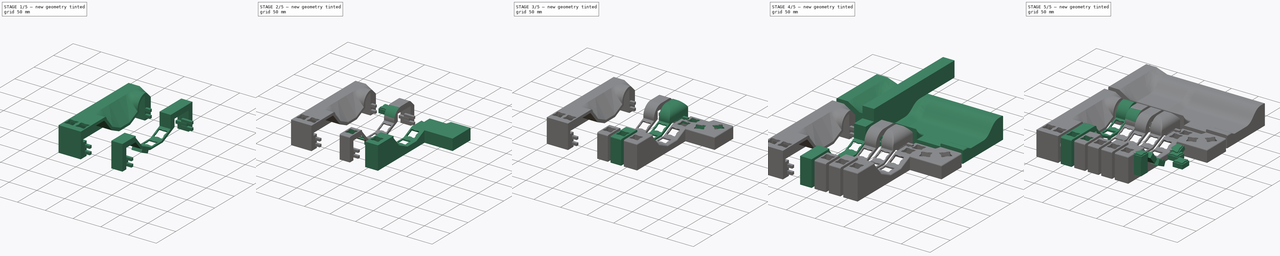
[diagram: build sequence overview — one tinted view per stage of 5, left to right]
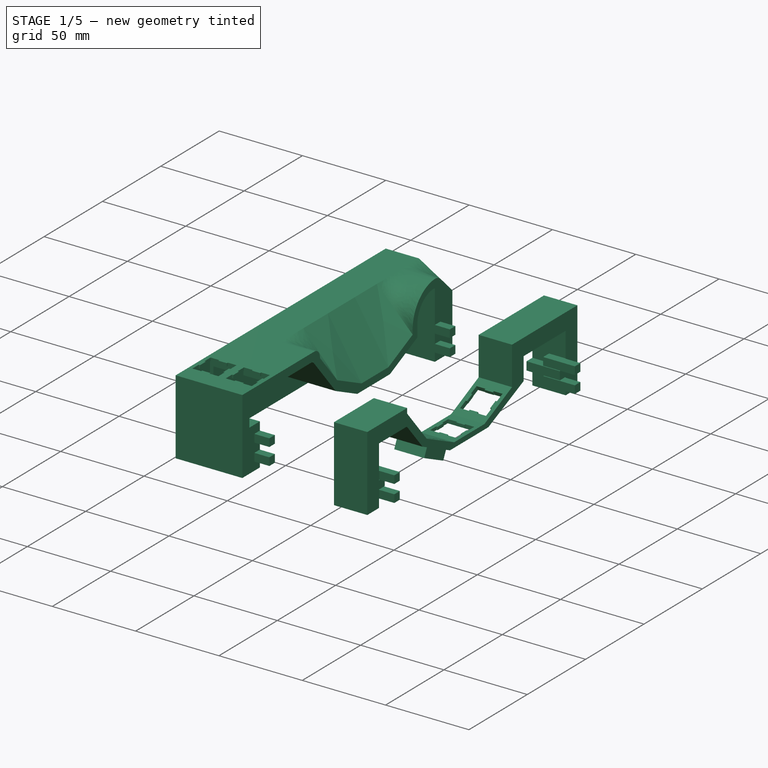
[diagram: stage 1 of 5 — iso view after this stage's code; geometry added in this stage tinted green]
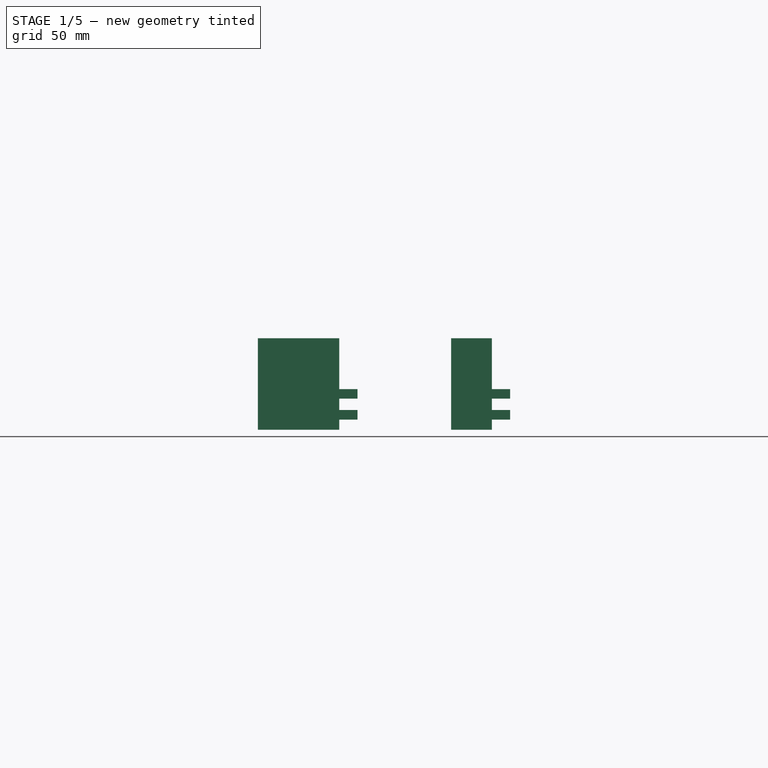
[diagram: stage 1 of 5 — front view after this stage's code; geometry added in this stage tinted green]
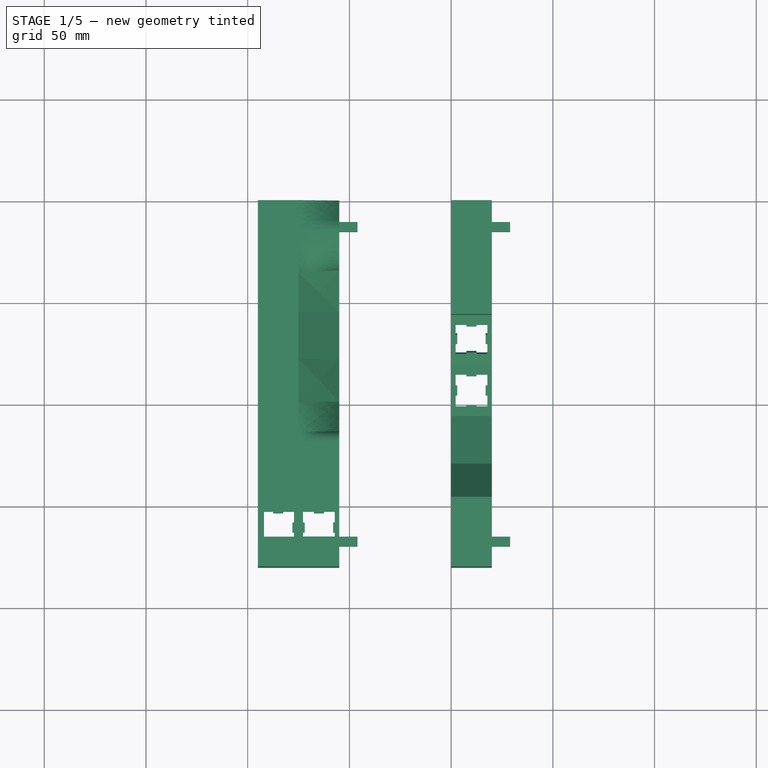
[diagram: stage 1 of 5 — top view after this stage's code; geometry added in this stage tinted green]
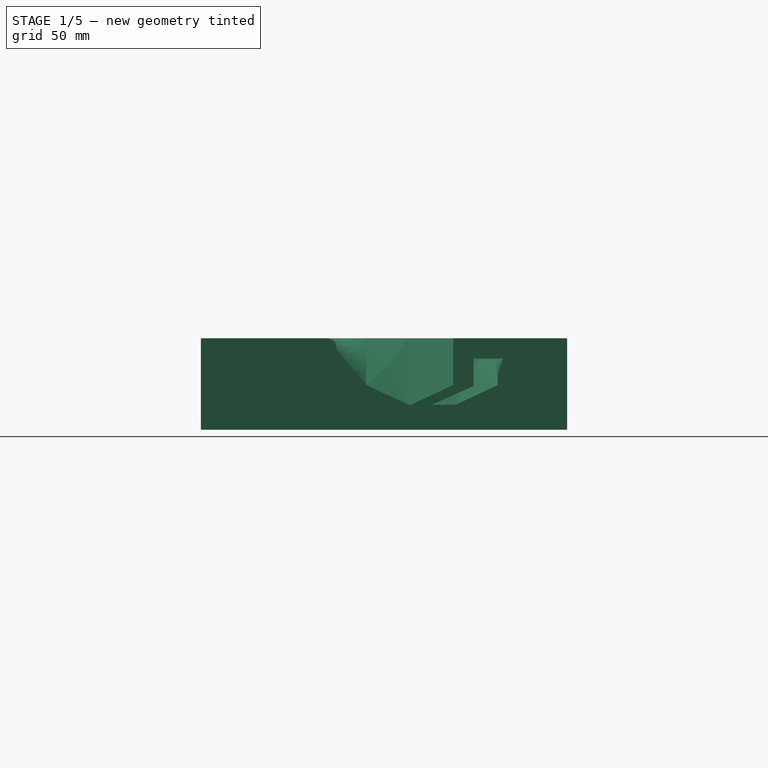
[diagram: stage 1 of 5 — right view after this stage's code; geometry added in this stage tinted green]
FCSTD DOCUMENT  (FreeCAD 0.17R13541 (Git))
Label: Keyboard
License: All rights reserved
LicenseURL: http://en.wikipedia.org/wiki/All_rights_reserved
objects: Part::Box×154, Part::Cut×114, Part::MultiFuse×106, Sketcher::SketchObject×23, Part::Fillet×22, Part::Extrusion×17, App::DocumentObjectGroup×9, Part::Loft×3, Part::Cylinder×2
note: 441 computed .brp shape members not serialized (recipe doc carries the construction recipe); baked Part::Feature solids carry a one-line shape summary decoded from their .brp

FEATURE [Part::Extrusion] Extrude003
  Base = -> Sketch009
  Dir = (1,0,0)
  DirMode = 2
  FaceMakerClass = Part::FaceMakerBullseye
  LengthFwd = 20
  LengthRev = 0
  Placement = pos=(50,0,0) rot=(0,0,1;0rad)
  Solid = true
  Symmetric = false
FEATURE [Part::Box] Box018  label="Cube002"
  AttacherType = Attacher::AttachEngine3D
  Height = 20
  Length = 22
  Placement = pos=(49,-81,-16) rot=(1,0,0;0.418879rad)
  Width = 50
FEATURE [Part::Box] Box022  label="Cube006"
  AttacherType = Attacher::AttachEngine3D
  Height = 20
  Length = 22
  Placement = pos=(49,-161.3,22) rot=(-1,0,0;0.872665rad)
  Width = 40
FEATURE [Part::Extrusion] Extrude
  Base = -> Sketch
  Dir = (0,0,1)
  DirMode = 2
  FaceMakerClass = Part::FaceMakerBullseye
  LengthFwd = 10
  LengthRev = 0
  Placement = pos=(1.21,1.21,0) rot=(0,0,1;0rad)
  Solid = true
  Symmetric = false
FEATURE [Part::Box] Box024  label="Cube008"
  AttacherType = Attacher::AttachEngine3D
  Height = 8
  Length = 18
  Width = 18
FEATURE [Part::MultiFuse] Fusion010
  Placement = pos=(51,-72,3.6) rot=(1,0,0;0.436332rad)
  Shapes = -> [Extrude,Box024]
FEATURE [Part::MultiFuse] Fusion014
  Placement = pos=(51,-102,1.2) rot=(1,0,0;0rad)
  Shapes = -> [Extrude,Box024]
FEATURE [Part::MultiFuse] Fusion018
  Placement = pos=(51,-129.8,11.4) rot=(-1,0,0;0.436332rad)
  Shapes = -> [Extrude,Box024]
FEATURE [Part::Box] Box040  label="Cube024"
  AttacherType = Attacher::AttachEngine3D
  Height = 5
  Length = 20
  Placement = pos=(50,-171,10) rot=(0,0,1;0rad)
  Width = 6
FEATURE [Part::Box] Box044  label="Cube028"
  AttacherType = Attacher::AttachEngine3D
  Height = 5
  Length = 20
  Placement = pos=(50,-15,10) rot=(0,0,1;0rad)
  Width = 6
FEATURE [Part::Box] Box054  label="Cube038"
  AttacherType = Attacher::AttachEngine3D
  Height = 4.7
  Length = 19
  Placement = pos=(10,-15,5) rot=(0,0,1;0rad)
  Width = 10
FEATURE [Part::Box] Box055  label="Cube039"
  AttacherType = Attacher::AttachEngine3D
  Height = 7
  Length = 10
  Placement = pos=(20,-10.3,4) rot=(0,0,1;0rad)
  Width = 6
FEATURE [Part::Cut] Cut104
  Base = -> Box054
  Placement = pos=(50,0,0) rot=(0,0,1;0rad)
  Tool = -> Box055
FEATURE [Part::Box] Box056  label="Cube040"
  AttacherType = Attacher::AttachEngine3D
  Height = 4.7
  Length = 19
  Placement = pos=(10,-15,5) rot=(0,0,1;0rad)
  Width = 10
FEATURE [Part::Box] Box057  label="Cube041"
  AttacherType = Attacher::AttachEngine3D
  Height = 7
  Length = 10
  Placement = pos=(20,-10.3,4) rot=(0,0,1;0rad)
  Width = 6
FEATURE [Part::Cut] Cut105
  Base = -> Box056
  Placement = pos=(50,0,10.3) rot=(0,0,1;0rad)
  Tool = -> Box057
FEATURE [Part::Box] Box070  label="Cube054"
  AttacherType = Attacher::AttachEngine3D
  Height = 4.7
  Length = 19
  Placement = pos=(10,-15,5) rot=(0,0,1;0rad)
  Width = 10
FEATURE [Part::Box] Box071  label="Cube055"
  AttacherType = Attacher::AttachEngine3D
  Height = 7
  Length = 10
  Placement = pos=(20,-15.7,4) rot=(0,0,1;0rad)
  Width = 6
FEATURE [Part::Cut] Cut144
  Base = -> Box070
  Placement = pos=(50,-160,0) rot=(0,0,1;0rad)
  Tool = -> Box071
FEATURE [Part::Box] Box072  label="Cube056"
  AttacherType = Attacher::AttachEngine3D
  Height = 4.7
  Length = 19
  Placement = pos=(10,-15,5) rot=(0,0,1;0rad)
  Width = 10
FEATURE [Part::Box] Box073  label="Cube057"
  AttacherType = Attacher::AttachEngine3D
  Height = 7
  Length = 10
  Placement = pos=(20,-15.7,4) rot=(0,0,1;0rad)
  Width = 6
FEATURE [Part::Cut] Cut145
  Base = -> Box072
  Placement = pos=(50,-160,10.3) rot=(0,0,1;0rad)
  Tool = -> Box073
FEATURE [Part::Box] Box078  label="Cube062"
  AttacherType = Attacher::AttachEngine3D
  Height = 4.7
  Length = 19
  Placement = pos=(10,-15,5) rot=(0,0,1;0rad)
  Width = 10
FEATURE [Part::Box] Box079  label="Cube063"
  AttacherType = Attacher::AttachEngine3D
  Height = 7
  Length = 10
  Placement = pos=(20,-15.7,4) rot=(0,0,1;0rad)
  Width = 6
FEATURE [Part::Cut] Cut148
  Base = -> Box078
  Placement = pos=(-25,-160,10.3) rot=(0,0,1;0rad)
  Tool = -> Box079
FEATURE [Part::Box] Box080  label="Cube064"
  AttacherType = Attacher::AttachEngine3D
  Height = 4.7
  Length = 19
  Placement = pos=(10,-15,5) rot=(0,0,1;0rad)
  Width = 10
FEATURE [Part::Box] Box081  label="Cube065"
  AttacherType = Attacher::AttachEngine3D
  Height = 7
  Length = 10
  Placement = pos=(20,-10.3,4) rot=(0,0,1;0rad)
  Width = 6
FEATURE [Part::Cut] Cut149
  Base = -> Box080
  Placement = pos=(-25,0,10.3) rot=(0,0,1;0rad)
  Tool = -> Box081
FEATURE [Part::Box] Box082  label="Cube066"
  AttacherType = Attacher::AttachEngine3D
  Height = 7
  Length = 10
  Placement = pos=(20,-15.7,4) rot=(0,0,1;0rad)
  Width = 6
FEATURE [Part::Box] Box083  label="Cube067"
  AttacherType = Attacher::AttachEngine3D
  Height = 4.7
  Length = 19
  Placement = pos=(10,-15,5) rot=(0,0,1;0rad)
  Width = 10
FEATURE [Part::Cut] Cut150
  Base = -> Box083
  Placement = pos=(-25,-160,0) rot=(0,0,1;0rad)
  Tool = -> Box082
FEATURE [Part::Box] Box084  label="Cube068"
  AttacherType = Attacher::AttachEngine3D
  Height = 4.7
  Length = 19
  Placement = pos=(10,-15,5) rot=(0,0,1;0rad)
  Width = 10
FEATURE [Part::Box] Box085  label="Cube069"
  AttacherType = Attacher::AttachEngine3D
  Height = 7
  Length = 10
  Placement = pos=(20,-10.3,4) rot=(0,0,1;0rad)
  Width = 6
FEATURE [Part::Cut] Cut151
  Base = -> Box084
  Placement = pos=(-25,0,0) rot=(0,0,1;0rad)
  Tool = -> Box085
FEATURE [Part::Box] Box112  label="Cube097"
  AttacherType = Attacher::AttachEngine3D
  Height = 20
  Length = 22
  Placement = pos=(49,-150,5) rot=(-1,0,0;0.436332rad)
  Width = 40
FEATURE [Part::Box] Box118  label="Cube103"
  AttacherType = Attacher::AttachEngine3D
  Height = 11
  Length = 4.6
  Placement = pos=(-17.3,-7.6,0) rot=(0,0,1;0rad)
  Width = 4.6
FEATURE [Part::Box] Box119  label="Cube104"
  AttacherType = Attacher::AttachEngine3D
  Height = 4
  Length = 4.6
  Placement = pos=(-17.3,-7.6,0) rot=(0,0,1;0rad)
  Width = 10
FEATURE [Part::MultiFuse] Fusion197
  Shapes = -> [Box118,Box119]
FEATURE [Part::Box] Box174  label="Cube159"
  AttacherType = Attacher::AttachEngine3D
  Height = 11
  Length = 4.6
  Placement = pos=(-17.3,-7.6,0) rot=(0,0,1;0rad)
  Width = 4.6
FEATURE [Part::Box] Box175  label="Cube160"
  AttacherType = Attacher::AttachEngine3D
  Height = 4
  Length = 4.6
  Placement = pos=(-17.3,-7.6,0) rot=(0,0,1;0rad)
  Width = 10
FEATURE [Part::MultiFuse] Fusion263
  Placement = pos=(-20,0,0) rot=(0,0,1;0rad)
  Shapes = -> [Box174,Box175]
FEATURE [Part::MultiFuse] Fusion264
  Placement = pos=(-44,-170,35.2) rot=(-1,0,0;0rad)
  Shapes = -> [Extrude,Box024]
FEATURE [Part::Box] Box176  label="Cube161"
  AttacherType = Attacher::AttachEngine3D
  Height = 20
  Length = 18
  Placement = pos=(-44,-170,20) rot=(0,0,1;0rad)
  Width = 18
FEATURE [Part::Box] Box177  label="Cube162"
  AttacherType = Attacher::AttachEngine3D
  Height = 40
  Length = 37
  Placement = pos=(-42,-165,0) rot=(0,0,1;0rad)
  Width = 46
FEATURE [Part::Box] Box178  label="Cube163"
  AttacherType = Attacher::AttachEngine3D
  Height = 15
  Length = 37
  Placement = pos=(-42,-174,25) rot=(0,0,1;0rad)
  Width = 10
FEATURE [Sketcher::SketchObject] Sketch030  label="Cutout Diamond"
  Placement = pos=(0,0,0) rot=(1,0,0;3.14159rad)
  sketch-geometry (4):
    g0: LineSegment StartX=0 StartY=40 StartZ=0 EndX=-20 EndY=0 EndZ=0
    g1: LineSegment StartX=-20 StartY=0 StartZ=0 EndX=0 EndY=-40 EndZ=0
    g2: LineSegment StartX=0 StartY=-40 StartZ=0 EndX=20 EndY=0 EndZ=0
    g3: LineSegment StartX=20 StartY=0 StartZ=0 EndX=0 EndY=40 EndZ=0
  constraints (12):
    c: Coincident(g0,g1)
    c: Coincident(g1,g2)
    c: Coincident(g2,g3)
    c: Coincident(g3,g0)
    c: DistanceX(g0,g2) = 40
    c: DistanceY(g1,g0) = 80
    c: PointOnObject(g0,g-2)
    c: PointOnObject(g0,g-1)
    c: PointOnObject(g2,g-1)
    c: PointOnObject(g1,g-2)
    c: Equal(g0,g2)
    c: Equal(g3,g1)
FEATURE [Part::Box] Box181  label="Cube166"
  AttacherType = Attacher::AttachEngine3D
  Height = 35
  Length = 37
  Placement = pos=(-42,-146,17) rot=(-1,0,0;0.872665rad)
  Width = 60
FEATURE [Part::Box] Box182  label="Cube167"
  AttacherType = Attacher::AttachEngine3D
  Height = 35
  Length = 37
  Placement = pos=(-42,-130,-8) rot=(-1,0,0;0.436332rad)
  Width = 60
FEATURE [Part::Box] Box183  label="Cube168"
  AttacherType = Attacher::AttachEngine3D
  Height = 35
  Length = 37
  Placement = pos=(-42,-102,-27) rot=(-1,0,0;0rad)
  Width = 60
FEATURE [Part::Box] Box184  label="Cube169"
  AttacherType = Attacher::AttachEngine3D
  Height = 35
  Length = 37
  Placement = pos=(-42,-65,-36) rot=(1,0,0;0.436332rad)
  Width = 60
FEATURE [Part::Box] Box185  label="Cube170"
  AttacherType = Attacher::AttachEngine3D
  Height = 40
  Length = 37
  Placement = pos=(-42,-30,0) rot=(-1,0,0;0rad)
  Width = 15
FEATURE [Part::MultiFuse] Fusion322
  Shapes = -> [Extrude003,Box044]
FEATURE [Part::MultiFuse] Fusion323
  Shapes = -> [Fusion322,Cut104]
FEATURE [Part::MultiFuse] Fusion324
  Shapes = -> [Fusion323,Cut105]
FEATURE [Part::MultiFuse] Fusion325
  Shapes = -> [Fusion324,Box040]
FEATURE [Part::MultiFuse] Fusion326
  Shapes = -> [Fusion325,Cut144]
FEATURE [Part::Loft] Loft
  Closed = false
  MaxDegree = 5
  Ruled = true
  Sections = -> [Sketch025,Sketch026,Sketch027]
  Solid = true
FEATURE [Part::MultiFuse] Fusion345
  Shapes = -> [Loft,Cut151]
FEATURE [Part::MultiFuse] Fusion346
  Shapes = -> [Fusion345,Cut150]
FEATURE [Part::MultiFuse] Fusion347
  Shapes = -> [Fusion346,Cut149]
FEATURE [Part::MultiFuse] Fusion348
  Shapes = -> [Fusion347,Cut148]
FEATURE [Part::Cut] Cut414
  Base = -> Fusion348
  Tool = -> Fusion263
FEATURE [Part::Cut] Cut415
  Base = -> Cut414
  Tool = -> Fusion197
FEATURE [Part::Fillet] Fillet077
  Base = -> Box185
  Edges = 1 edges r=14: [Edge10]
FEATURE [Part::Loft] Loft002
  Closed = false
  MaxDegree = 5
  Ruled = true
  Sections = -> [Sketch031,Sketch032,Sketch033]
  Solid = true
FEATURE [App::DocumentObjectGroup] Group006  label="05 Thumb Cluster"
  Group = -> [Fillet092]
FEATURE [Part::MultiFuse] Fusion327
  Shapes = -> [Fusion326,Cut145]
FEATURE [Part::Cut] Cut450
  Base = -> Fusion327
  Tool = -> Box018
FEATURE [Part::Cut] Cut451
  Base = -> Cut450
  Tool = -> Box112
FEATURE [Part::Cut] Cut452
  Base = -> Cut451
  Tool = -> Box022
FEATURE [Part::Cut] Cut453
  Base = -> Cut452
  Tool = -> Fusion010
FEATURE [Part::Cut] Cut454
  Base = -> Cut453
  Tool = -> Fusion014
FEATURE [App::DocumentObjectGroup] Group004  label="03 Middle Finger"
  Group = -> [Cut460]
FEATURE [Part::Cut] Cut461
  Base = -> Cut415
  Tool = -> Box178
FEATURE [Part::Cut] Cut462
  Base = -> Cut461
  Tool = -> Box177
FEATURE [Part::Cut] Cut463
  Base = -> Cut462
  Tool = -> Box181
FEATURE [Part::Cut] Cut464
  Base = -> Cut463
  Tool = -> Box182
FEATURE [Part::Cut] Cut465
  Base = -> Cut464
  Tool = -> Box183
FEATURE [Part::Cut] Cut466
  Base = -> Cut465
  Tool = -> Box184
FEATURE [Part::Cut] Cut467
  Base = -> Cut466
  Tool = -> Fillet077
FEATURE [Sketcher::SketchObject] Sketch036  label="Switch Cut Out007"
  sketch-geometry (20):
    g0: LineSegment StartX=-0.000129595 StartY=15.5792 StartZ=0 EndX=5.28987 EndY=15.5792 EndZ=0
    g1: LineSegment StartX=5.28987 StartY=15.5792 StartZ=0 EndX=5.28987 EndY=14.7692 EndZ=0
    g2: LineSegment StartX=5.28987 StartY=14.7692 StartZ=0 EndX=10.2899 EndY=14.7692 EndZ=0
    g3: LineSegment StartX=10.2899 StartY=14.7692 StartZ=0 EndX=10.2899 EndY=15.5792 EndZ=0
    g4: LineSegment StartX=10.2899 StartY=15.5792 StartZ=0 EndX=15.5799 EndY=15.5792 EndZ=0
    g5: LineSegment StartX=15.5799 StartY=15.5792 StartZ=0 EndX=15.5799 EndY=10.2892 EndZ=0
    g6: LineSegment StartX=15.5799 StartY=10.2892 StartZ=0 EndX=14.7699 EndY=10.2892 EndZ=0
    g7: LineSegment StartX=14.7699 StartY=10.2892 StartZ=0 EndX=14.7699 EndY=5.28921 EndZ=0
    g8: LineSegment StartX=14.7699 StartY=5.28921 StartZ=0 EndX=15.5799 EndY=5.28921 EndZ=0
    g9: LineSegment StartX=15.5799 StartY=5.28921 StartZ=0 EndX=15.5799 EndY=-0.000794506 EndZ=0
    g10: LineSegment StartX=15.5799 StartY=-0.000794506 StartZ=0 EndX=10.2899 EndY=-0.000794506 EndZ=0
    g11: LineSegment StartX=10.2899 StartY=-0.000794506 StartZ=0 EndX=10.2899 EndY=0.809205 EndZ=0
    g12: LineSegment StartX=10.2899 StartY=0.809205 StartZ=0 EndX=5.28987 EndY=0.809205 EndZ=0
    g13: LineSegment StartX=5.28987 StartY=0.809205 StartZ=0 EndX=5.28987 EndY=-0.000794506 EndZ=0
    g14: LineSegment StartX=5.28987 StartY=-0.000794506 StartZ=0 EndX=-0.000129595 EndY=-0.000794506 EndZ=0
    g15: LineSegment StartX=-0.000129595 StartY=-0.000794506 StartZ=0 EndX=-0.000129595 EndY=5.28921 EndZ=0
    g16: LineSegment StartX=-0.000129595 StartY=5.28921 StartZ=0 EndX=0.80987 EndY=5.28921 EndZ=0
    g17: LineSegment StartX=0.80987 StartY=5.28921 StartZ=0 EndX=0.80987 EndY=10.2892 EndZ=0
    g18: LineSegment StartX=0.80987 StartY=10.2892 StartZ=0 EndX=-0.000129595 EndY=10.2892 EndZ=0
    g19: LineSegment StartX=-0.000129595 StartY=10.2892 StartZ=0 EndX=-0.000129595 EndY=15.5792 EndZ=0
  constraints (58):
    c: Coincident(g0,g1)
    c: Coincident(g1,g2)
    c: Coincident(g2,g3)
    c: Coincident(g3,g4)
    c: Coincident(g4,g5)
    c: Coincident(g5,g6)
    c: Coincident(g6,g7)
    c: Coincident(g7,g8)
    c: Coincident(g8,g9)
    c: Coincident(g9,g10)
    c: Coincident(g10,g11)
    c: Coincident(g11,g12)
    c: Coincident(g12,g13)
    c: Coincident(g13,g14)
    c: Coincident(g14,g15)
    c: Coincident(g15,g16)
    c: Coincident(g16,g17)
    c: Coincident(g17,g18)
    c: Coincident(g18,g19)
    c: Coincident(g19,g0)
    c: Horizontal(g0)
    c: DistanceX(g0,g0) = 5.29
    c: Vertical(g1)
    c: DistanceY(g1,g1) = 0.81
    c: Horizontal(g2)
    c: DistanceX(g2,g2) = 5
    c: Vertical(g3)
    c: DistanceY(g3,g3) = 0.81
    c: Horizontal(g4)
    c: DistanceX(g4,g4) = 5.29
    c: Vertical(g5)
    c: DistanceY(g5,g5) = 5.29
    c: Horizontal(g6)
    c: DistanceX(g6,g6) = -0.81
    c: Vertical(g7)
    c: DistanceY(g7,g7) = 5
    c: Horizontal(g8)
    c: DistanceX(g8,g8) = 0.81
    c: Vertical(g9)
    c: DistanceY(g9,g9) = 5.29
    c: Horizontal(g10)
    c: DistanceX(g10,g10) = -5.29
    c: Vertical(g11)
    c: DistanceY(g11,g11) = -0.81
    c: Horizontal(g12)
    c: DistanceX(g12,g12) = 5
    c: Vertical(g13)
    c: DistanceY(g13,g13) = 0.81
    c: Horizontal(g14)
    c: DistanceX(g14,g14) = 5.29
    c: Vertical(g15)
    c: DistanceY(g15,g15) = 5.29
    c: Horizontal(g16)
    c: DistanceX(g16,g16) = -0.81
    c: Vertical(g17)
    c: DistanceY(g17,g17) = 5
    c: Horizontal(g18)
    c: DistanceX(g18,g18) = 0.81
FEATURE [Part::Extrusion] Extrude016
  Base = -> Sketch036
  Dir = (0,0,1)
  DirMode = 2
  FaceMakerClass = Part::FaceMakerBullseye
  LengthFwd = 10
  LengthRev = 0
  Placement = pos=(1.21,1.21,0) rot=(0,0,1;0rad)
  Solid = true
  Symmetric = false
FEATURE [Part::Box] Box192  label="Cube177"
  AttacherType = Attacher::AttachEngine3D
  Height = 8
  Length = 18
  Width = 18
FEATURE [Part::MultiFuse] Fusion355
  Placement = pos=(-24,-170,35.2) rot=(-1,0,0;0rad)
  Shapes = -> [Extrude016,Box192]
FEATURE [Part::Cut] Cut468
  Base = -> Cut467
  Tool = -> Fusion264
FEATURE [Part::Cut] Cut469
  Base = -> Cut468
  Tool = -> Box176
FEATURE [Part::Cut] Cut470
  Base = -> Cut469
  Tool = -> Fusion355
FEATURE [Part::Cut] Cut471
  Base = -> Cut470
  Tool = -> Loft002
FEATURE [App::DocumentObjectGroup] Group001  label="00 Side"
  Group = -> [Cut471]
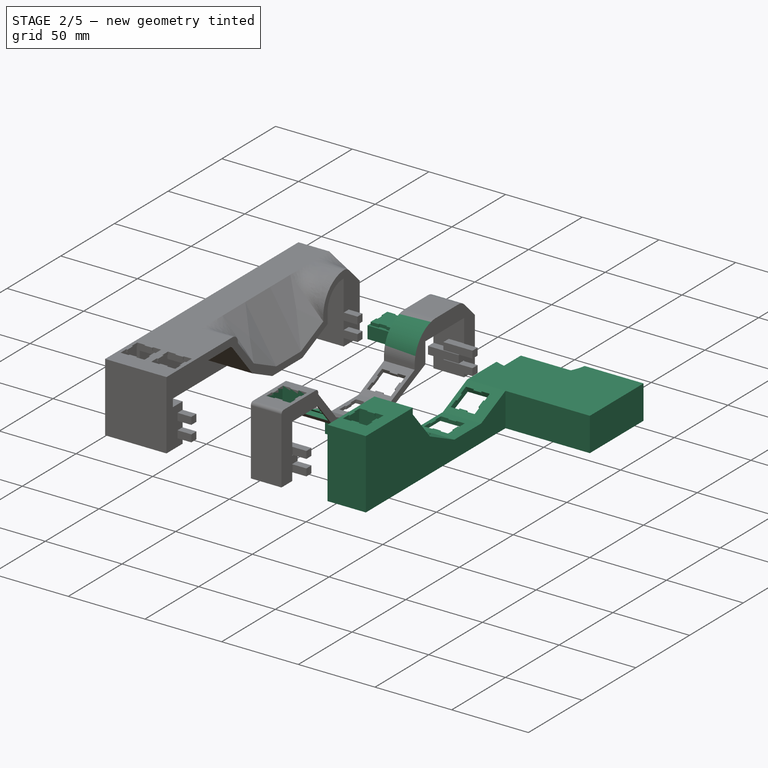
[diagram: stage 2 of 5 — iso view after this stage's code; geometry added in this stage tinted green]
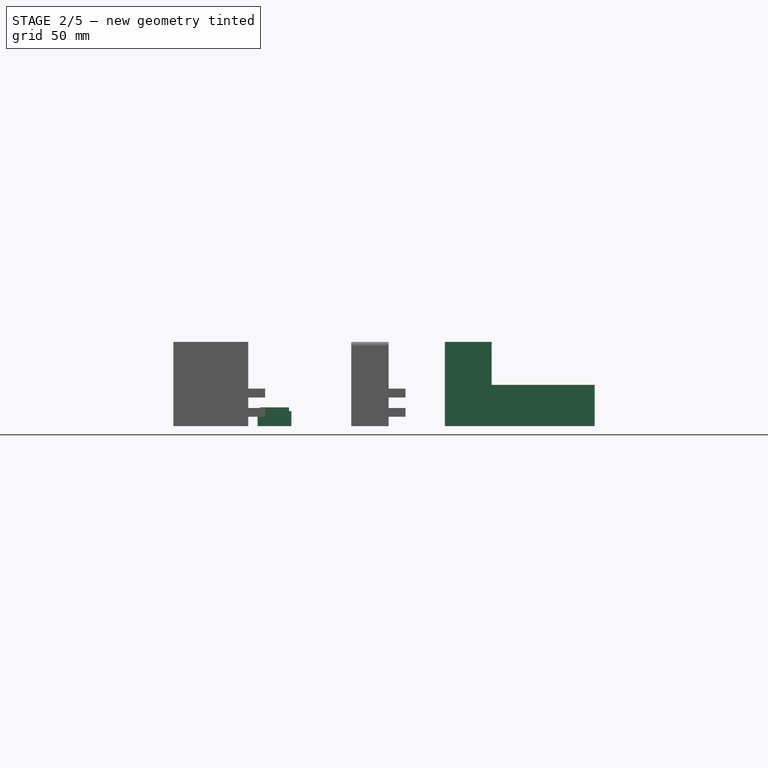
[diagram: stage 2 of 5 — front view after this stage's code; geometry added in this stage tinted green]
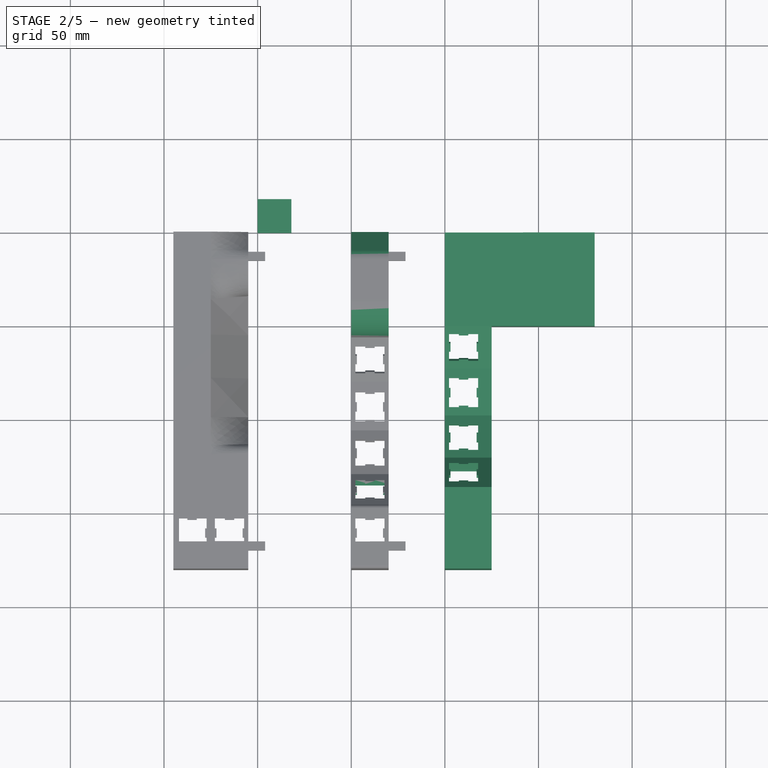
[diagram: stage 2 of 5 — top view after this stage's code; geometry added in this stage tinted green]
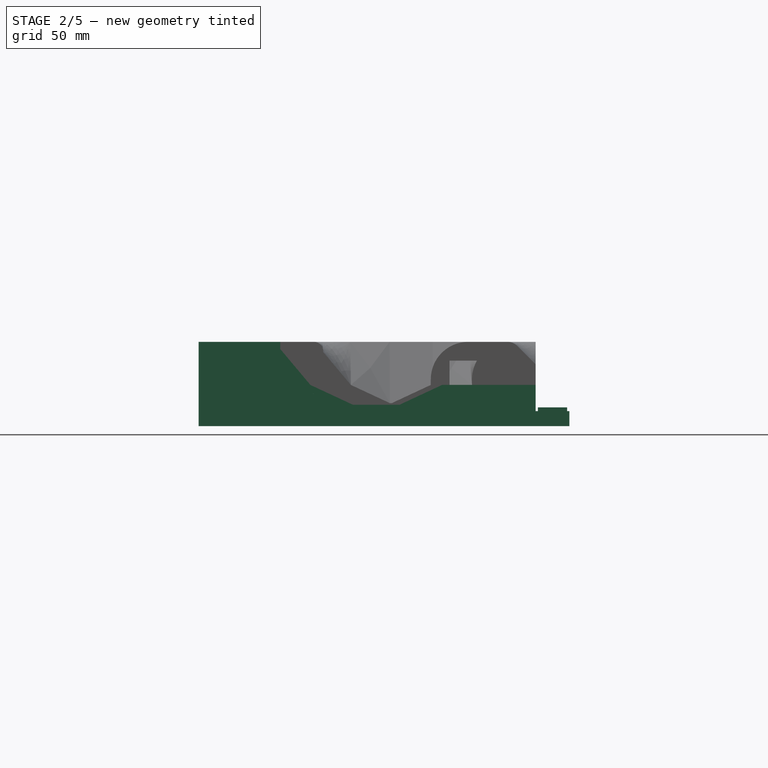
[diagram: stage 2 of 5 — right view after this stage's code; geometry added in this stage tinted green]
FEATURE [Part::MultiFuse] Fusion022
  Placement = pos=(51,-150.8,32.4) rot=(-1,0,0;0.872665rad)
  Shapes = -> [Extrude,Box024]
FEATURE [Part::Box] Box027  label="Cube011"
  AttacherType = Attacher::AttachEngine3D
  Height = 20
  Length = 18
  Placement = pos=(51,-170,20) rot=(0,0,1;0rad)
  Width = 18
FEATURE [Part::Box] Box036  label="Cube020"
  AttacherType = Attacher::AttachEngine3D
  Height = 10
  Length = 2
  Placement = pos=(50,-111,0) rot=(0,0,1;0rad)
  Width = 8
FEATURE [Sketcher::SketchObject] Sketch016  label="Finger Frame Thumb"
  Placement = pos=(0,0,0) rot=(0.57735,0.57735,0.57735;2.0944rad)
  sketch-geometry (18):
    g0: LineSegment StartX=-180 StartY=45 StartZ=0 EndX=-136.385 EndY=45 EndZ=0
    g1: LineSegment StartX=-136.385 StartY=41.1511 StartZ=0 EndX=-120.315 EndY=22 EndZ=0
    g2: LineSegment StartX=-120.315 StartY=22 StartZ=0 EndX=-97.6577 EndY=11.4345 EndZ=0
    g3: LineSegment StartX=-97.6577 StartY=11.4345 StartZ=0 EndX=-72.6577 EndY=11.4345 EndZ=0
    g4: LineSegment StartX=-72.6577 StartY=11.4345 StartZ=0 EndX=-50 EndY=22 EndZ=0
    g5: LineSegment StartX=-50 StartY=22 StartZ=0 EndX=0 EndY=22 EndZ=0
    g6: LineSegment StartX=0 StartY=22 StartZ=0 EndX=0 EndY=0 EndZ=0
    g7: LineSegment StartX=-180 StartY=45 StartZ=0 EndX=-180 EndY=0 EndZ=0
    g8: LineSegment StartX=-180 StartY=0 StartZ=0 EndX=-170 EndY=0 EndZ=0
    g9: LineSegment StartX=-170 StartY=0 StartZ=0 EndX=-170 EndY=35 EndZ=0
    g10: LineSegment StartX=-170 StartY=35 StartZ=0 EndX=-140 EndY=35 EndZ=0
    g11: LineSegment StartX=-140 StartY=35 StartZ=0 EndX=-140 EndY=8 EndZ=0
    g12: LineSegment StartX=-140 StartY=8 StartZ=0 EndX=-50 EndY=8 EndZ=0
    g13: LineSegment StartX=-10 StartY=16 StartZ=0 EndX=-10 EndY=0 EndZ=0
    g14: LineSegment StartX=-10 StartY=0 StartZ=0 EndX=0 EndY=0 EndZ=0
    g15: LineSegment StartX=-10 StartY=16 StartZ=0 EndX=-50 EndY=16 EndZ=0
    g16: LineSegment StartX=-50 StartY=16 StartZ=0 EndX=-50 EndY=8 EndZ=0
    g17: LineSegment StartX=-136.385 StartY=45 StartZ=0 EndX=-136.385 EndY=41.1511 EndZ=0
  constraints (53):
    c: Coincident(g1,g2)
    c: Coincident(g2,g3)
    c: Coincident(g3,g4)
    c: Horizontal(g0)
    c: Horizontal(g5)
    c: Distance(g2) = 25
    c: Distance(g3) = 25
    c: Distance(g4) = 25
    c: Coincident(g5,g6)
    c: Vertical(g6)
    c: Coincident(g7,g0)
    c: Vertical(g7)
    c: Distance(g5) = 50
    c: Distance(g7) = 45
    c: Angle(g4,g3) = 2.70526
    c: Angle(g3,g2) = 2.70526
    c: Angle(g2,g1) = 2.70526
    c: Coincident(g8,g7)
    c: Coincident(g8,g9)
    c: Coincident(g9,g10)
    c: Coincident(g10,g11)
    c: Coincident(g11,g12)
    c: Coincident(g13,g14)
    c: Coincident(g-1,g14)
    c: Horizontal(g8)
    c: Distance(g8) = 10
    c: Vertical(g9)
    c: Distance(g9) = 35
    c: Horizontal(g10)
    c: Distance(g10) = 30
    c: Vertical(g11)
    c: Distance(g11) = 27
    c: Horizontal(g12)
    c: Horizontal(g14)
    c: Distance(g14) = 10
    c: Vertical(g13)
    c: Distance(g13) = 16
    c: Coincident(g6,g-1)
    c: Distance(g12) = 90
    c: Coincident(g5,g4)
    c: Distance(g6) = 22
    c: Coincident(g16,g12)
    c: Coincident(g16,g15)
    c: Coincident(g15,g13)
    c: Horizontal(g15)
    c: Distance(g15) = 40
    c: Vertical(g16)
    c: Distance(g16) = 8
    c: Angle(g4,g5) = 2.70526
    c: Coincident(g17,g1)
    c: Coincident(g0,g17)
    c: Distance(g1) = 25
    c: Vertical(g17)
FEATURE [Part::Extrusion] Extrude005
  Base = -> Sketch016
  Dir = (1,0,0)
  DirMode = 2
  FaceMakerClass = Part::FaceMakerBullseye
  LengthFwd = 80
  LengthRev = 0
  Placement = pos=(100,0,0) rot=(0,0,1;0rad)
  Solid = true
  Symmetric = false
FEATURE [Part::Box] Box  label="Cube070"
  AttacherType = Attacher::AttachEngine3D
  Height = 46
  Length = 56
  Placement = pos=(125,-180,0) rot=(0,0,1;0rad)
  Width = 130
FEATURE [Part::Box] Box086  label="Cube071"
  AttacherType = Attacher::AttachEngine3D
  Height = 36
  Length = 5
  Placement = pos=(120,-171,0) rot=(0,0,1;0rad)
  Width = 32
FEATURE [Part::Box] Box088  label="Cube073"
  AttacherType = Attacher::AttachEngine3D
  Height = 17
  Length = 60
  Placement = pos=(120,-50,0) rot=(0,0,1;0rad)
  Width = 10
FEATURE [Part::Box] Box089  label="Cube074"
  AttacherType = Attacher::AttachEngine3D
  Height = 17
  Length = 10
  Placement = pos=(170,-41,0) rot=(0,0,1;0rad)
  Width = 32
FEATURE [Part::Box] Box091  label="Cube076"
  AttacherType = Attacher::AttachEngine3D
  Height = 8
  Length = 18
  Width = 18
FEATURE [Part::Box] Box092  label="Cube077"
  AttacherType = Attacher::AttachEngine3D
  Height = 20
  Length = 40
  Placement = pos=(80,-87.5,-22.8) rot=(1,0,0;0.418879rad)
  Width = 50
FEATURE [Part::Box] Box093  label="Cube078"
  AttacherType = Attacher::AttachEngine3D
  Height = 20
  Length = 40
  Placement = pos=(80,-155.3,22.1) rot=(-1,0,0;0.872665rad)
  Width = 40
FEATURE [Sketcher::SketchObject] Sketch017  label="Switch Cut Out001"
  sketch-geometry (20):
    g0: LineSegment StartX=-0.000129595 StartY=15.5792 StartZ=0 EndX=5.28987 EndY=15.5792 EndZ=0
    g1: LineSegment StartX=5.28987 StartY=15.5792 StartZ=0 EndX=5.28987 EndY=14.7692 EndZ=0
    g2: LineSegment StartX=5.28987 StartY=14.7692 StartZ=0 EndX=10.2899 EndY=14.7692 EndZ=0
    g3: LineSegment StartX=10.2899 StartY=14.7692 StartZ=0 EndX=10.2899 EndY=15.5792 EndZ=0
    g4: LineSegment StartX=10.2899 StartY=15.5792 StartZ=0 EndX=15.5799 EndY=15.5792 EndZ=0
    g5: LineSegment StartX=15.5799 StartY=15.5792 StartZ=0 EndX=15.5799 EndY=10.2892 EndZ=0
    g6: LineSegment StartX=15.5799 StartY=10.2892 StartZ=0 EndX=14.7699 EndY=10.2892 EndZ=0
    g7: LineSegment StartX=14.7699 StartY=10.2892 StartZ=0 EndX=14.7699 EndY=5.28921 EndZ=0
    g8: LineSegment StartX=14.7699 StartY=5.28921 StartZ=0 EndX=15.5799 EndY=5.28921 EndZ=0
    g9: LineSegment StartX=15.5799 StartY=5.28921 StartZ=0 EndX=15.5799 EndY=-0.000794506 EndZ=0
    g10: LineSegment StartX=15.5799 StartY=-0.000794506 StartZ=0 EndX=10.2899 EndY=-0.000794506 EndZ=0
    g11: LineSegment StartX=10.2899 StartY=-0.000794506 StartZ=0 EndX=10.2899 EndY=0.809205 EndZ=0
    g12: LineSegment StartX=10.2899 StartY=0.809205 StartZ=0 EndX=5.28987 EndY=0.809205 EndZ=0
    g13: LineSegment StartX=5.28987 StartY=0.809205 StartZ=0 EndX=5.28987 EndY=-0.000794506 EndZ=0
    g14: LineSegment StartX=5.28987 StartY=-0.000794506 StartZ=0 EndX=-0.000129595 EndY=-0.000794506 EndZ=0
    g15: LineSegment StartX=-0.000129595 StartY=-0.000794506 StartZ=0 EndX=-0.000129595 EndY=5.28921 EndZ=0
    g16: LineSegment StartX=-0.000129595 StartY=5.28921 StartZ=0 EndX=0.80987 EndY=5.28921 EndZ=0
    g17: LineSegment StartX=0.80987 StartY=5.28921 StartZ=0 EndX=0.80987 EndY=10.2892 EndZ=0
    g18: LineSegment StartX=0.80987 StartY=10.2892 StartZ=0 EndX=-0.000129595 EndY=10.2892 EndZ=0
    g19: LineSegment StartX=-0.000129595 StartY=10.2892 StartZ=0 EndX=-0.000129595 EndY=15.5792 EndZ=0
  constraints (58):
    c: Coincident(g0,g1)
    c: Coincident(g1,g2)
    c: Coincident(g2,g3)
    c: Coincident(g3,g4)
    c: Coincident(g4,g5)
    c: Coincident(g5,g6)
    c: Coincident(g6,g7)
    c: Coincident(g7,g8)
    c: Coincident(g8,g9)
    c: Coincident(g9,g10)
    c: Coincident(g10,g11)
    c: Coincident(g11,g12)
    c: Coincident(g12,g13)
    c: Coincident(g13,g14)
    c: Coincident(g14,g15)
    c: Coincident(g15,g16)
    c: Coincident(g16,g17)
    c: Coincident(g17,g18)
    c: Coincident(g18,g19)
    c: Coincident(g19,g0)
    c: Horizontal(g0)
    c: DistanceX(g0,g0) = 5.29
    c: Vertical(g1)
    c: DistanceY(g1,g1) = 0.81
    c: Horizontal(g2)
    c: DistanceX(g2,g2) = 5
    c: Vertical(g3)
    c: DistanceY(g3,g3) = 0.81
    c: Horizontal(g4)
    c: DistanceX(g4,g4) = 5.29
    c: Vertical(g5)
    c: DistanceY(g5,g5) = 5.29
    c: Horizontal(g6)
    c: DistanceX(g6,g6) = -0.81
    c: Vertical(g7)
    c: DistanceY(g7,g7) = 5
    c: Horizontal(g8)
    c: DistanceX(g8,g8) = 0.81
    c: Vertical(g9)
    c: DistanceY(g9,g9) = 5.29
    c: Horizontal(g10)
    c: DistanceX(g10,g10) = -5.29
    c: Vertical(g11)
    c: DistanceY(g11,g11) = -0.81
    c: Horizontal(g12)
    c: DistanceX(g12,g12) = 5
    c: Vertical(g13)
    c: DistanceY(g13,g13) = 0.81
    c: Horizontal(g14)
    c: DistanceX(g14,g14) = 5.29
    c: Vertical(g15)
    c: DistanceY(g15,g15) = 5.29
    c: Horizontal(g16)
    c: DistanceX(g16,g16) = -0.81
    c: Vertical(g17)
    c: DistanceY(g17,g17) = 5
    c: Horizontal(g18)
    c: DistanceX(g18,g18) = 0.81
FEATURE [Part::Extrusion] Extrude006
  Base = -> Sketch017
  Dir = (0,0,1)
  DirMode = 2
  FaceMakerClass = Part::FaceMakerBullseye
  LengthFwd = 10
  LengthRev = 0
  Placement = pos=(1.21,1.21,0) rot=(0,0,1;0rad)
  Solid = true
  Symmetric = false
FEATURE [Part::MultiFuse] Fusion101
  Placement = pos=(101,-65.4,4) rot=(1,0,0;0.436332rad)
  Shapes = -> [Extrude006,Box091]
FEATURE [Part::MultiFuse] Fusion102
  Placement = pos=(101,-94.4,1.6) rot=(1,0,0;0rad)
  Shapes = -> [Extrude006,Box091]
FEATURE [Part::MultiFuse] Fusion103
  Placement = pos=(101,-121.4,11.6) rot=(-1,0,0;0.436332rad)
  Shapes = -> [Extrude006,Box091]
FEATURE [Part::MultiFuse] Fusion104
  Placement = pos=(101,-170,35.2) rot=(-1,0,0;0rad)
  Shapes = -> [Extrude006,Box091]
FEATURE [Part::MultiFuse] Fusion105
  Placement = pos=(101,-141.6,32) rot=(-1,0,0;0.872665rad)
  Shapes = -> [Extrude006,Box091]
FEATURE [Part::Box] Box094  label="Cube079"
  AttacherType = Attacher::AttachEngine3D
  Height = 30
  Length = 17
  Placement = pos=(101,-170,10) rot=(0,0,1;0rad)
  Width = 18
FEATURE [Part::Box] Box099  label="Cube084"
  AttacherType = Attacher::AttachEngine3D
  Height = 5
  Length = 20
  Placement = pos=(100,-15,10) rot=(0,0,1;0rad)
  Width = 10
FEATURE [Part::Box] Box100  label="Cube085"
  AttacherType = Attacher::AttachEngine3D
  Height = 5
  Length = 20
  Placement = pos=(100,-175,10) rot=(0,0,1;0rad)
  Width = 10
FEATURE [Part::Box] Box101  label="Cube086"
  AttacherType = Attacher::AttachEngine3D
  Height = 5.6
  Length = 10
  Placement = pos=(100,-15.3,15) rot=(0,0,1;0rad)
  Width = 5.3
FEATURE [Part::Box] Box105  label="Cube090"
  AttacherType = Attacher::AttachEngine3D
  Height = 8
  Length = 18
  Width = 18
FEATURE [Sketcher::SketchObject] Sketch020  label="Switch Cut Out004"
  sketch-geometry (20):
    g0: LineSegment StartX=-0.000129595 StartY=15.5792 StartZ=0 EndX=5.28987 EndY=15.5792 EndZ=0
    g1: LineSegment StartX=5.28987 StartY=15.5792 StartZ=0 EndX=5.28987 EndY=14.7692 EndZ=0
    g2: LineSegment StartX=5.28987 StartY=14.7692 StartZ=0 EndX=10.2899 EndY=14.7692 EndZ=0
    g3: LineSegment StartX=10.2899 StartY=14.7692 StartZ=0 EndX=10.2899 EndY=15.5792 EndZ=0
    g4: LineSegment StartX=10.2899 StartY=15.5792 StartZ=0 EndX=15.5799 EndY=15.5792 EndZ=0
    g5: LineSegment StartX=15.5799 StartY=15.5792 StartZ=0 EndX=15.5799 EndY=10.2892 EndZ=0
    g6: LineSegment StartX=15.5799 StartY=10.2892 StartZ=0 EndX=14.7699 EndY=10.2892 EndZ=0
    g7: LineSegment StartX=14.7699 StartY=10.2892 StartZ=0 EndX=14.7699 EndY=5.28921 EndZ=0
    g8: LineSegment StartX=14.7699 StartY=5.28921 StartZ=0 EndX=15.5799 EndY=5.28921 EndZ=0
    g9: LineSegment StartX=15.5799 StartY=5.28921 StartZ=0 EndX=15.5799 EndY=-0.000794506 EndZ=0
    g10: LineSegment StartX=15.5799 StartY=-0.000794506 StartZ=0 EndX=10.2899 EndY=-0.000794506 EndZ=0
    g11: LineSegment StartX=10.2899 StartY=-0.000794506 StartZ=0 EndX=10.2899 EndY=0.809205 EndZ=0
    g12: LineSegment StartX=10.2899 StartY=0.809205 StartZ=0 EndX=5.28987 EndY=0.809205 EndZ=0
    g13: LineSegment StartX=5.28987 StartY=0.809205 StartZ=0 EndX=5.28987 EndY=-0.000794506 EndZ=0
    g14: LineSegment StartX=5.28987 StartY=-0.000794506 StartZ=0 EndX=-0.000129595 EndY=-0.000794506 EndZ=0
    g15: LineSegment StartX=-0.000129595 StartY=-0.000794506 StartZ=0 EndX=-0.000129595 EndY=5.28921 EndZ=0
    g16: LineSegment StartX=-0.000129595 StartY=5.28921 StartZ=0 EndX=0.80987 EndY=5.28921 EndZ=0
    g17: LineSegment StartX=0.80987 StartY=5.28921 StartZ=0 EndX=0.80987 EndY=10.2892 EndZ=0
    g18: LineSegment StartX=0.80987 StartY=10.2892 StartZ=0 EndX=-0.000129595 EndY=10.2892 EndZ=0
    g19: LineSegment StartX=-0.000129595 StartY=10.2892 StartZ=0 EndX=-0.000129595 EndY=15.5792 EndZ=0
  constraints (58):
    c: Coincident(g0,g1)
    c: Coincident(g1,g2)
    c: Coincident(g2,g3)
    c: Coincident(g3,g4)
    c: Coincident(g4,g5)
    c: Coincident(g5,g6)
    c: Coincident(g6,g7)
    c: Coincident(g7,g8)
    c: Coincident(g8,g9)
    c: Coincident(g9,g10)
    c: Coincident(g10,g11)
    c: Coincident(g11,g12)
    c: Coincident(g12,g13)
    c: Coincident(g13,g14)
    c: Coincident(g14,g15)
    c: Coincident(g15,g16)
    c: Coincident(g16,g17)
    c: Coincident(g17,g18)
    c: Coincident(g18,g19)
    c: Coincident(g19,g0)
    c: Horizontal(g0)
    c: DistanceX(g0,g0) = 5.29
    c: Vertical(g1)
    c: DistanceY(g1,g1) = 0.81
    c: Horizontal(g2)
    c: DistanceX(g2,g2) = 5
    c: Vertical(g3)
    c: DistanceY(g3,g3) = 0.81
    c: Horizontal(g4)
    c: DistanceX(g4,g4) = 5.29
    c: Vertical(g5)
    c: DistanceY(g5,g5) = 5.29
    c: Horizontal(g6)
    c: DistanceX(g6,g6) = -0.81
    c: Vertical(g7)
    c: DistanceY(g7,g7) = 5
    c: Horizontal(g8)
    c: DistanceX(g8,g8) = 0.81
    c: Vertical(g9)
    c: DistanceY(g9,g9) = 5.29
    c: Horizontal(g10)
    c: DistanceX(g10,g10) = -5.29
    c: Vertical(g11)
    c: DistanceY(g11,g11) = -0.81
    c: Horizontal(g12)
    c: DistanceX(g12,g12) = 5
    c: Vertical(g13)
    c: DistanceY(g13,g13) = 0.81
    c: Horizontal(g14)
    c: DistanceX(g14,g14) = 5.29
    c: Vertical(g15)
    c: DistanceY(g15,g15) = 5.29
    c: Horizontal(g16)
    c: DistanceX(g16,g16) = -0.81
    c: Vertical(g17)
    c: DistanceY(g17,g17) = 5
    c: Horizontal(g18)
    c: DistanceX(g18,g18) = 0.81
FEATURE [Part::Extrusion] Extrude009
  Base = -> Sketch020
  Dir = (0,0,1)
  DirMode = 2
  FaceMakerClass = Part::FaceMakerBullseye
  LengthFwd = 10
  LengthRev = 0
  Placement = pos=(1.21,1.21,0) rot=(0,0,1;0rad)
  Solid = true
  Symmetric = false
FEATURE [Sketcher::SketchObject] Sketch024  label="Joiner"
  Placement = pos=(0,0,0) rot=(1,0,0;1.5708rad)
  sketch-geometry (32):
    g0: LineSegment StartX=-144 StartY=8 StartZ=0 EndX=-144 EndY=0 EndZ=0
    g1: LineSegment StartX=-4 StartY=8 StartZ=0 EndX=-4 EndY=4 EndZ=0
    g2: LineSegment StartX=-4 StartY=4 StartZ=0 EndX=-20 EndY=4 EndZ=0
    g3: LineSegment StartX=-20 StartY=4 StartZ=0 EndX=-20 EndY=8 EndZ=0
    g4: LineSegment StartX=-20 StartY=8 StartZ=0 EndX=-24 EndY=8 EndZ=0
    g5: LineSegment StartX=-24 StartY=8 StartZ=0 EndX=-24 EndY=4 EndZ=0
    g6: LineSegment StartX=-24 StartY=4 StartZ=0 EndX=-40 EndY=4 EndZ=0
    g7: LineSegment StartX=-40 StartY=4 StartZ=0 EndX=-40 EndY=8 EndZ=0
    g8: LineSegment StartX=-40 StartY=8 StartZ=0 EndX=-44 EndY=8 EndZ=0
    g9: LineSegment StartX=-44 StartY=8 StartZ=0 EndX=-44 EndY=4 EndZ=0
    g10: LineSegment StartX=-44 StartY=4 StartZ=0 EndX=-60 EndY=4 EndZ=0
    g11: LineSegment StartX=-60 StartY=4 StartZ=0 EndX=-60 EndY=8 EndZ=0
    g12: LineSegment StartX=-60 StartY=8 StartZ=0 EndX=-64 EndY=8 EndZ=0
    g13: LineSegment StartX=-64 StartY=8 StartZ=0 EndX=-64 EndY=4 EndZ=0
    g14: LineSegment StartX=-64 StartY=4 StartZ=0 EndX=-80 EndY=4 EndZ=0
    g15: LineSegment StartX=-80 StartY=4 StartZ=0 EndX=-80 EndY=8 EndZ=0
    g16: LineSegment StartX=-80 StartY=8 StartZ=0 EndX=-84 EndY=8 EndZ=0
    g17: LineSegment StartX=-84 StartY=8 StartZ=0 EndX=-84 EndY=4 EndZ=0
    g18: LineSegment StartX=-84 StartY=4 StartZ=0 EndX=-100 EndY=4 EndZ=0
    g19: LineSegment StartX=-100 StartY=4 StartZ=0 EndX=-100 EndY=8 EndZ=0
    g20: LineSegment StartX=-100 StartY=8 StartZ=0 EndX=-104 EndY=8 EndZ=0
    g21: LineSegment StartX=-104 StartY=8 StartZ=0 EndX=-104 EndY=4 EndZ=0
    g22: LineSegment StartX=-104 StartY=4 StartZ=0 EndX=-120 EndY=4 EndZ=0
    g23: LineSegment StartX=-120 StartY=4 StartZ=0 EndX=-120 EndY=8 EndZ=0
    g24: LineSegment StartX=-120 StartY=8 StartZ=0 EndX=-124 EndY=8 EndZ=0
    g25: LineSegment StartX=-124 StartY=8 StartZ=0 EndX=-124 EndY=4 EndZ=0
    g26: LineSegment StartX=-124 StartY=4 StartZ=0 EndX=-140 EndY=4 EndZ=0
    g27: LineSegment StartX=-140 StartY=4 StartZ=0 EndX=-140 EndY=8 EndZ=0
    g28: LineSegment StartX=-140 StartY=8 StartZ=0 EndX=-144 EndY=8 EndZ=0
    g29: LineSegment StartX=-4 StartY=8 StartZ=0 EndX=0 EndY=8 EndZ=0
    g30: LineSegment StartX=0 StartY=8 StartZ=0 EndX=0 EndY=0 EndZ=0
    g31: LineSegment StartX=0 StartY=0 StartZ=0 EndX=-144 EndY=0 EndZ=0
  constraints (95):
    c: Coincident(g1,g2)
    c: Coincident(g2,g3)
    c: Coincident(g3,g4)
    c: Coincident(g4,g5)
    c: Coincident(g5,g6)
    c: Coincident(g6,g7)
    c: Coincident(g7,g8)
    c: Coincident(g8,g9)
    c: Coincident(g9,g10)
    c: Coincident(g10,g11)
    c: Coincident(g11,g12)
    c: Coincident(g12,g13)
    c: Coincident(g13,g14)
    c: Coincident(g14,g15)
    c: Coincident(g15,g16)
    c: Coincident(g16,g17)
    c: Coincident(g17,g18)
    c: Coincident(g18,g19)
    c: Coincident(g19,g20)
    c: Coincident(g20,g21)
    c: Coincident(g21,g22)
    c: Coincident(g22,g23)
    c: Coincident(g23,g24)
    c: Coincident(g24,g25)
    c: Coincident(g25,g26)
    c: Coincident(g26,g27)
    c: Coincident(g27,g28)
    c: Coincident(g28,g0)
    c: Vertical(g0)
    c: Distance(g0) = 8
    c: Horizontal(g28)
    c: Distance(g28) = 4
    c: Vertical(g27)
    c: Distance(g27) = 4
    c: Horizontal(g26)
    c: Distance(g26) = 16
    c: Vertical(g25)
    c: Distance(g25) = 4
    c: Horizontal(g24)
    c: Distance(g24) = 4
    c: Vertical(g23)
    c: Distance(g23) = 4
    c: Horizontal(g22)
    c: Distance(g22) = 16
    c: Vertical(g21)
    c: Distance(g21) = 4
    c: Horizontal(g20)
    c: Distance(g20) = 4
    c: Vertical(g19)
    c: Distance(g19) = 4
    c: Horizontal(g18)
    c: Distance(g18) = 16
    c: Distance(g17) = 4
    c: Vertical(g17)
    c: Horizontal(g16)
    c: Distance(g16) = 4
    c: Vertical(g15)
    c: Distance(g15) = 4
    c: Horizontal(g14)
    c: Distance(g14) = 16
    c: Vertical(g13)
    c: Distance(g13) = 4
    c: Horizontal(g12)
    c: Distance(g12) = 4
    c: Vertical(g11)
    c: Distance(g11) = 4
    c: Horizontal(g10)
    c: Distance(g10) = 16
    c: Vertical(g9)
    c: Distance(g9) = 4
    c: Horizontal(g8)
    c: Distance(g8) = 4
    c: Vertical(g7)
    c: Distance(g7) = 4
    c: Horizontal(g6)
    c: Distance(g6) = 16
    c: Vertical(g5)
    c: Distance(g5) = 4
    c: Horizontal(g4)
    c: Distance(g4) = 4
    c: Vertical(g3)
    c: Distance(g3) = 4
    c: Horizontal(g2)
    c: Distance(g2) = 16
    c: Vertical(g1)
    c: Distance(g1) = 4
    c: Coincident(g29,g1)
    c: Coincident(g29,g30)
    c: Coincident(g30,g31)
    c: Coincident(g31,g0)
    c: Horizontal(g29)
    c: Distance(g29) = 4
    c: Vertical(g30)
    c: Distance(g30) = 8
    c: Coincident(g-1,g30)
FEATURE [Part::Box] Box107  label="Cube092"
  AttacherType = Attacher::AttachEngine3D
  Height = 10
  Length = 2
  Placement = pos=(100,-101.4,0) rot=(0,0,1;0rad)
  Width = 7
FEATURE [Part::Box] Box113  label="Cube098"
  AttacherType = Attacher::AttachEngine3D
  Height = 10
  Length = 2
  Placement = pos=(68,-111,0) rot=(0,0,1;0rad)
  Width = 8
FEATURE [Part::Box] Box117  label="Cube102"
  AttacherType = Attacher::AttachEngine3D
  Height = 20
  Length = 40
  Placement = pos=(80,-138,3) rot=(-1,0,0;0.436332rad)
  Width = 40
FEATURE [Part::Box] Box124  label="Cube109"
  AttacherType = Attacher::AttachEngine3D
  Height = 4
  Length = 4.6
  Placement = pos=(-17.3,-7.6,0) rot=(0,0,1;0rad)
  Width = 10
FEATURE [Part::Box] Box125  label="Cube110"
  AttacherType = Attacher::AttachEngine3D
  Height = 11
  Length = 4.6
  Placement = pos=(-17.3,-7.6,0) rot=(0,0,1;0rad)
  Width = 4.6
FEATURE [Part::MultiFuse] Fusion200
  Placement = pos=(75,0,0) rot=(0,0,1;0rad)
  Shapes = -> [Box125,Box124]
FEATURE [Part::Box] Box128  label="Cube113"
  AttacherType = Attacher::AttachEngine3D
  Height = 4
  Length = 4.6
  Placement = pos=(-17.3,-7.6,0) rot=(0,0,1;0rad)
  Width = 10
FEATURE [Part::Box] Box129  label="Cube114"
  AttacherType = Attacher::AttachEngine3D
  Height = 11
  Length = 4.6
  Placement = pos=(-17.3,-7.6,0) rot=(0,0,1;0rad)
  Width = 4.6
FEATURE [Part::MultiFuse] Fusion202
  Placement = pos=(125,0,0) rot=(0,0,1;0rad)
  Shapes = -> [Box129,Box128]
FEATURE [Part::Box] Box130  label="Cube115"
  AttacherType = Attacher::AttachEngine3D
  Height = 4
  Length = 4.6
  Placement = pos=(-17.3,-7.6,0) rot=(0,0,1;0rad)
  Width = 10
FEATURE [Part::Box] Box131  label="Cube116"
  AttacherType = Attacher::AttachEngine3D
  Height = 11
  Length = 4.6
  Placement = pos=(-17.3,-7.6,0) rot=(0,0,1;0rad)
  Width = 4.6
FEATURE [Part::MultiFuse] Fusion203
  Placement = pos=(145,0,0) rot=(0,0,1;0rad)
  Shapes = -> [Box131,Box130]
FEATURE [Part::Box] Box132  label="Cube117"
  AttacherType = Attacher::AttachEngine3D
  Height = 4
  Length = 4.6
  Placement = pos=(-17.3,-7.6,0) rot=(0,0,1;0rad)
  Width = 10
FEATURE [Part::Box] Box133  label="Cube118"
  AttacherType = Attacher::AttachEngine3D
  Height = 11
  Length = 4.6
  Placement = pos=(-17.3,-7.6,0) rot=(0,0,1;0rad)
  Width = 4.6
FEATURE [Part::MultiFuse] Fusion204
  Placement = pos=(165,0,0) rot=(0,0,1;0rad)
  Shapes = -> [Box133,Box132]
FEATURE [Part::Box] Box154  label="Cube139"
  AttacherType = Attacher::AttachEngine3D
  Height = 11
  Length = 4.6
  Placement = pos=(-17.3,-7.6,0) rot=(0,0,1;0rad)
  Width = 4.6
FEATURE [Part::Box] Box155  label="Cube140"
  AttacherType = Attacher::AttachEngine3D
  Height = 4
  Length = 4.6
  Placement = pos=(-17.3,-7.6,0) rot=(0,0,1;0rad)
  Width = 10
FEATURE [Part::MultiFuse] Fusion215
  Placement = pos=(185,0,0) rot=(0,0,1;0rad)
  Shapes = -> [Box154,Box155]
FEATURE [Part::Box] Box162  label="Cube147"
  AttacherType = Attacher::AttachEngine3D
  Height = 9
  Length = 5
  Placement = pos=(120,-140,0) rot=(0,0,1;0rad)
  Width = 100
FEATURE [Part::Box] Box164  label="Cube149"
  AttacherType = Attacher::AttachEngine3D
  Height = 4
  Length = 21
  Placement = pos=(100,-171,0) rot=(0,0,1;0rad)
  Width = 26
FEATURE [App::DocumentObjectGroup] Group008  label="Dustbin"
  Group = -> [Box170,Fusion242,Fusion243,Fusion239,Fusion241,Fusion234,Fusion230]
FEATURE [Part::Cut] Cut306
  Base = -> Extrude005
  Tool = -> Box
FEATURE [Part::MultiFuse] Fusion285
  Shapes = -> [Cut306,Box086]
FEATURE [Part::MultiFuse] Fusion286
  Shapes = -> [Fusion285,Box088]
FEATURE [Part::MultiFuse] Fusion287
  Shapes = -> [Fusion286,Box089]
FEATURE [Part::Cut] Cut307
  Base = -> Fusion287
  Tool = -> Fusion215
FEATURE [Part::Cut] Cut308
  Base = -> Cut307
  Tool = -> Fusion204
FEATURE [Part::Cut] Cut309
  Base = -> Cut308
  Tool = -> Fusion203
FEATURE [Part::Cut] Cut310
  Base = -> Cut309
  Tool = -> Fusion202
FEATURE [Part::Cut] Cut311
  Base = -> Cut310
  Tool = -> Box092
FEATURE [Part::Cut] Cut312
  Base = -> Cut311
  Tool = -> Box117
FEATURE [Part::Cut] Cut313
  Base = -> Cut312
  Tool = -> Box093
FEATURE [Part::MultiFuse] Fusion288
  Shapes = -> [Cut313,Box164]
FEATURE [Part::MultiFuse] Fusion289
  Shapes = -> [Fusion288,Box162]
FEATURE [Part::MultiFuse] Fusion290
  Shapes = -> [Fusion289,Box100]
FEATURE [Part::MultiFuse] Fusion291
  Shapes = -> [Fusion290,Box099]
FEATURE [Part::Cut] Cut314
  Base = -> Fusion291
  Tool = -> Box101
FEATURE [Part::MultiFuse] Fusion292
  Shapes = -> [Cut314,Box107]
FEATURE [Part::Cut] Cut315
  Base = -> Fusion292
  Tool = -> Fusion101
FEATURE [Part::Cut] Cut316
  Base = -> Cut315
  Tool = -> Fusion102
FEATURE [Part::Cut] Cut317
  Base = -> Cut316
  Tool = -> Fusion103
FEATURE [Part::Cut] Cut318
  Base = -> Cut317
  Tool = -> Fusion105
FEATURE [Part::Cylinder] Cylinder002
  Angle = 360
  AttacherType = Attacher::AttachEngine3D
  Height = 10
  Placement = pos=(112,5,17) rot=(0,0,1;0rad)
  Radius = 30
FEATURE [Sketcher::SketchObject] Sketch031  label="PalmShape - Start"
  Placement = pos=(-25,0,0) rot=(0.57735,0.57735,0.57735;2.0944rad)
  sketch-geometry (10):
    g0: LineSegment StartX=-25 StartY=45 StartZ=0 EndX=-25 EndY=65 EndZ=0
    g1: LineSegment StartX=-25 StartY=65 StartZ=0 EndX=175 EndY=65 EndZ=0
    g2: LineSegment StartX=175 StartY=65 StartZ=0 EndX=175 EndY=45 EndZ=0
    g3: LineSegment StartX=-25 StartY=45 StartZ=0 EndX=-15 EndY=45 EndZ=0
    g4: LineSegment StartX=110 StartY=45 StartZ=0 EndX=175 EndY=45 EndZ=0
    g5: LineSegment StartX=-15 StartY=45 StartZ=0 EndX=-10 EndY=45 EndZ=0
    g6: LineSegment StartX=-10 StartY=45 StartZ=0 EndX=0 EndY=45 EndZ=0
    g7: LineSegment StartX=0 StartY=45 StartZ=0 EndX=20 EndY=45 EndZ=0
    g8: LineSegment StartX=20 StartY=45 StartZ=0 EndX=50 EndY=45 EndZ=0
    g9: LineSegment StartX=50 StartY=45 StartZ=0 EndX=110 EndY=45 EndZ=0
  constraints (30):
    c: Coincident(g0,g1)
    c: Coincident(g1,g2)
    c: Horizontal(g1)
    c: Vertical(g2)
    c: Coincident(g3,g0)
    c: Horizontal(g3)
    c: Vertical(g0)
    c: Distance(g0) = 20
    c: Distance(g1) = 200
    c: DistanceY(g-1,g3) = 45
    c: Coincident(g4,g2)
    c: Horizontal(g4)
    c: Distance(g2) = 20
    c: Coincident(g9,g4)
    c: Coincident(g9,g8)
    c: Coincident(g8,g7)
    c: Coincident(g7,g6)
    c: Coincident(g6,g5)
    c: Coincident(g5,g3)
    c: Horizontal(g9)
    c: Horizontal(g8)
    c: Horizontal(g7)
    c: Horizontal(g6)
    c: Distance(g9) = 60
    c: Distance(g8) = 30
    c: Distance(g6) = 10
    c: Distance(g3) = 10
    c: Distance(g7) = 20
    c: Distance(g4) = 65
    c: DistanceX(g0,g-1) = 25
FEATURE [Sketcher::SketchObject] Sketch032  label="PalmShape - Middle Start"
  Placement = pos=(-5,0,0) rot=(0.57735,0.57735,0.57735;2.0944rad)
  sketch-geometry (16):
    g0: LineSegment StartX=0 StartY=33.0188 StartZ=0 EndX=-10 EndY=43.0188 EndZ=0
    g1: LineSegment StartX=-25 StartY=45 StartZ=0 EndX=-25 EndY=65 EndZ=0
    g2: LineSegment StartX=-25 StartY=65 StartZ=0 EndX=175 EndY=65 EndZ=0
    g3: LineSegment StartX=175 StartY=65 StartZ=0 EndX=175 EndY=38.0188 EndZ=0
    g4: LineSegment StartX=50 StartY=23.0188 StartZ=0 EndX=20 EndY=23.0188 EndZ=0
    g5: LineSegment StartX=-25 StartY=45 StartZ=0 EndX=-15 EndY=45 EndZ=0
    g6: ArcOfCircle CenterX=-15 CenterY=37.7 CenterZ=0 NormalX=0 NormalY=0 NormalZ=1 AngleXU=0 Radius=7.3 StartAngle=0.816287 EndAngle=1.5708
    g7: ArcOfCircle CenterX=25 CenterY=58.0188 CenterZ=0 NormalX=0 NormalY=0 NormalZ=1 AngleXU=0 Radius=35.3553 StartAngle=3.92699 EndAngle=4.57049
    g8-g11: Circle [constr] x4 (B-spline internal-alignment scaffolding for g12; pole/knot coordinates omitted)
    g12: BSplineCurve PolesCount=4 KnotsCount=2 Degree=3 IsPeriodic=0
    g13: GeomPoint [constr] X=50 Y=23.0188 Z=0
    g14: GeomPoint [constr] X=90 Y=38.0188 Z=0
    g15: LineSegment StartX=90 StartY=38.0188 StartZ=0 EndX=175 EndY=38.0188 EndZ=0
  constraints (43):
    c: Coincident(g1,g2)
    c: Coincident(g2,g3)
    c: PointOnObject(g0,g-2)
    c: Horizontal(g4)
    c: Horizontal(g2)
    c: Vertical(g3)
    c: Angle(g0,g-2) = 2.35619
    c: Coincident(g5,g1)
    c: Horizontal(g5)
    c: Distance(g5) = 10
    c: Vertical(g1)
    c: Distance(g1) = 20
    c: DistanceX(g0,g0) = 10
    c: Coincident(g4,g7)
    c: Coincident(g7,g0)
    c: Coincident(g0,g6)
    c: Coincident(g6,g5)
    c: DistanceY(g4,g0) = 10
    c: DistanceX(g0,g4) = 20
    c: Distance(g4) = 30
    c: Distance(g2) = 200
    c: DistanceY(g-1,g5) = 45
    c: DistanceX(g5,g0) = 5
    c: DistanceY(g6,g5) = 7.3
    c: DistanceX(g6,g0) = 5
    c: DistanceY(g4,g7) = 35
    c: Radius(g8) = 2
    c: Equal(g8,g9)
    c: Equal(g8,g10)
    c: Equal(g8,g11)
    c: InternalAlignment(g8-g11 -> g12) x4
    c: InternalAlignment(g13,g12)
    c: InternalAlignment(g14,g12)
    c: Coincident(g4,g8)
    c: DistanceX(g4,g9) = 20
    c: DistanceX(g10,g11) = 20
    c: DistanceY(g4,g11) = 15
    c: DistanceY(g4,g10) = 15
    c: DistanceY(g9,g11) = 15
    c: DistanceX(g4,g10) = 20
    c: Coincident(g11,g15)
    c: Coincident(g15,g3)
    c: Horizontal(g15)
FEATURE [Sketcher::SketchObject] Sketch033  label="PalmShape - Middle Middle"
  Placement = pos=(50,0,0) rot=(0.57735,0.57735,0.57735;2.0944rad)
  sketch-geometry (16):
    g0: LineSegment StartX=0 StartY=33.0188 StartZ=0 EndX=-10 EndY=43.0188 EndZ=0
    g1: LineSegment StartX=-25 StartY=45 StartZ=0 EndX=-25 EndY=65 EndZ=0
    g2: LineSegment StartX=-25 StartY=65 StartZ=0 EndX=175 EndY=65 EndZ=0
    g3: LineSegment StartX=175 StartY=65 StartZ=0 EndX=175 EndY=38.0188 EndZ=0
    g4: LineSegment StartX=50 StartY=23.0188 StartZ=0 EndX=20 EndY=23.0188 EndZ=0
    g5: LineSegment StartX=-25 StartY=45 StartZ=0 EndX=-15 EndY=45 EndZ=0
    g6: ArcOfCircle CenterX=-15 CenterY=37.7 CenterZ=0 NormalX=0 NormalY=0 NormalZ=1 AngleXU=0 Radius=7.3 StartAngle=0.816287 EndAngle=1.5708
    g7: ArcOfCircle CenterX=25 CenterY=58.0188 CenterZ=0 NormalX=0 NormalY=0 NormalZ=1 AngleXU=0 Radius=35.3553 StartAngle=3.92699 EndAngle=4.57049
    g8-g11: Circle [constr] x4 (B-spline internal-alignment scaffolding for g12; pole/knot coordinates omitted)
    g12: BSplineCurve PolesCount=4 KnotsCount=2 Degree=3 IsPeriodic=0
    g13: GeomPoint [constr] X=50 Y=23.0188 Z=0
    g14: GeomPoint [constr] X=90 Y=38.0188 Z=0
    g15: LineSegment StartX=90 StartY=38.0188 StartZ=0 EndX=175 EndY=38.0188 EndZ=0
  constraints (43):
    c: Coincident(g1,g2)
    c: Coincident(g2,g3)
    c: PointOnObject(g0,g-2)
    c: Horizontal(g4)
    c: Horizontal(g2)
    c: Vertical(g3)
    c: Angle(g0,g-2) = 2.35619
    c: Coincident(g5,g1)
    c: Horizontal(g5)
    c: Distance(g5) = 10
    c: Vertical(g1)
    c: Distance(g1) = 20
    c: DistanceX(g0,g0) = 10
    c: Coincident(g4,g7)
    c: Coincident(g7,g0)
    c: Coincident(g0,g6)
    c: Coincident(g6,g5)
    c: DistanceY(g4,g0) = 10
    c: DistanceX(g0,g4) = 20
    c: Distance(g4) = 30
    c: Distance(g2) = 200
    c: DistanceY(g-1,g5) = 45
    c: DistanceX(g5,g0) = 5
    c: DistanceY(g6,g5) = 7.3
    c: DistanceX(g6,g0) = 5
    c: DistanceY(g4,g7) = 35
    c: Radius(g8) = 2
    c: Equal(g8,g9)
    c: Equal(g8,g10)
    c: Equal(g8,g11)
    c: InternalAlignment(g8-g11 -> g12) x4
    c: InternalAlignment(g13,g12)
    c: InternalAlignment(g14,g12)
    c: Coincident(g4,g8)
    c: DistanceX(g4,g9) = 20
    c: DistanceX(g10,g11) = 20
    c: DistanceY(g4,g11) = 15
    c: DistanceY(g4,g10) = 15
    c: DistanceY(g9,g11) = 15
    c: DistanceX(g4,g10) = 20
    c: Coincident(g11,g15)
    c: Coincident(g15,g3)
    c: Horizontal(g15)
FEATURE [Part::MultiFuse] Fusion026
  Placement = pos=(51,-170,35.2) rot=(-1,0,0;0rad)
  Shapes = -> [Extrude,Box024]
FEATURE [Part::Extrusion] Extrude014
  Base = -> Sketch032
  Dir = (1,0,0)
  DirMode = 2
  FaceMakerClass = Part::FaceMakerBullseye
  LengthFwd = 20
  LengthRev = 0
  Placement = pos=(55,0,0) rot=(0,0,1;0rad)
  Solid = true
  Symmetric = false
FEATURE [App::DocumentObjectGroup] Group005  label="04 Index Finger"
  Group = -> [Fillet089]
FEATURE [Part::Box] Box187  label="Cube172"
  AttacherType = Attacher::AttachEngine3D
  Height = 6
  Length = 43
  Placement = pos=(100,-27,11) rot=(0,0,1;0rad)
  Width = 27
FEATURE [Part::Cut] Cut442
  Base = -> Cut318
  Tool = -> Fusion104
FEATURE [Part::Cut] Cut443
  Base = -> Cut442
  Tool = -> Box094
FEATURE [Part::MultiFuse] Fusion352
  Shapes = -> [Cut443,Box187]
FEATURE [Part::Cut] Cut444
  Base = -> Fusion352
  Tool = -> Cylinder002
FEATURE [Part::Cut] Cut455
  Base = -> Cut454
  Tool = -> Fusion018
FEATURE [Part::Cut] Cut456
  Base = -> Cut455
  Tool = -> Fusion022
FEATURE [Part::Cut] Cut457
  Base = -> Cut456
  Tool = -> Fusion026
FEATURE [Part::Cut] Cut458
  Base = -> Cut457
  Tool = -> Box027
FEATURE [Part::MultiFuse] Fusion353
  Shapes = -> [Cut458,Box036]
FEATURE [Part::MultiFuse] Fusion354
  Shapes = -> [Fusion353,Box113]
FEATURE [Part::Cut] Cut459
  Base = -> Fusion354
  Tool = -> Fusion200
FEATURE [Part::Fillet] Fillet
  Base = -> Cut459
  Edges = 1 edges r=2: [Edge159]
FEATURE [Part::Fillet] Fillet093
  Base = -> Fillet
  Edges = 1 edges r=20: [Edge177]
FEATURE [Part::Fillet] Fillet094
  Base = -> Fillet093
  Edges = 1 edges r=2: [Edge166]
FEATURE [Part::Cut] Cut460
  Base = -> Fillet094
  Tool = -> Extrude014
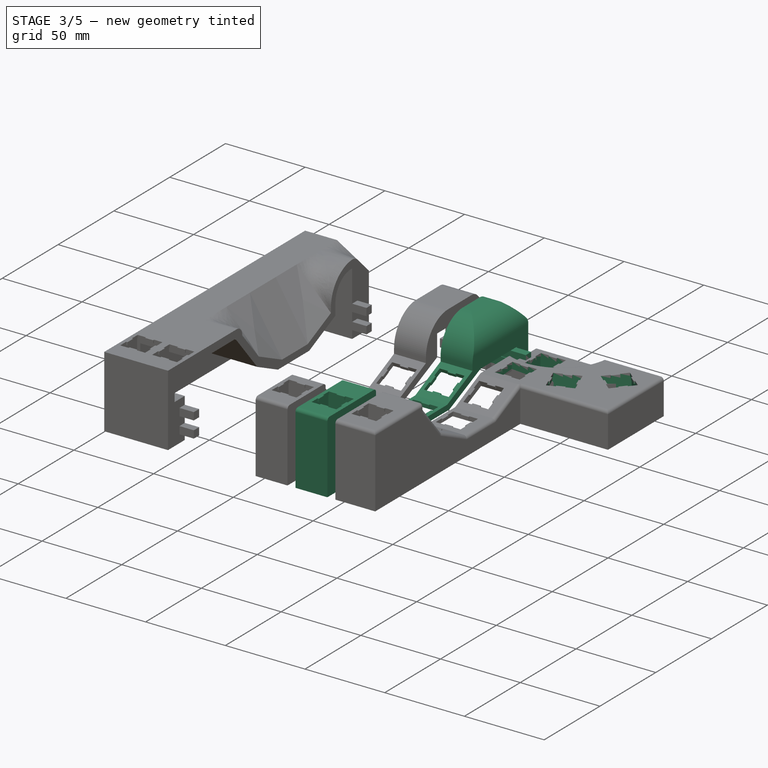
[diagram: stage 3 of 5 — iso view after this stage's code; geometry added in this stage tinted green]
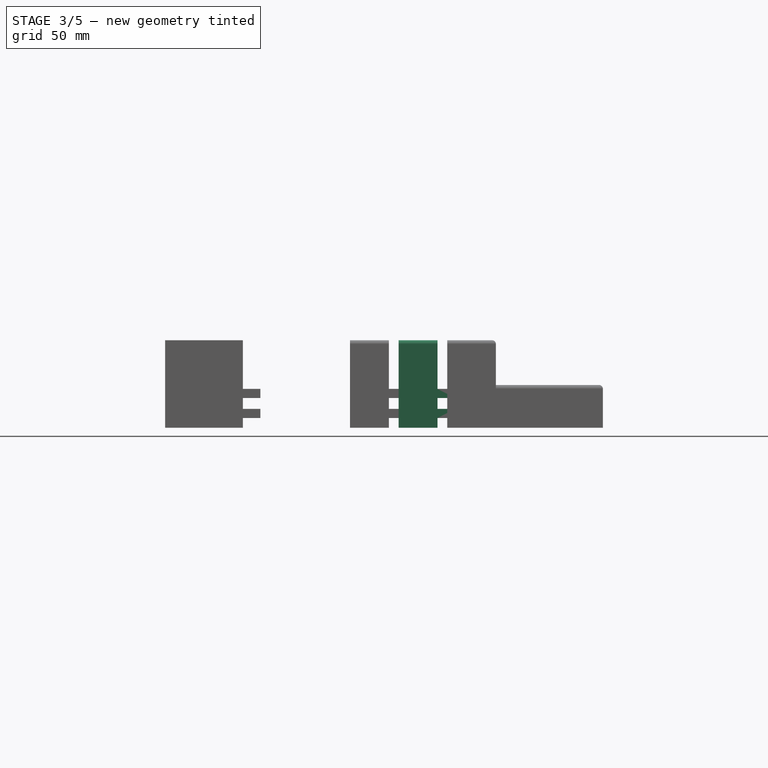
[diagram: stage 3 of 5 — front view after this stage's code; geometry added in this stage tinted green]
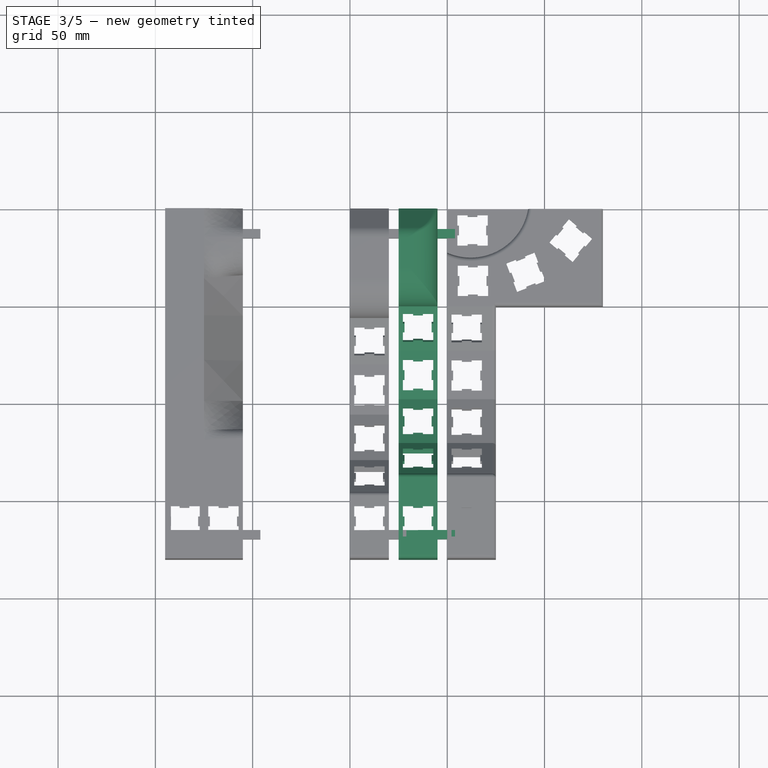
[diagram: stage 3 of 5 — top view after this stage's code; geometry added in this stage tinted green]
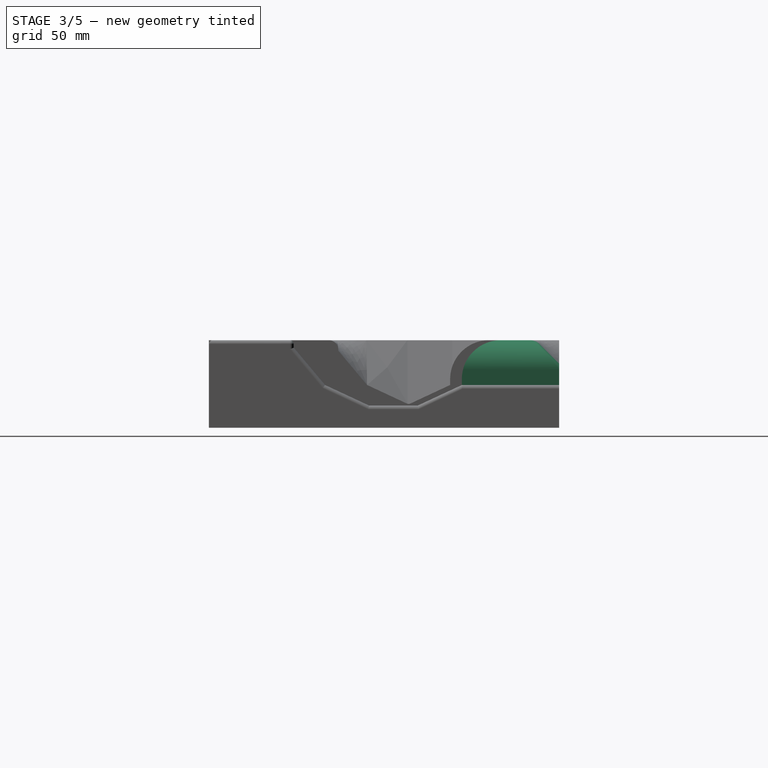
[diagram: stage 3 of 5 — right view after this stage's code; geometry added in this stage tinted green]
FEATURE [Part::Extrusion] Extrude004
  Base = -> Sketch010
  Dir = (1,0,0)
  DirMode = 2
  FaceMakerClass = Part::FaceMakerBullseye
  LengthFwd = 20
  LengthRev = 0
  Placement = pos=(75,0,0) rot=(0,0,1;0rad)
  Solid = true
  Symmetric = false
FEATURE [Part::Box] Box019  label="Cube003"
  AttacherType = Attacher::AttachEngine3D
  Height = 20
  Length = 22
  Placement = pos=(74,-75.5,-16) rot=(1,0,0;0.418879rad)
  Width = 50
FEATURE [Part::Box] Box023  label="Cube007"
  AttacherType = Attacher::AttachEngine3D
  Height = 20
  Length = 22
  Placement = pos=(74,-138,4) rot=(-1,0,0;0.436332rad)
  Width = 40
FEATURE [Part::MultiFuse] Fusion011
  Placement = pos=(76,-65,4) rot=(1,0,0;0.436332rad)
  Shapes = -> [Extrude,Box024]
FEATURE [Part::MultiFuse] Fusion015
  Placement = pos=(76,-94.2,1.5) rot=(1,0,0;0rad)
  Shapes = -> [Extrude,Box024]
FEATURE [Part::MultiFuse] Fusion019
  Placement = pos=(76,-121,11.4) rot=(-1,0,0;0.436332rad)
  Shapes = -> [Extrude,Box024]
FEATURE [Part::MultiFuse] Fusion023
  Placement = pos=(76,-141.6,32) rot=(-1,0,0;0.872665rad)
  Shapes = -> [Extrude,Box024]
FEATURE [Part::MultiFuse] Fusion027
  Placement = pos=(76,-170,35.2) rot=(-1,0,0;0rad)
  Shapes = -> [Extrude,Box024]
FEATURE [Part::Box] Box029  label="Cube013"
  AttacherType = Attacher::AttachEngine3D
  Height = 20
  Length = 18
  Placement = pos=(76,-170,20) rot=(0,0,1;0rad)
  Width = 18
FEATURE [Part::Box] Box037  label="Cube021"
  AttacherType = Attacher::AttachEngine3D
  Height = 11
  Length = 2
  Placement = pos=(75,-102.1,0) rot=(0,0,1;0rad)
  Width = 8
FEATURE [Part::Box] Box041  label="Cube025"
  AttacherType = Attacher::AttachEngine3D
  Height = 5
  Length = 20
  Placement = pos=(75,-171,10) rot=(0,0,1;0rad)
  Width = 6
FEATURE [Part::Box] Box045  label="Cube029"
  AttacherType = Attacher::AttachEngine3D
  Height = 5
  Length = 20
  Placement = pos=(75,-15,10) rot=(0,0,1;0rad)
  Width = 6
FEATURE [Part::Box] Box058  label="Cube042"
  AttacherType = Attacher::AttachEngine3D
  Height = 4.7
  Length = 19
  Placement = pos=(10,-15,5) rot=(0,0,1;0rad)
  Width = 10
FEATURE [Part::Box] Box059  label="Cube043"
  AttacherType = Attacher::AttachEngine3D
  Height = 7
  Length = 10
  Placement = pos=(20,-10.3,4) rot=(0,0,1;0rad)
  Width = 6
FEATURE [Part::Cut] Cut106
  Base = -> Box058
  Placement = pos=(75,0,0) rot=(0,0,1;0rad)
  Tool = -> Box059
FEATURE [Part::Box] Box060  label="Cube044"
  AttacherType = Attacher::AttachEngine3D
  Height = 4.7
  Length = 19
  Placement = pos=(10,-15,5) rot=(0,0,1;0rad)
  Width = 10
FEATURE [Part::Box] Box061  label="Cube045"
  AttacherType = Attacher::AttachEngine3D
  Height = 7
  Length = 10
  Placement = pos=(20,-10.3,4) rot=(0,0,1;0rad)
  Width = 6
FEATURE [Part::Cut] Cut107
  Base = -> Box060
  Placement = pos=(75,0,10.3) rot=(0,0,1;0rad)
  Tool = -> Box061
FEATURE [Part::Box] Box074  label="Cube058"
  AttacherType = Attacher::AttachEngine3D
  Height = 4.7
  Length = 19
  Placement = pos=(10,-15,5) rot=(0,0,1;0rad)
  Width = 10
FEATURE [Part::Box] Box075  label="Cube059"
  AttacherType = Attacher::AttachEngine3D
  Height = 7
  Length = 10
  Placement = pos=(20,-15.7,4) rot=(0,0,1;0rad)
  Width = 6
FEATURE [Part::Cut] Cut146
  Base = -> Box074
  Placement = pos=(75,-160,0) rot=(0,0,1;0rad)
  Tool = -> Box075
FEATURE [Part::Box] Box076  label="Cube060"
  AttacherType = Attacher::AttachEngine3D
  Height = 4.7
  Length = 19
  Placement = pos=(10,-15,5) rot=(0,0,1;0rad)
  Width = 10
FEATURE [Part::Box] Box077  label="Cube061"
  AttacherType = Attacher::AttachEngine3D
  Height = 7
  Length = 10
  Placement = pos=(20,-15.7,4) rot=(0,0,1;0rad)
  Width = 6
FEATURE [Part::Cut] Cut147
  Base = -> Box076
  Placement = pos=(75,-160,10.3) rot=(0,0,1;0rad)
  Tool = -> Box077
FEATURE [Part::Box] Box090  label="Cube075"
  AttacherType = Attacher::AttachEngine3D
  Height = 15.5
  Length = 20
  Placement = pos=(75,-44,20.5) rot=(0,0,1;0rad)
  Width = 35
FEATURE [Part::Box] Box095  label="Cube080"
  AttacherType = Attacher::AttachEngine3D
  Height = 8
  Length = 18
  Width = 18
FEATURE [Sketcher::SketchObject] Sketch018  label="Switch Cut Out002"
  sketch-geometry (20):
    g0: LineSegment StartX=-0.000129595 StartY=15.5792 StartZ=0 EndX=5.28987 EndY=15.5792 EndZ=0
    g1: LineSegment StartX=5.28987 StartY=15.5792 StartZ=0 EndX=5.28987 EndY=14.7692 EndZ=0
    g2: LineSegment StartX=5.28987 StartY=14.7692 StartZ=0 EndX=10.2899 EndY=14.7692 EndZ=0
    g3: LineSegment StartX=10.2899 StartY=14.7692 StartZ=0 EndX=10.2899 EndY=15.5792 EndZ=0
    g4: LineSegment StartX=10.2899 StartY=15.5792 StartZ=0 EndX=15.5799 EndY=15.5792 EndZ=0
    g5: LineSegment StartX=15.5799 StartY=15.5792 StartZ=0 EndX=15.5799 EndY=10.2892 EndZ=0
    g6: LineSegment StartX=15.5799 StartY=10.2892 StartZ=0 EndX=14.7699 EndY=10.2892 EndZ=0
    g7: LineSegment StartX=14.7699 StartY=10.2892 StartZ=0 EndX=14.7699 EndY=5.28921 EndZ=0
    g8: LineSegment StartX=14.7699 StartY=5.28921 StartZ=0 EndX=15.5799 EndY=5.28921 EndZ=0
    g9: LineSegment StartX=15.5799 StartY=5.28921 StartZ=0 EndX=15.5799 EndY=-0.000794506 EndZ=0
    g10: LineSegment StartX=15.5799 StartY=-0.000794506 StartZ=0 EndX=10.2899 EndY=-0.000794506 EndZ=0
    g11: LineSegment StartX=10.2899 StartY=-0.000794506 StartZ=0 EndX=10.2899 EndY=0.809205 EndZ=0
    g12: LineSegment StartX=10.2899 StartY=0.809205 StartZ=0 EndX=5.28987 EndY=0.809205 EndZ=0
    g13: LineSegment StartX=5.28987 StartY=0.809205 StartZ=0 EndX=5.28987 EndY=-0.000794506 EndZ=0
    g14: LineSegment StartX=5.28987 StartY=-0.000794506 StartZ=0 EndX=-0.000129595 EndY=-0.000794506 EndZ=0
    g15: LineSegment StartX=-0.000129595 StartY=-0.000794506 StartZ=0 EndX=-0.000129595 EndY=5.28921 EndZ=0
    g16: LineSegment StartX=-0.000129595 StartY=5.28921 StartZ=0 EndX=0.80987 EndY=5.28921 EndZ=0
    g17: LineSegment StartX=0.80987 StartY=5.28921 StartZ=0 EndX=0.80987 EndY=10.2892 EndZ=0
    g18: LineSegment StartX=0.80987 StartY=10.2892 StartZ=0 EndX=-0.000129595 EndY=10.2892 EndZ=0
    g19: LineSegment StartX=-0.000129595 StartY=10.2892 StartZ=0 EndX=-0.000129595 EndY=15.5792 EndZ=0
  constraints (58):
    c: Coincident(g0,g1)
    c: Coincident(g1,g2)
    c: Coincident(g2,g3)
    c: Coincident(g3,g4)
    c: Coincident(g4,g5)
    c: Coincident(g5,g6)
    c: Coincident(g6,g7)
    c: Coincident(g7,g8)
    c: Coincident(g8,g9)
    c: Coincident(g9,g10)
    c: Coincident(g10,g11)
    c: Coincident(g11,g12)
    c: Coincident(g12,g13)
    c: Coincident(g13,g14)
    c: Coincident(g14,g15)
    c: Coincident(g15,g16)
    c: Coincident(g16,g17)
    c: Coincident(g17,g18)
    c: Coincident(g18,g19)
    c: Coincident(g19,g0)
    c: Horizontal(g0)
    c: DistanceX(g0,g0) = 5.29
    c: Vertical(g1)
    c: DistanceY(g1,g1) = 0.81
    c: Horizontal(g2)
    c: DistanceX(g2,g2) = 5
    c: Vertical(g3)
    c: DistanceY(g3,g3) = 0.81
    c: Horizontal(g4)
    c: DistanceX(g4,g4) = 5.29
    c: Vertical(g5)
    c: DistanceY(g5,g5) = 5.29
    c: Horizontal(g6)
    c: DistanceX(g6,g6) = -0.81
    c: Vertical(g7)
    c: DistanceY(g7,g7) = 5
    c: Horizontal(g8)
    c: DistanceX(g8,g8) = 0.81
    c: Vertical(g9)
    c: DistanceY(g9,g9) = 5.29
    c: Horizontal(g10)
    c: DistanceX(g10,g10) = -5.29
    c: Vertical(g11)
    c: DistanceY(g11,g11) = -0.81
    c: Horizontal(g12)
    c: DistanceX(g12,g12) = 5
    c: Vertical(g13)
    c: DistanceY(g13,g13) = 0.81
    c: Horizontal(g14)
    c: DistanceX(g14,g14) = 5.29
    c: Vertical(g15)
    c: DistanceY(g15,g15) = 5.29
    c: Horizontal(g16)
    c: DistanceX(g16,g16) = -0.81
    c: Vertical(g17)
    c: DistanceY(g17,g17) = 5
    c: Horizontal(g18)
    c: DistanceX(g18,g18) = 0.81
FEATURE [Part::Extrusion] Extrude007
  Base = -> Sketch018
  Dir = (0,0,1)
  DirMode = 2
  FaceMakerClass = Part::FaceMakerBullseye
  LengthFwd = 10
  LengthRev = 0
  Placement = pos=(1.21,1.21,0) rot=(0,0,1;0rad)
  Solid = true
  Symmetric = false
FEATURE [Part::MultiFuse] Fusion115
  Placement = pos=(0,0,35) rot=(0,0,1;0rad)
  Shapes = -> [Extrude007,Box095]
FEATURE [Part::Box] Box098  label="Cube083"
  AttacherType = Attacher::AttachEngine3D
  Height = 100
  Length = 30
  Width = 30
FEATURE [Part::Cylinder] Cylinder
  Angle = 360
  AttacherType = Attacher::AttachEngine3D
  Height = 100
  Radius = 15
FEATURE [Part::Cut] Cut172
  Base = -> Box098
  Placement = pos=(80,45,30) rot=(1,0,0;1.5708rad)
  Tool = -> Cylinder
FEATURE [Part::Box] Box102  label="Cube087"
  AttacherType = Attacher::AttachEngine3D
  Height = 40
  Length = 18
  Width = 18
FEATURE [Part::MultiFuse] Fusion120
  Placement = pos=(104.2,-46,-22.8) rot=(0,0,1;0rad)
  Shapes = -> [Fusion115,Box102]
FEATURE [Part::Box] Box103  label="Cube088"
  AttacherType = Attacher::AttachEngine3D
  Height = 8
  Length = 18
  Width = 18
FEATURE [Sketcher::SketchObject] Sketch019  label="Switch Cut Out003"
  sketch-geometry (20):
    g0: LineSegment StartX=-0.000129595 StartY=15.5792 StartZ=0 EndX=5.28987 EndY=15.5792 EndZ=0
    g1: LineSegment StartX=5.28987 StartY=15.5792 StartZ=0 EndX=5.28987 EndY=14.7692 EndZ=0
    g2: LineSegment StartX=5.28987 StartY=14.7692 StartZ=0 EndX=10.2899 EndY=14.7692 EndZ=0
    g3: LineSegment StartX=10.2899 StartY=14.7692 StartZ=0 EndX=10.2899 EndY=15.5792 EndZ=0
    g4: LineSegment StartX=10.2899 StartY=15.5792 StartZ=0 EndX=15.5799 EndY=15.5792 EndZ=0
    g5: LineSegment StartX=15.5799 StartY=15.5792 StartZ=0 EndX=15.5799 EndY=10.2892 EndZ=0
    g6: LineSegment StartX=15.5799 StartY=10.2892 StartZ=0 EndX=14.7699 EndY=10.2892 EndZ=0
    g7: LineSegment StartX=14.7699 StartY=10.2892 StartZ=0 EndX=14.7699 EndY=5.28921 EndZ=0
    g8: LineSegment StartX=14.7699 StartY=5.28921 StartZ=0 EndX=15.5799 EndY=5.28921 EndZ=0
    g9: LineSegment StartX=15.5799 StartY=5.28921 StartZ=0 EndX=15.5799 EndY=-0.000794506 EndZ=0
    g10: LineSegment StartX=15.5799 StartY=-0.000794506 StartZ=0 EndX=10.2899 EndY=-0.000794506 EndZ=0
    g11: LineSegment StartX=10.2899 StartY=-0.000794506 StartZ=0 EndX=10.2899 EndY=0.809205 EndZ=0
    g12: LineSegment StartX=10.2899 StartY=0.809205 StartZ=0 EndX=5.28987 EndY=0.809205 EndZ=0
    g13: LineSegment StartX=5.28987 StartY=0.809205 StartZ=0 EndX=5.28987 EndY=-0.000794506 EndZ=0
    g14: LineSegment StartX=5.28987 StartY=-0.000794506 StartZ=0 EndX=-0.000129595 EndY=-0.000794506 EndZ=0
    g15: LineSegment StartX=-0.000129595 StartY=-0.000794506 StartZ=0 EndX=-0.000129595 EndY=5.28921 EndZ=0
    g16: LineSegment StartX=-0.000129595 StartY=5.28921 StartZ=0 EndX=0.80987 EndY=5.28921 EndZ=0
    g17: LineSegment StartX=0.80987 StartY=5.28921 StartZ=0 EndX=0.80987 EndY=10.2892 EndZ=0
    g18: LineSegment StartX=0.80987 StartY=10.2892 StartZ=0 EndX=-0.000129595 EndY=10.2892 EndZ=0
    g19: LineSegment StartX=-0.000129595 StartY=10.2892 StartZ=0 EndX=-0.000129595 EndY=15.5792 EndZ=0
  constraints (58):
    c: Coincident(g0,g1)
    c: Coincident(g1,g2)
    c: Coincident(g2,g3)
    c: Coincident(g3,g4)
    c: Coincident(g4,g5)
    c: Coincident(g5,g6)
    c: Coincident(g6,g7)
    c: Coincident(g7,g8)
    c: Coincident(g8,g9)
    c: Coincident(g9,g10)
    c: Coincident(g10,g11)
    c: Coincident(g11,g12)
    c: Coincident(g12,g13)
    c: Coincident(g13,g14)
    c: Coincident(g14,g15)
    c: Coincident(g15,g16)
    c: Coincident(g16,g17)
    c: Coincident(g17,g18)
    c: Coincident(g18,g19)
    c: Coincident(g19,g0)
    c: Horizontal(g0)
    c: DistanceX(g0,g0) = 5.29
    c: Vertical(g1)
    c: DistanceY(g1,g1) = 0.81
    c: Horizontal(g2)
    c: DistanceX(g2,g2) = 5
    c: Vertical(g3)
    c: DistanceY(g3,g3) = 0.81
    c: Horizontal(g4)
    c: DistanceX(g4,g4) = 5.29
    c: Vertical(g5)
    c: DistanceY(g5,g5) = 5.29
    c: Horizontal(g6)
    c: DistanceX(g6,g6) = -0.81
    c: Vertical(g7)
    c: DistanceY(g7,g7) = 5
    c: Horizontal(g8)
    c: DistanceX(g8,g8) = 0.81
    c: Vertical(g9)
    c: DistanceY(g9,g9) = 5.29
    c: Horizontal(g10)
    c: DistanceX(g10,g10) = -5.29
    c: Vertical(g11)
    c: DistanceY(g11,g11) = -0.81
    c: Horizontal(g12)
    c: DistanceX(g12,g12) = 5
    c: Vertical(g13)
    c: DistanceY(g13,g13) = 0.81
    c: Horizontal(g14)
    c: DistanceX(g14,g14) = 5.29
    c: Vertical(g15)
    c: DistanceY(g15,g15) = 5.29
    c: Horizontal(g16)
    c: DistanceX(g16,g16) = -0.81
    c: Vertical(g17)
    c: DistanceY(g17,g17) = 5
    c: Horizontal(g18)
    c: DistanceX(g18,g18) = 0.81
FEATURE [Part::Extrusion] Extrude008
  Base = -> Sketch019
  Dir = (0,0,1)
  DirMode = 2
  FaceMakerClass = Part::FaceMakerBullseye
  LengthFwd = 10
  LengthRev = 0
  Placement = pos=(1.21,1.21,0) rot=(0,0,1;0rad)
  Solid = true
  Symmetric = false
FEATURE [Part::MultiFuse] Fusion121
  Placement = pos=(0,0,35) rot=(0,0,1;0rad)
  Shapes = -> [Extrude008,Box103]
FEATURE [Part::Box] Box104  label="Cube089"
  AttacherType = Attacher::AttachEngine3D
  Height = 40
  Length = 18
  Width = 18
FEATURE [Part::MultiFuse] Fusion122
  Placement = pos=(135.2,-44.2,-22.8) rot=(0,0,1;0.366519rad)
  Shapes = -> [Fusion121,Box104]
FEATURE [Part::Box] Box106  label="Cube091"
  AttacherType = Attacher::AttachEngine3D
  Height = 40
  Length = 18
  Width = 18
FEATURE [Part::MultiFuse] Fusion181
  Shapes = -> [Extrude004,Box045]
FEATURE [Part::MultiFuse] Fusion182
  Shapes = -> [Fusion181,Cut106]
FEATURE [Part::MultiFuse] Fusion183
  Shapes = -> [Fusion182,Cut107]
FEATURE [Part::MultiFuse] Fusion184
  Shapes = -> [Fusion183,Box041]
FEATURE [Part::MultiFuse] Fusion185
  Shapes = -> [Fusion184,Cut146]
FEATURE [Part::MultiFuse] Fusion186
  Shapes = -> [Fusion185,Cut147]
FEATURE [Part::Box] Box114  label="Cube099"
  AttacherType = Attacher::AttachEngine3D
  Height = 20
  Length = 22
  Placement = pos=(74,-152,22.1) rot=(-1,0,0;0.872665rad)
  Width = 40
FEATURE [Part::Cut] Cut222
  Base = -> Fusion186
  Tool = -> Box019
FEATURE [Part::Cut] Cut223
  Base = -> Cut222
  Tool = -> Box023
FEATURE [Part::Box] Box115  label="Cube100"
  AttacherType = Attacher::AttachEngine3D
  Height = 20
  Length = 22
  Placement = pos=(74,-156.7,35) rot=(-1,0,0;1.5708rad)
  Width = 40
FEATURE [Part::Cut] Cut224
  Base = -> Cut223
  Tool = -> Box114
FEATURE [Part::Cut] Cut225
  Base = -> Cut224
  Tool = -> Box115
FEATURE [Part::Cut] Cut226
  Base = -> Cut225
  Tool = -> Fusion011
FEATURE [Part::Cut] Cut227
  Base = -> Cut226
  Tool = -> Fusion015
FEATURE [Part::Cut] Cut228
  Base = -> Cut227
  Tool = -> Fusion019
FEATURE [Part::Box] Box116  label="Cube101"
  AttacherType = Attacher::AttachEngine3D
  Height = 11
  Length = 2
  Placement = pos=(93,-102.1,0) rot=(0,0,1;0rad)
  Width = 8
FEATURE [Part::Box] Box126  label="Cube111"
  AttacherType = Attacher::AttachEngine3D
  Height = 4
  Length = 4.6
  Placement = pos=(-17.3,-7.6,0) rot=(0,0,1;0rad)
  Width = 10
FEATURE [Part::Box] Box127  label="Cube112"
  AttacherType = Attacher::AttachEngine3D
  Height = 11
  Length = 4.6
  Placement = pos=(-17.3,-7.6,0) rot=(0,0,1;0rad)
  Width = 4.6
FEATURE [Part::MultiFuse] Fusion201
  Placement = pos=(100,0,0) rot=(0,0,1;0rad)
  Shapes = -> [Box127,Box126]
FEATURE [Part::MultiFuse] Fusion123
  Placement = pos=(0,0,35) rot=(0,0,1;0rad)
  Shapes = -> [Extrude009,Box105]
FEATURE [Part::MultiFuse] Fusion124
  Placement = pos=(164.6,-29,-22.8) rot=(0,0,1;0.872665rad)
  Shapes = -> [Fusion123,Box106]
FEATURE [Part::MultiFuse] Fusion240
  Placement = pos=(104,-20,7) rot=(1,0,0;0rad)
  Shapes = -> [Extrude006,Box091]
FEATURE [Part::Box] Box188  label="Cube173"
  AttacherType = Attacher::AttachEngine3D
  Height = 10
  Length = 18
  Placement = pos=(104,-20,0) rot=(0,0,1;0rad)
  Width = 18
FEATURE [App::DocumentObjectGroup] Group007  label="06 Palm Rest"
  Group = -> [Fillet084]
FEATURE [Part::Extrusion] Extrude015
  Base = -> Sketch032
  Dir = (1,0,0)
  DirMode = 2
  FaceMakerClass = Part::FaceMakerBullseye
  LengthFwd = 20
  LengthRev = 0
  Placement = pos=(80,0,0) rot=(0,0,1;0rad)
  Solid = true
  Symmetric = false
FEATURE [Part::Cut] Cut229
  Base = -> Cut228
  Tool = -> Fusion023
FEATURE [Part::Cut] Cut437
  Base = -> Cut229
  Tool = -> Fusion027
FEATURE [Part::Cut] Cut438
  Base = -> Cut437
  Tool = -> Box029
FEATURE [Part::MultiFuse] Fusion349
  Shapes = -> [Cut438,Box037]
FEATURE [Part::MultiFuse] Fusion350
  Shapes = -> [Fusion349,Box116]
FEATURE [Part::MultiFuse] Fusion351
  Shapes = -> [Fusion350,Box090]
FEATURE [Part::Cut] Cut439
  Base = -> Fusion351
  Tool = -> Fusion201
FEATURE [Part::Fillet] Fillet085
  Base = -> Cut439
  Edges = 1 edges r=20: [Edge177]
FEATURE [Part::Fillet] Fillet086
  Base = -> Fillet085
  Edges = 1 edges r=2: [Edge170]
FEATURE [Part::Fillet] Fillet087
  Base = -> Fillet086
  Edges = 1 edges r=2: [Edge86]
FEATURE [Part::Cut] Cut440
  Base = -> Fillet087
  Tool = -> Cut172
FEATURE [Part::Cut] Cut441
  Base = -> Cut440
  Tool = -> Extrude015
FEATURE [Part::Fillet] Fillet088
  Base = -> Cut441
  Edges = 2 edges r=2: [Edge163,Edge164]
FEATURE [Part::Cut] Cut445
  Base = -> Cut444
  Tool = -> Fusion124
FEATURE [Part::Cut] Cut446
  Base = -> Cut445
  Tool = -> Fusion122
FEATURE [Part::Cut] Cut447
  Base = -> Cut446
  Tool = -> Fusion120
FEATURE [Part::Cut] Cut448
  Base = -> Cut447
  Tool = -> Fusion240
FEATURE [Part::Cut] Cut449
  Base = -> Cut448
  Tool = -> Box188
FEATURE [Part::Fillet] Fillet090
  Base = -> Cut449
  Edges = 8 edges r=2: [Edge181,Edge182,Edge183,Edge205,Edge207,Edge229,Edge251,Edge273]
FEATURE [Part::Fillet] Fillet091
  Base = -> Fillet090
  Edges = 2 edges r=2: [Edge166,Edge168]
FEATURE [Part::Fillet] Fillet092
  Base = -> Fillet091
  Edges = 1 edges r=2: [Edge3]
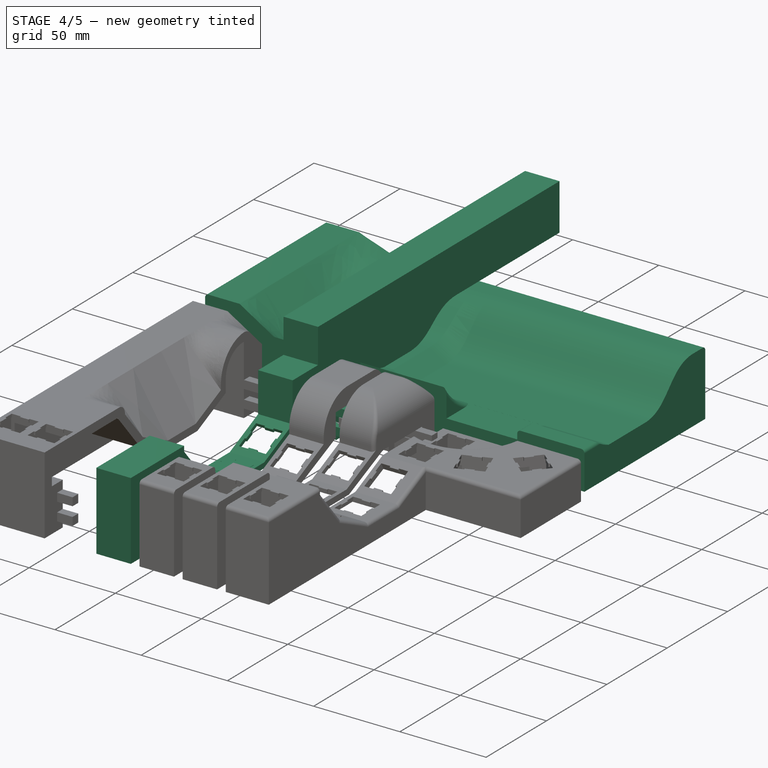
[diagram: stage 4 of 5 — iso view after this stage's code; geometry added in this stage tinted green]
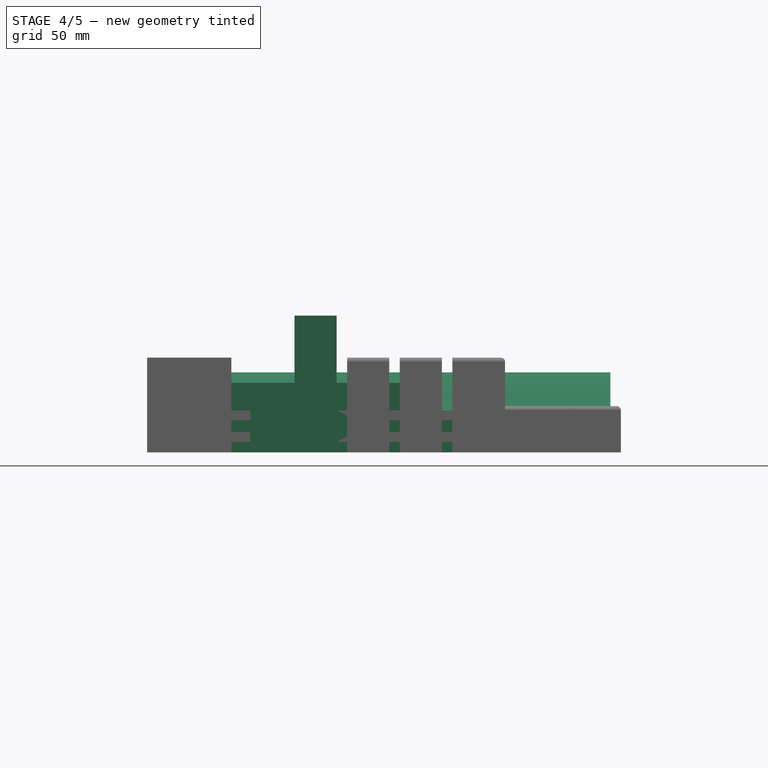
[diagram: stage 4 of 5 — front view after this stage's code; geometry added in this stage tinted green]
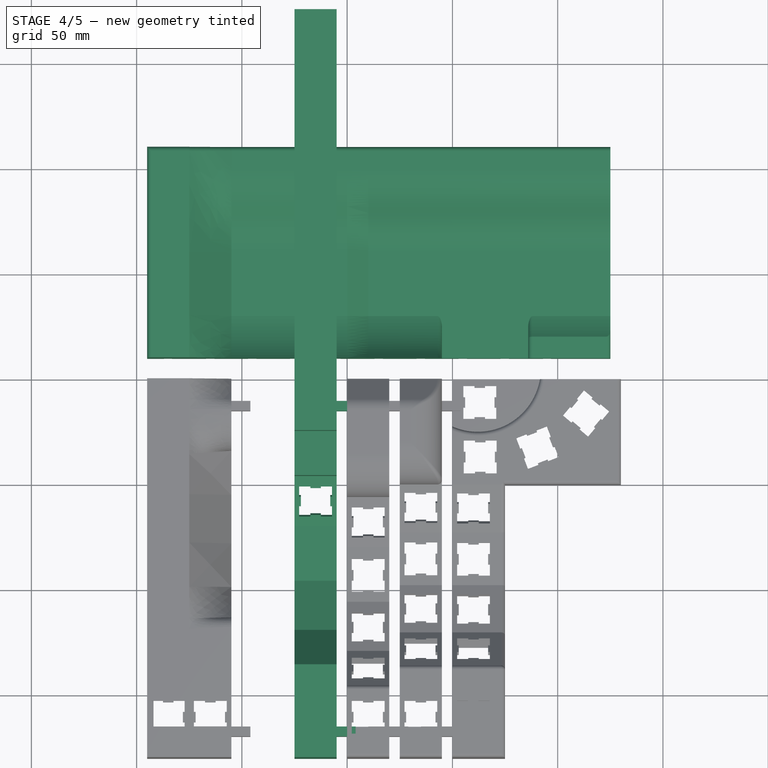
[diagram: stage 4 of 5 — top view after this stage's code; geometry added in this stage tinted green]
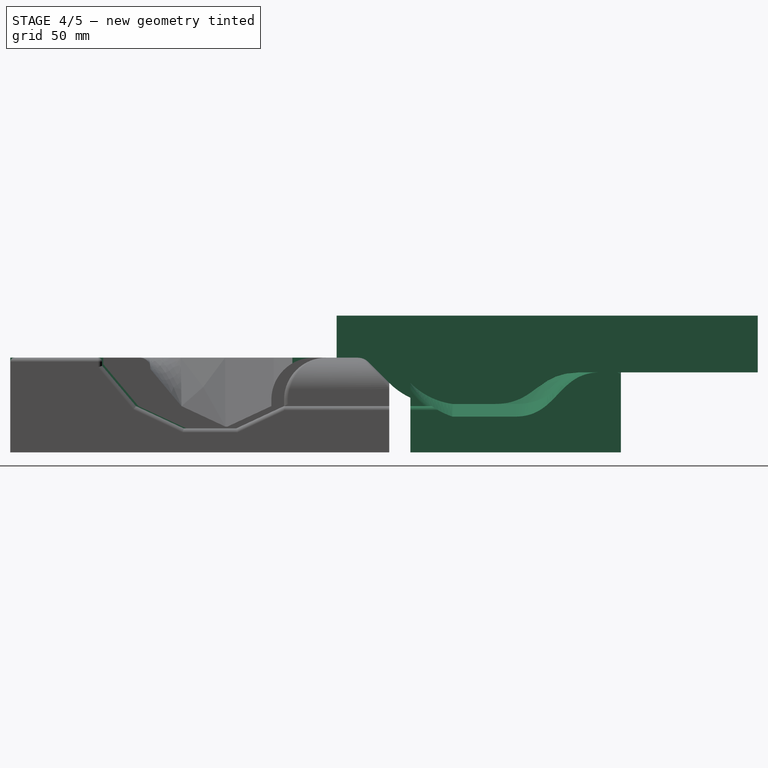
[diagram: stage 4 of 5 — right view after this stage's code; geometry added in this stage tinted green]
FEATURE [Part::Extrusion] Extrude002
  Base = -> Sketch003
  Dir = (1,0,0)
  DirMode = 2
  FaceMakerClass = Part::FaceMakerBullseye
  LengthFwd = 20
  LengthRev = 0
  Placement = pos=(25,0,0) rot=(0,0,1;0rad)
  Solid = true
  Symmetric = false
FEATURE [Part::Box] Box017  label="Cube001"
  AttacherType = Attacher::AttachEngine3D
  Height = 20
  Length = 22
  Placement = pos=(24,-71,-15) rot=(1,0,0;0.418879rad)
  Width = 50
FEATURE [Part::Box] Box021  label="Cube005"
  AttacherType = Attacher::AttachEngine3D
  Height = 20
  Length = 22
  Placement = pos=(24,-151.4,22.1) rot=(-1,0,0;0.872665rad)
  Width = 40
FEATURE [Part::MultiFuse] Fusion009
  Placement = pos=(26,-62,3.6) rot=(1,0,0;0.436332rad)
  Shapes = -> [Extrude,Box024]
FEATURE [Part::MultiFuse] Fusion013
  Placement = pos=(26,-92,1.2) rot=(1,0,0;0rad)
  Shapes = -> [Extrude,Box024]
FEATURE [Part::Box] Box043  label="Cube027"
  AttacherType = Attacher::AttachEngine3D
  Height = 5
  Length = 20
  Placement = pos=(25,-15,10) rot=(0,0,1;0rad)
  Width = 6
FEATURE [Part::Box] Box050  label="Cube034"
  AttacherType = Attacher::AttachEngine3D
  Height = 4.7
  Length = 19
  Placement = pos=(10,-15,5) rot=(0,0,1;0rad)
  Width = 10
FEATURE [Part::Box] Box051  label="Cube035"
  AttacherType = Attacher::AttachEngine3D
  Height = 7
  Length = 10
  Placement = pos=(20,-10.3,4) rot=(0,0,1;0rad)
  Width = 6
FEATURE [Part::Cut] Cut102
  Base = -> Box050
  Placement = pos=(25,0,0) rot=(0,0,1;0rad)
  Tool = -> Box051
FEATURE [Part::Box] Box052  label="Cube036"
  AttacherType = Attacher::AttachEngine3D
  Height = 4.7
  Length = 19
  Placement = pos=(10,-15,5) rot=(0,0,1;0rad)
  Width = 10
FEATURE [Part::Box] Box053  label="Cube037"
  AttacherType = Attacher::AttachEngine3D
  Height = 7
  Length = 10
  Placement = pos=(20,-10.3,4) rot=(0,0,1;0rad)
  Width = 6
FEATURE [Part::Cut] Cut103
  Base = -> Box052
  Placement = pos=(25,0,10.3) rot=(0,0,1;0rad)
  Tool = -> Box053
FEATURE [Part::Box] Box066  label="Cube050"
  AttacherType = Attacher::AttachEngine3D
  Height = 4.7
  Length = 19
  Placement = pos=(10,-15,5) rot=(0,0,1;0rad)
  Width = 10
FEATURE [Part::Box] Box067  label="Cube051"
  AttacherType = Attacher::AttachEngine3D
  Height = 7
  Length = 10
  Placement = pos=(20,-15.7,4) rot=(0,0,1;0rad)
  Width = 6
FEATURE [Part::Cut] Cut142
  Base = -> Box066
  Placement = pos=(25,-160,0) rot=(0,0,1;0rad)
  Tool = -> Box067
FEATURE [Part::Box] Box068  label="Cube052"
  AttacherType = Attacher::AttachEngine3D
  Height = 4.7
  Length = 19
  Placement = pos=(10,-15,5) rot=(0,0,1;0rad)
  Width = 10
FEATURE [Part::Box] Box069  label="Cube053"
  AttacherType = Attacher::AttachEngine3D
  Height = 7
  Length = 10
  Placement = pos=(20,-15.7,4) rot=(0,0,1;0rad)
  Width = 6
FEATURE [Part::Cut] Cut143
  Base = -> Box068
  Placement = pos=(25,-160,10.3) rot=(0,0,1;0rad)
  Tool = -> Box069
FEATURE [Sketcher::SketchObject] Sketch025  label="Finger Frame Side Start"
  Placement = pos=(-5,0,0) rot=(0.57735,0.57735,0.57735;2.0944rad)
  sketch-geometry (12):
    g0: LineSegment StartX=-180 StartY=45 StartZ=0 EndX=-118.062 EndY=45 EndZ=0
    g1: LineSegment StartX=-113.474 StartY=39.6191 StartZ=0 EndX=-98.6902 EndY=22 EndZ=0
    g2: LineSegment StartX=-98.6902 StartY=22 StartZ=0 EndX=-77.8451 EndY=12.2798 EndZ=0
    g3: LineSegment StartX=-77.8451 StartY=12.2798 StartZ=0 EndX=-54.8451 EndY=12.2798 EndZ=0
    g4: LineSegment StartX=-54.8451 StartY=12.2798 StartZ=0 EndX=-34 EndY=22 EndZ=0
    g5: LineSegment StartX=-14 StartY=45 StartZ=0 EndX=0 EndY=45 EndZ=0
    g6: LineSegment StartX=0 StartY=45 StartZ=0 EndX=0 EndY=0 EndZ=0
    g7: LineSegment StartX=-180 StartY=45 StartZ=0 EndX=-180 EndY=0 EndZ=0
    g8: LineSegment StartX=-34 StartY=25 StartZ=0 EndX=-34 EndY=22 EndZ=0
    g9: LineSegment StartX=-180 StartY=0 StartZ=0 EndX=0 EndY=0 EndZ=0
    g10: ArcOfCircle CenterX=-14 CenterY=25 CenterZ=0 NormalX=0 NormalY=0 NormalZ=1 AngleXU=0 Radius=20 StartAngle=1.57079 EndAngle=3.14159
    g11: ArcOfCircle CenterX=-118.459 CenterY=40.0158 CenterZ=0 NormalX=0 NormalY=0 NormalZ=1 AngleXU=0 Radius=5 StartAngle=6.20376 EndAngle=7.77456
  constraints (37):
    c: Coincident(g1,g2)
    c: Coincident(g2,g3)
    c: Coincident(g3,g4)
    c: Horizontal(g0)
    c: Horizontal(g5)
    c: Distance(g2) = 23
    c: Distance(g3) = 23
    c: Distance(g4) = 23
    c: Coincident(g5,g6)
    c: Vertical(g6)
    c: Coincident(g7,g0)
    c: Vertical(g7)
    c: Distance(g5) = 14
    c: Distance(g6) = 45
    c: Vertical(g8)
    c: Coincident(g8,g4)
    c: Distance(g7) = 45
    c: Angle(g8,g4) = 2.00713
    c: Angle(g4,g3) = 2.70526
    c: Angle(g3,g2) = 2.70526
    c: Angle(g2,g1) = 2.70526
    c: Coincident(g9,g7)
    c: Distance(g1) = 23
    c: Distance(g8) = 3
    c: Radius(g10) = 20
    c: Angle(g10) = 1.5708
    c: Coincident(g10,g5)
    c: Coincident(g8,g10)
    c: Coincident(g6,g9)
    c: Coincident(g6,g-1)
    c: Horizontal(g9)
    c: Distance(g9) = 180
    c: Coincident(g11,g0)
    c: Coincident(g11,g1)
    c: Angle(g11) = 1.5708
    c: DistanceY(g10,g5) = 20
    c: Radius(g11) = 5
FEATURE [Sketcher::SketchObject] Sketch026  label="Finger Frame Side Middle"
  Placement = pos=(-25,0,0) rot=(0.57735,0.57735,0.57735;2.0944rad)
  sketch-geometry (12):
    g0: LineSegment StartX=-180 StartY=45 StartZ=0 EndX=-119 EndY=45 EndZ=0
    g1: LineSegment StartX=-114 StartY=45 StartZ=0 EndX=-99 EndY=45 EndZ=0
    g2: LineSegment StartX=-99 StartY=45 StartZ=0 EndX=-78 EndY=45 EndZ=0
    g3: LineSegment StartX=-78 StartY=45 StartZ=0 EndX=-55 EndY=45 EndZ=0
    g4: LineSegment StartX=-55 StartY=45 StartZ=0 EndX=-36 EndY=45 EndZ=0
    g5: LineSegment StartX=-14 StartY=45 StartZ=0 EndX=0 EndY=45 EndZ=0
    g6: LineSegment StartX=0 StartY=45 StartZ=0 EndX=0 EndY=0 EndZ=0
    g7: LineSegment StartX=-180 StartY=45 StartZ=0 EndX=-180 EndY=0 EndZ=0
    g8: LineSegment StartX=-34 StartY=45 StartZ=0 EndX=-36 EndY=45 EndZ=0
    g9: LineSegment StartX=-180 StartY=0 StartZ=0 EndX=0 EndY=0 EndZ=0
    g10: LineSegment StartX=-119 StartY=45 StartZ=0 EndX=-114 EndY=45 EndZ=0
    g11: LineSegment StartX=-14 StartY=45 StartZ=0 EndX=-34 EndY=45 EndZ=0
  constraints (35):
    c: Coincident(g1,g2)
    c: Coincident(g2,g3)
    c: Coincident(g3,g4)
    c: Horizontal(g0)
    c: Horizontal(g5)
    c: Distance(g2) = 21
    c: Distance(g3) = 23
    c: Distance(g4) = 19
    c: Coincident(g5,g6)
    c: Vertical(g6)
    c: Coincident(g7,g0)
    c: Vertical(g7)
    c: Distance(g5) = 14
    c: Distance(g6) = 45
    c: Coincident(g8,g4)
    c: Coincident(g9,g7)
    c: Distance(g1) = 15
    c: Coincident(g10,g1)
    c: Coincident(g10,g0)
    c: Distance(g8) = 2
    c: Coincident(g11,g5)
    c: Coincident(g11,g8)
    c: Horizontal(g11)
    c: Distance(g11) = 20
    c: Horizontal(g8)
    c: Horizontal(g4)
    c: Horizontal(g3)
    c: Horizontal(g2)
    c: Horizontal(g1)
    c: Coincident(g9,g6)
    c: Coincident(g6,g-1)
    c: Horizontal(g9)
    c: Distance(g9) = 180
    c: Distance(g10) = 5
    c: Distance(g7) = 45
FEATURE [Sketcher::SketchObject] Sketch027  label="Finger Frame Side End"
  Placement = pos=(-45,0,0) rot=(0.57735,0.57735,0.57735;2.0944rad)
  sketch-geometry (12):
    g0: LineSegment StartX=-180 StartY=45 StartZ=0 EndX=-119 EndY=45 EndZ=0
    g1: LineSegment StartX=-114 StartY=45 StartZ=0 EndX=-99 EndY=45 EndZ=0
    g2: LineSegment StartX=-99 StartY=45 StartZ=0 EndX=-78 EndY=45 EndZ=0
    g3: LineSegment StartX=-78 StartY=45 StartZ=0 EndX=-55 EndY=45 EndZ=0
    g4: LineSegment StartX=-55 StartY=45 StartZ=0 EndX=-36 EndY=45 EndZ=0
    g5: LineSegment StartX=-14 StartY=45 StartZ=0 EndX=0 EndY=45 EndZ=0
    g6: LineSegment StartX=0 StartY=45 StartZ=0 EndX=0 EndY=0 EndZ=0
    g7: LineSegment StartX=-180 StartY=45 StartZ=0 EndX=-180 EndY=0 EndZ=0
    g8: LineSegment StartX=-34 StartY=45 StartZ=0 EndX=-36 EndY=45 EndZ=0
    g9: LineSegment StartX=-180 StartY=0 StartZ=0 EndX=0 EndY=0 EndZ=0
    g10: LineSegment StartX=-119 StartY=45 StartZ=0 EndX=-114 EndY=45 EndZ=0
    g11: LineSegment StartX=-14 StartY=45 StartZ=0 EndX=-34 EndY=45 EndZ=0
  constraints (35):
    c: Coincident(g1,g2)
    c: Coincident(g2,g3)
    c: Coincident(g3,g4)
    c: Horizontal(g0)
    c: Horizontal(g5)
    c: Distance(g2) = 21
    c: Distance(g3) = 23
    c: Distance(g4) = 19
    c: Coincident(g5,g6)
    c: Vertical(g6)
    c: Coincident(g7,g0)
    c: Vertical(g7)
    c: Distance(g5) = 14
    c: Distance(g6) = 45
    c: Coincident(g8,g4)
    c: Coincident(g9,g7)
    c: Distance(g1) = 15
    c: Coincident(g10,g1)
    c: Coincident(g10,g0)
    c: Distance(g8) = 2
    c: Coincident(g11,g5)
    c: Coincident(g11,g8)
    c: Horizontal(g11)
    c: Distance(g11) = 20
    c: Horizontal(g8)
    c: Horizontal(g4)
    c: Horizontal(g3)
    c: Horizontal(g2)
    c: Horizontal(g1)
    c: Coincident(g9,g6)
    c: Coincident(g6,g-1)
    c: Horizontal(g9)
    c: Distance(g9) = 180
    c: Distance(g10) = 5
    c: Distance(g7) = 45
FEATURE [Part::Box] Box039  label="Cube023"
  AttacherType = Attacher::AttachEngine3D
  Height = 5
  Length = 20
  Placement = pos=(25,-171,10) rot=(0,0,1;0rad)
  Width = 6
FEATURE [Part::Box] Box110  label="Cube095"
  AttacherType = Attacher::AttachEngine3D
  Height = 20
  Length = 22
  Placement = pos=(24,-138,5) rot=(-1,0,0;0.436332rad)
  Width = 40
FEATURE [Part::Box] Box134  label="Cube119"
  AttacherType = Attacher::AttachEngine3D
  Height = 8
  Length = 4
  Placement = pos=(-17,-2.3,0) rot=(0,0,1;0rad)
  Width = 4
FEATURE [Part::Box] Box135  label="Cube120"
  AttacherType = Attacher::AttachEngine3D
  Height = 4
  Length = 4
  Placement = pos=(-17,-2.3,0) rot=(0,0,1;0rad)
  Width = 10
FEATURE [Part::MultiFuse] Fusion205
  Placement = pos=(0,5,0) rot=(0,0,1;0rad)
  Shapes = -> [Box135,Box134]
FEATURE [Part::Box] Box136  label="Cube121"
  AttacherType = Attacher::AttachEngine3D
  Height = 8
  Length = 4
  Placement = pos=(-17,-2.3,0) rot=(0,0,1;0rad)
  Width = 4
FEATURE [Part::Box] Box137  label="Cube122"
  AttacherType = Attacher::AttachEngine3D
  Height = 4
  Length = 4
  Placement = pos=(-17,-2.3,0) rot=(0,0,1;0rad)
  Width = 10
FEATURE [Part::MultiFuse] Fusion206
  Placement = pos=(20,5,0) rot=(0,0,1;0rad)
  Shapes = -> [Box137,Box136]
FEATURE [Part::Box] Box138  label="Cube123"
  AttacherType = Attacher::AttachEngine3D
  Height = 8
  Length = 4
  Placement = pos=(-17,-2.3,0) rot=(0,0,1;0rad)
  Width = 4
FEATURE [Part::Box] Box139  label="Cube124"
  AttacherType = Attacher::AttachEngine3D
  Height = 4
  Length = 4
  Placement = pos=(-17,-2.3,0) rot=(0,0,1;0rad)
  Width = 10
FEATURE [Part::MultiFuse] Fusion207
  Placement = pos=(40,5,0) rot=(0,0,1;0rad)
  Shapes = -> [Box139,Box138]
FEATURE [Part::Box] Box140  label="Cube125"
  AttacherType = Attacher::AttachEngine3D
  Height = 8
  Length = 4
  Placement = pos=(-17,-2.3,0) rot=(0,0,1;0rad)
  Width = 4
FEATURE [Part::Box] Box141  label="Cube126"
  AttacherType = Attacher::AttachEngine3D
  Height = 4
  Length = 4
  Placement = pos=(-17,-2.3,0) rot=(0,0,1;0rad)
  Width = 10
FEATURE [Part::MultiFuse] Fusion208
  Placement = pos=(60,5,0) rot=(0,0,1;0rad)
  Shapes = -> [Box141,Box140]
FEATURE [Part::Box] Box142  label="Cube127"
  AttacherType = Attacher::AttachEngine3D
  Height = 8
  Length = 4
  Placement = pos=(-17,-2.3,0) rot=(0,0,1;0rad)
  Width = 4
FEATURE [Part::Box] Box143  label="Cube128"
  AttacherType = Attacher::AttachEngine3D
  Height = 4
  Length = 4
  Placement = pos=(-17,-2.3,0) rot=(0,0,1;0rad)
  Width = 10
FEATURE [Part::MultiFuse] Fusion209
  Placement = pos=(80,5,0) rot=(0,0,1;0rad)
  Shapes = -> [Box143,Box142]
FEATURE [Part::Box] Box144  label="Cube129"
  AttacherType = Attacher::AttachEngine3D
  Height = 8
  Length = 4
  Placement = pos=(-17,-2.3,0) rot=(0,0,1;0rad)
  Width = 4
FEATURE [Part::Box] Box145  label="Cube130"
  AttacherType = Attacher::AttachEngine3D
  Height = 4
  Length = 4
  Placement = pos=(-17,-2.3,0) rot=(0,0,1;0rad)
  Width = 10
FEATURE [Part::MultiFuse] Fusion210
  Placement = pos=(100,5,0) rot=(0,0,1;0rad)
  Shapes = -> [Box145,Box144]
FEATURE [Part::Box] Box146  label="Cube131"
  AttacherType = Attacher::AttachEngine3D
  Height = 8
  Length = 4
  Placement = pos=(-17,-2.3,0) rot=(0,0,1;0rad)
  Width = 4
FEATURE [Part::Box] Box147  label="Cube132"
  AttacherType = Attacher::AttachEngine3D
  Height = 4
  Length = 4
  Placement = pos=(-17,-2.3,0) rot=(0,0,1;0rad)
  Width = 10
FEATURE [Part::MultiFuse] Fusion211
  Placement = pos=(120,5,0) rot=(0,0,1;0rad)
  Shapes = -> [Box147,Box146]
FEATURE [Part::Box] Box148  label="Cube133"
  AttacherType = Attacher::AttachEngine3D
  Height = 8
  Length = 4
  Placement = pos=(-17,-2.3,0) rot=(0,0,1;0rad)
  Width = 4
FEATURE [Part::Box] Box149  label="Cube134"
  AttacherType = Attacher::AttachEngine3D
  Height = 4
  Length = 4
  Placement = pos=(-17,-2.3,0) rot=(0,0,1;0rad)
  Width = 10
FEATURE [Part::MultiFuse] Fusion212
  Placement = pos=(140,5,0) rot=(0,0,1;0rad)
  Shapes = -> [Box149,Box148]
FEATURE [Part::Box] Box150  label="Cube135"
  AttacherType = Attacher::AttachEngine3D
  Height = 8
  Length = 4
  Placement = pos=(-17,-2.3,0) rot=(0,0,1;0rad)
  Width = 4
FEATURE [Part::Box] Box151  label="Cube136"
  AttacherType = Attacher::AttachEngine3D
  Height = 4
  Length = 4
  Placement = pos=(-17,-2.3,0) rot=(0,0,1;0rad)
  Width = 10
FEATURE [Part::MultiFuse] Fusion213
  Placement = pos=(160,5,0) rot=(0,0,1;0rad)
  Shapes = -> [Box151,Box150]
FEATURE [Part::Box] Box173  label="Cube158"
  AttacherType = Attacher::AttachEngine3D
  Height = 45
  Length = 220
  Placement = pos=(-45,10,0) rot=(0,0,1;0rad)
  Width = 100
FEATURE [Part::Box] Box179  label="Cube164"
  AttacherType = Attacher::AttachEngine3D
  Height = 8
  Length = 4
  Placement = pos=(-17,-2.3,0) rot=(0,0,1;0rad)
  Width = 4
FEATURE [Part::Box] Box180  label="Cube165"
  AttacherType = Attacher::AttachEngine3D
  Height = 4
  Length = 4
  Placement = pos=(-17,-2.3,0) rot=(0,0,1;0rad)
  Width = 10
FEATURE [Part::MultiFuse] Fusion274
  Placement = pos=(-20,5,0) rot=(0,0,1;0rad)
  Shapes = -> [Box180,Box179]
FEATURE [Part::Cut] Cut370
  Base = -> Box173
  Tool = -> Fusion213
FEATURE [Part::Cut] Cut371
  Base = -> Cut370
  Tool = -> Fusion212
FEATURE [Part::Cut] Cut372
  Base = -> Cut371
  Tool = -> Fusion211
FEATURE [Part::Cut] Cut373
  Base = -> Cut372
  Tool = -> Fusion210
FEATURE [Part::Cut] Cut374
  Base = -> Cut373
  Tool = -> Fusion209
FEATURE [Part::Cut] Cut375
  Base = -> Cut374
  Tool = -> Fusion208
FEATURE [Part::Cut] Cut376
  Base = -> Cut375
  Tool = -> Fusion207
FEATURE [Part::Cut] Cut377
  Base = -> Cut376
  Tool = -> Fusion206
FEATURE [Part::Cut] Cut378
  Base = -> Cut377
  Tool = -> Fusion205
FEATURE [Part::Cut] Cut379
  Base = -> Cut378
  Tool = -> Fusion274
FEATURE [Part::MultiFuse] Fusion330
  Shapes = -> [Extrude002,Box043]
FEATURE [Part::MultiFuse] Fusion331
  Shapes = -> [Fusion330,Cut102]
FEATURE [Part::MultiFuse] Fusion332
  Shapes = -> [Fusion331,Cut103]
FEATURE [Part::MultiFuse] Fusion333
  Shapes = -> [Fusion332,Box039]
FEATURE [Part::MultiFuse] Fusion334
  Shapes = -> [Fusion333,Cut142]
FEATURE [Part::MultiFuse] Fusion335
  Shapes = -> [Fusion334,Cut143]
FEATURE [Part::Cut] Cut395
  Base = -> Fusion335
  Tool = -> Box017
FEATURE [Part::Cut] Cut396
  Base = -> Cut395
  Tool = -> Box110
FEATURE [Part::Cut] Cut397
  Base = -> Cut396
  Tool = -> Box021
FEATURE [Part::Cut] Cut398
  Base = -> Cut397
  Tool = -> Fusion009
FEATURE [Sketcher::SketchObject] Sketch034  label="PalmShape - Middle End"
  Placement = pos=(60,0,0) rot=(0.57735,0.57735,0.57735;2.0944rad)
  sketch-geometry (16):
    g0: LineSegment StartX=0 StartY=33.0188 StartZ=0 EndX=-10 EndY=43.0188 EndZ=0
    g1: LineSegment StartX=-25 StartY=45 StartZ=0 EndX=-25 EndY=65 EndZ=0
    g2: LineSegment StartX=-25 StartY=65 StartZ=0 EndX=175 EndY=65 EndZ=0
    g3: LineSegment StartX=175 StartY=65 StartZ=0 EndX=175 EndY=38.0188 EndZ=0
    g4: LineSegment StartX=50 StartY=17.0188 StartZ=0 EndX=20 EndY=17.0188 EndZ=0
    g5: LineSegment StartX=-25 StartY=45 StartZ=0 EndX=-15 EndY=45 EndZ=0
    g6: ArcOfCircle CenterX=-15 CenterY=37.7 CenterZ=0 NormalX=0 NormalY=0 NormalZ=1 AngleXU=0 Radius=7.3 StartAngle=0.816287 EndAngle=1.5708
    g7: ArcOfCircle CenterX=31.6 CenterY=52.0188 CenterZ=0 NormalX=0 NormalY=0 NormalZ=1 AngleXU=0 Radius=36.8722 StartAngle=3.68294 EndAngle=4.39235
    g8-g11: Circle [constr] x4 (B-spline internal-alignment scaffolding for g12; pole/knot coordinates omitted)
    g12: BSplineCurve PolesCount=4 KnotsCount=2 Degree=3 IsPeriodic=0
    g13: GeomPoint [constr] X=50 Y=17.0188 Z=0
    g14: GeomPoint [constr] X=90 Y=38.0188 Z=0
    g15: LineSegment StartX=90 StartY=38.0188 StartZ=0 EndX=175 EndY=38.0188 EndZ=0
  constraints (43):
    c: Coincident(g1,g2)
    c: Coincident(g2,g3)
    c: PointOnObject(g0,g-2)
    c: Horizontal(g4)
    c: Horizontal(g2)
    c: Vertical(g3)
    c: Angle(g0,g-2) = 2.35619
    c: Coincident(g5,g1)
    c: Horizontal(g5)
    c: Distance(g5) = 10
    c: Vertical(g1)
    c: Distance(g1) = 20
    c: DistanceX(g0,g0) = 10
    c: Coincident(g4,g7)
    c: Coincident(g7,g0)
    c: Coincident(g0,g6)
    c: Coincident(g6,g5)
    c: DistanceY(g4,g0) = 16
    c: DistanceX(g0,g4) = 20
    c: Distance(g4) = 30
    c: Distance(g2) = 200
    c: DistanceY(g-1,g5) = 45
    c: DistanceX(g5,g0) = 5
    c: DistanceY(g6,g5) = 7.3
    c: DistanceX(g6,g0) = 5
    c: DistanceY(g4,g7) = 35
    c: Radius(g8) = 2
    c: Equal(g8,g9)
    c: Equal(g8,g10)
    c: Equal(g8,g11)
    c: InternalAlignment(g8-g11 -> g12) x4
    c: InternalAlignment(g13,g12)
    c: InternalAlignment(g14,g12)
    c: Coincident(g4,g8)
    c: DistanceX(g4,g9) = 20
    c: DistanceX(g10,g11) = 20
    c: DistanceY(g4,g11) = 21
    c: DistanceY(g4,g10) = 21
    c: DistanceY(g9,g11) = 21
    c: DistanceX(g4,g10) = 20
    c: Coincident(g11,g15)
    c: Coincident(g15,g3)
    c: Horizontal(g15)
FEATURE [Sketcher::SketchObject] Sketch035  label="PalmShape - End"
  Placement = pos=(175,0,0) rot=(0.57735,0.57735,0.57735;2.0944rad)
  sketch-geometry (16):
    g0: LineSegment StartX=0 StartY=33.0188 StartZ=0 EndX=-10 EndY=43.0188 EndZ=0
    g1: LineSegment StartX=-25 StartY=45 StartZ=0 EndX=-25 EndY=65 EndZ=0
    g2: LineSegment StartX=-25 StartY=65 StartZ=0 EndX=175 EndY=65 EndZ=0
    g3: LineSegment StartX=175 StartY=65 StartZ=0 EndX=175 EndY=38.0188 EndZ=0
    g4: LineSegment StartX=50 StartY=17.0188 StartZ=0 EndX=20 EndY=17.0188 EndZ=0
    g5: LineSegment StartX=-25 StartY=45 StartZ=0 EndX=-15 EndY=45 EndZ=0
    g6: ArcOfCircle CenterX=-15 CenterY=37.7 CenterZ=0 NormalX=0 NormalY=0 NormalZ=1 AngleXU=0 Radius=7.3 StartAngle=0.816287 EndAngle=1.5708
    g7: ArcOfCircle CenterX=31.6 CenterY=52.0188 CenterZ=0 NormalX=0 NormalY=0 NormalZ=1 AngleXU=0 Radius=36.8722 StartAngle=3.68294 EndAngle=4.39235
    g8-g11: Circle [constr] x4 (B-spline internal-alignment scaffolding for g12; pole/knot coordinates omitted)
    g12: BSplineCurve PolesCount=4 KnotsCount=2 Degree=3 IsPeriodic=0
    g13: GeomPoint [constr] X=50 Y=17.0188 Z=0
    g14: GeomPoint [constr] X=90 Y=38.0188 Z=0
    g15: LineSegment StartX=90 StartY=38.0188 StartZ=0 EndX=175 EndY=38.0188 EndZ=0
  constraints (43):
    c: Coincident(g1,g2)
    c: Coincident(g2,g3)
    c: PointOnObject(g0,g-2)
    c: Horizontal(g4)
    c: Horizontal(g2)
    c: Vertical(g3)
    c: Angle(g0,g-2) = 2.35619
    c: Coincident(g5,g1)
    c: Horizontal(g5)
    c: Distance(g5) = 10
    c: Vertical(g1)
    c: Distance(g1) = 20
    c: DistanceX(g0,g0) = 10
    c: Coincident(g4,g7)
    c: Coincident(g7,g0)
    c: Coincident(g0,g6)
    c: Coincident(g6,g5)
    c: DistanceY(g4,g0) = 16
    c: DistanceX(g0,g4) = 20
    c: Distance(g4) = 30
    c: Distance(g2) = 200
    c: DistanceY(g-1,g5) = 45
    c: DistanceX(g5,g0) = 5
    c: DistanceY(g6,g5) = 7.3
    c: DistanceX(g6,g0) = 5
    c: DistanceY(g4,g7) = 35
    c: Radius(g8) = 2
    c: Equal(g8,g9)
    c: Equal(g8,g10)
    c: Equal(g8,g11)
    c: InternalAlignment(g8-g11 -> g12) x4
    c: InternalAlignment(g13,g12)
    c: InternalAlignment(g14,g12)
    c: Coincident(g4,g8)
    c: DistanceX(g4,g9) = 20
    c: DistanceX(g10,g11) = 20
    c: DistanceY(g4,g11) = 21
    c: DistanceY(g4,g10) = 21
    c: DistanceY(g9,g11) = 21
    c: DistanceX(g4,g10) = 20
    c: Coincident(g11,g15)
    c: Coincident(g15,g3)
    c: Horizontal(g15)
FEATURE [App::DocumentObjectGroup] Group  label="_Sketches"
  Group = -> [Sketch,Sketch003,Sketch009,Sketch010,Sketch011,Sketch016,Sketch024,Sketch025,Sketch026,Sketch027,Sketch030,Sketch031,Sketch032,Sketch033,Sketch034,Sketch035]
FEATURE [Part::Loft] Loft001
  Closed = false
  MaxDegree = 5
  Placement = pos=(0,10,0) rot=(0,0,1;0rad)
  Ruled = true
  Sections = -> [Sketch031,Sketch032,Sketch033,Sketch034,Sketch035]
  Solid = true
FEATURE [Part::Extrusion] Extrude013
  Base = -> Sketch032
  Dir = (1,0,0)
  DirMode = 2
  FaceMakerClass = Part::FaceMakerBullseye
  LengthFwd = 20
  LengthRev = 0
  Placement = pos=(30,0,0) rot=(0,0,1;0rad)
  Solid = true
  Symmetric = false
FEATURE [App::DocumentObjectGroup] Group003  label="02 Ring Finger"
  Group = -> [Cut429]
FEATURE [Part::Box] Box189  label="Cube174"
  AttacherType = Attacher::AttachEngine3D
  Height = 30
  Length = 80
  Placement = pos=(95,0,22) rot=(0,0,1;0rad)
  Width = 30
FEATURE [Part::Box] Box190  label="Cube175"
  AttacherType = Attacher::AttachEngine3D
  Height = 30
  Length = 41
  Placement = pos=(95,0,17) rot=(0,0,1;0rad)
  Width = 30
FEATURE [Part::Cut] Cut432
  Base = -> Cut379
  Tool = -> Box190
FEATURE [Part::Cut] Cut433
  Base = -> Cut432
  Tool = -> Box189
FEATURE [Part::Cut] Cut436
  Base = -> Cut433
  Tool = -> Loft001
FEATURE [Part::Fillet] Fillet081
  Base = -> Cut436
  Edges = 2 edges r=2: [Edge162,Edge164]
FEATURE [Part::Fillet] Fillet082
  Base = -> Fillet081
  Edges = 2 edges r=2: [Edge70,Edge72]
FEATURE [Part::Fillet] Fillet083
  Base = -> Fillet082
  Edges = 5 edges r=2: [Edge130,Edge131,Edge186,Edge188,Edge190]
FEATURE [Part::Fillet] Fillet084
  Base = -> Fillet083
  Edges = 1 edges r=2: [Edge133]
FEATURE [Part::Fillet] Fillet089
  Base = -> Fillet088
  Edges = 1 edges r=2: [Edge10]
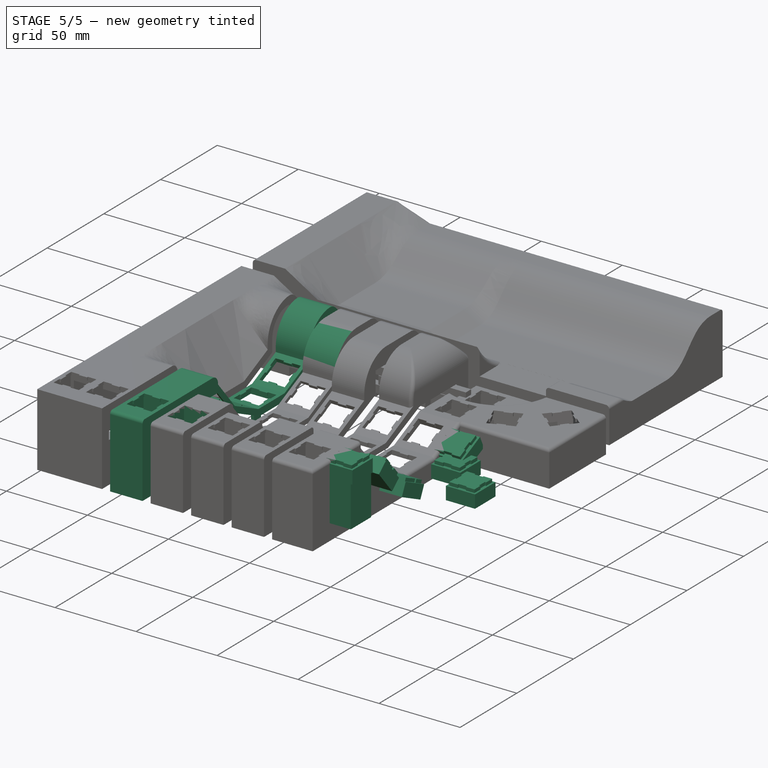
[diagram: stage 5 of 5 — iso view after this stage's code; geometry added in this stage tinted green]
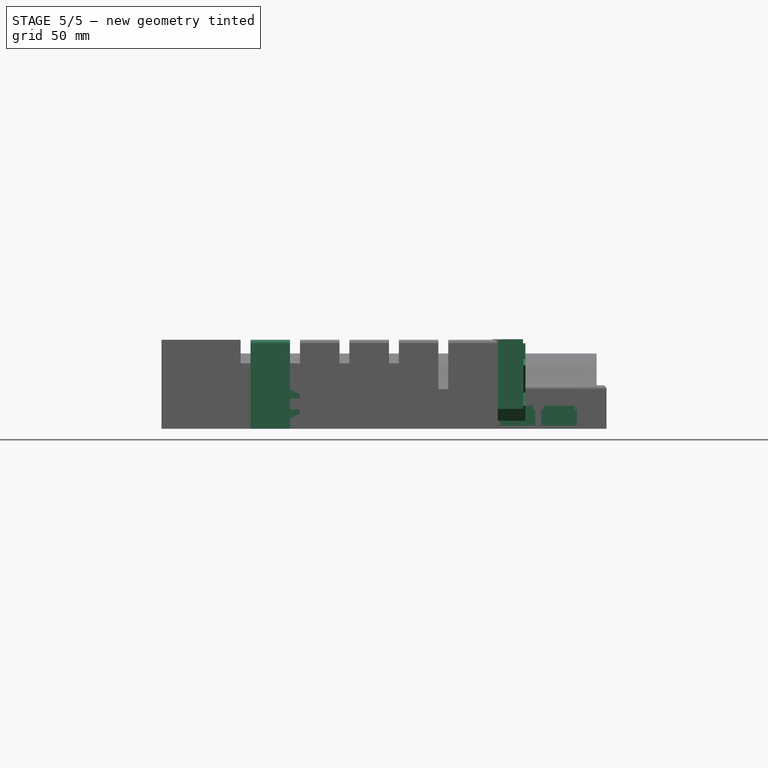
[diagram: stage 5 of 5 — front view after this stage's code; geometry added in this stage tinted green]
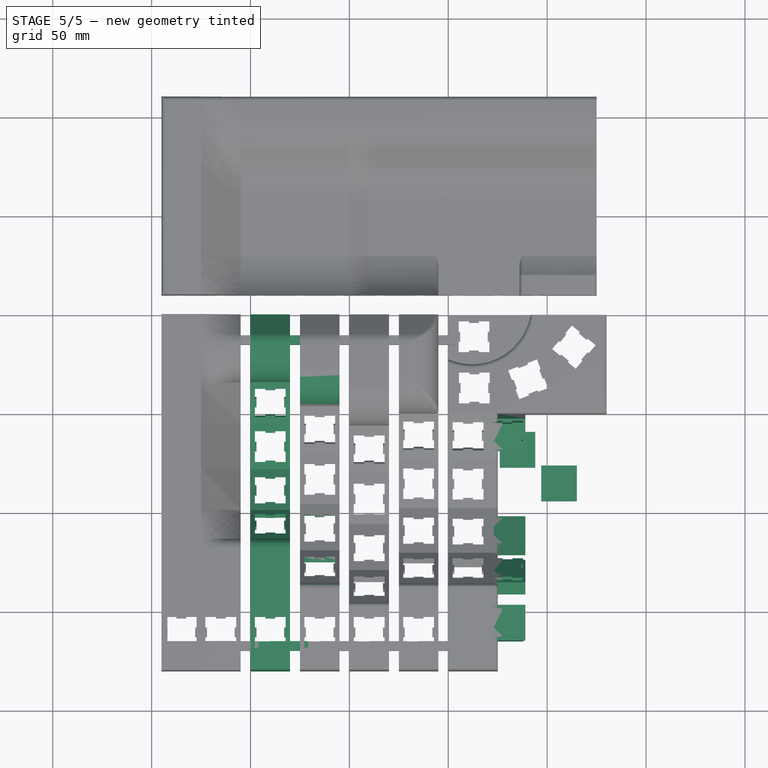
[diagram: stage 5 of 5 — top view after this stage's code; geometry added in this stage tinted green]
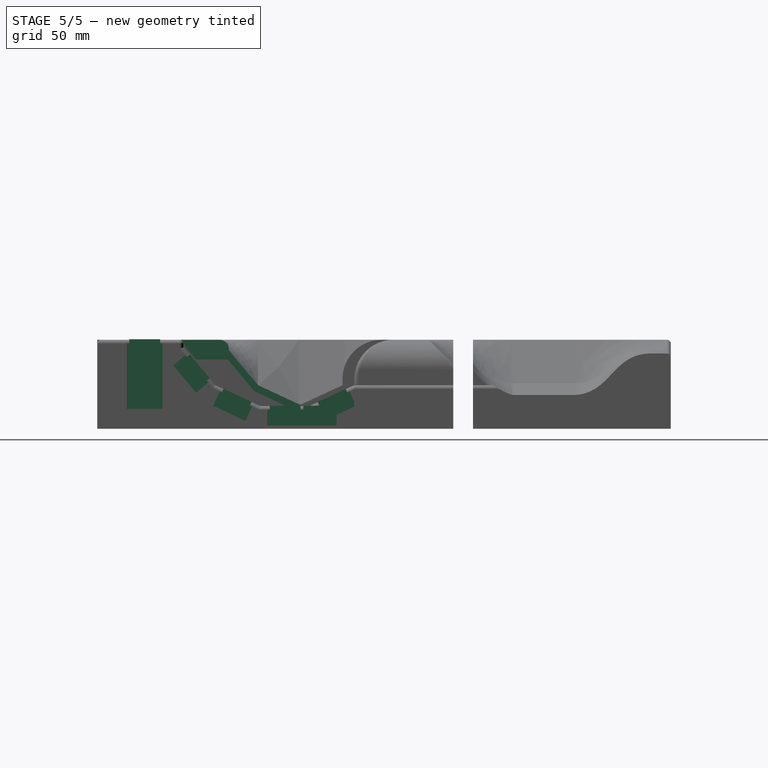
[diagram: stage 5 of 5 — right view after this stage's code; geometry added in this stage tinted green]
FEATURE [Sketcher::SketchObject] Sketch  label="Switch Cut Out"
  sketch-geometry (20):
    g0: LineSegment StartX=-0.000129595 StartY=15.5792 StartZ=0 EndX=5.28987 EndY=15.5792 EndZ=0
    g1: LineSegment StartX=5.28987 StartY=15.5792 StartZ=0 EndX=5.28987 EndY=14.7692 EndZ=0
    g2: LineSegment StartX=5.28987 StartY=14.7692 StartZ=0 EndX=10.2899 EndY=14.7692 EndZ=0
    g3: LineSegment StartX=10.2899 StartY=14.7692 StartZ=0 EndX=10.2899 EndY=15.5792 EndZ=0
    g4: LineSegment StartX=10.2899 StartY=15.5792 StartZ=0 EndX=15.5799 EndY=15.5792 EndZ=0
    g5: LineSegment StartX=15.5799 StartY=15.5792 StartZ=0 EndX=15.5799 EndY=10.2892 EndZ=0
    g6: LineSegment StartX=15.5799 StartY=10.2892 StartZ=0 EndX=14.7699 EndY=10.2892 EndZ=0
    g7: LineSegment StartX=14.7699 StartY=10.2892 StartZ=0 EndX=14.7699 EndY=5.28921 EndZ=0
    g8: LineSegment StartX=14.7699 StartY=5.28921 StartZ=0 EndX=15.5799 EndY=5.28921 EndZ=0
    g9: LineSegment StartX=15.5799 StartY=5.28921 StartZ=0 EndX=15.5799 EndY=-0.000794506 EndZ=0
    g10: LineSegment StartX=15.5799 StartY=-0.000794506 StartZ=0 EndX=10.2899 EndY=-0.000794506 EndZ=0
    g11: LineSegment StartX=10.2899 StartY=-0.000794506 StartZ=0 EndX=10.2899 EndY=0.809205 EndZ=0
    g12: LineSegment StartX=10.2899 StartY=0.809205 StartZ=0 EndX=5.28987 EndY=0.809205 EndZ=0
    g13: LineSegment StartX=5.28987 StartY=0.809205 StartZ=0 EndX=5.28987 EndY=-0.000794506 EndZ=0
    g14: LineSegment StartX=5.28987 StartY=-0.000794506 StartZ=0 EndX=-0.000129595 EndY=-0.000794506 EndZ=0
    g15: LineSegment StartX=-0.000129595 StartY=-0.000794506 StartZ=0 EndX=-0.000129595 EndY=5.28921 EndZ=0
    g16: LineSegment StartX=-0.000129595 StartY=5.28921 StartZ=0 EndX=0.80987 EndY=5.28921 EndZ=0
    g17: LineSegment StartX=0.80987 StartY=5.28921 StartZ=0 EndX=0.80987 EndY=10.2892 EndZ=0
    g18: LineSegment StartX=0.80987 StartY=10.2892 StartZ=0 EndX=-0.000129595 EndY=10.2892 EndZ=0
    g19: LineSegment StartX=-0.000129595 StartY=10.2892 StartZ=0 EndX=-0.000129595 EndY=15.5792 EndZ=0
  constraints (58):
    c: Coincident(g0,g1)
    c: Coincident(g1,g2)
    c: Coincident(g2,g3)
    c: Coincident(g3,g4)
    c: Coincident(g4,g5)
    c: Coincident(g5,g6)
    c: Coincident(g6,g7)
    c: Coincident(g7,g8)
    c: Coincident(g8,g9)
    c: Coincident(g9,g10)
    c: Coincident(g10,g11)
    c: Coincident(g11,g12)
    c: Coincident(g12,g13)
    c: Coincident(g13,g14)
    c: Coincident(g14,g15)
    c: Coincident(g15,g16)
    c: Coincident(g16,g17)
    c: Coincident(g17,g18)
    c: Coincident(g18,g19)
    c: Coincident(g19,g0)
    c: Horizontal(g0)
    c: DistanceX(g0,g0) = 5.29
    c: Vertical(g1)
    c: DistanceY(g1,g1) = 0.81
    c: Horizontal(g2)
    c: DistanceX(g2,g2) = 5
    c: Vertical(g3)
    c: DistanceY(g3,g3) = 0.81
    c: Horizontal(g4)
    c: DistanceX(g4,g4) = 5.29
    c: Vertical(g5)
    c: DistanceY(g5,g5) = 5.29
    c: Horizontal(g6)
    c: DistanceX(g6,g6) = -0.81
    c: Vertical(g7)
    c: DistanceY(g7,g7) = 5
    c: Horizontal(g8)
    c: DistanceX(g8,g8) = 0.81
    c: Vertical(g9)
    c: DistanceY(g9,g9) = 5.29
    c: Horizontal(g10)
    c: DistanceX(g10,g10) = -5.29
    c: Vertical(g11)
    c: DistanceY(g11,g11) = -0.81
    c: Horizontal(g12)
    c: DistanceX(g12,g12) = 5
    c: Vertical(g13)
    c: DistanceY(g13,g13) = 0.81
    c: Horizontal(g14)
    c: DistanceX(g14,g14) = 5.29
    c: Vertical(g15)
    c: DistanceY(g15,g15) = 5.29
    c: Horizontal(g16)
    c: DistanceX(g16,g16) = -0.81
    c: Vertical(g17)
    c: DistanceY(g17,g17) = 5
    c: Horizontal(g18)
    c: DistanceX(g18,g18) = 0.81
FEATURE [Sketcher::SketchObject] Sketch003  label="Finger Frame Ring"
  Placement = pos=(0,0,0) rot=(0.57735,0.57735,0.57735;2.0944rad)
  sketch-geometry (19):
    g0: LineSegment StartX=-180 StartY=45 StartZ=0 EndX=-135.84 EndY=45 EndZ=0
    g1: LineSegment StartX=-135.84 StartY=41.9172 StartZ=0 EndX=-119.128 EndY=22 EndZ=0
    g2: LineSegment StartX=-119.128 StartY=22 StartZ=0 EndX=-95.564 EndY=11.0119 EndZ=0
    g3: LineSegment StartX=-95.564 StartY=11.0119 StartZ=0 EndX=-69.564 EndY=11.0119 EndZ=0
    g4: LineSegment StartX=-69.564 StartY=11.0119 StartZ=0 EndX=-46 EndY=22 EndZ=0
    g5: LineSegment StartX=-46 StartY=45 StartZ=0 EndX=0 EndY=45 EndZ=0
    g6: LineSegment StartX=0 StartY=45 StartZ=0 EndX=0 EndY=0 EndZ=0
    g7: LineSegment StartX=-180 StartY=45 StartZ=0 EndX=-180 EndY=0 EndZ=0
    g8: LineSegment StartX=-46 StartY=45 StartZ=0 EndX=-46 EndY=22 EndZ=0
    g9: LineSegment StartX=-170 StartY=35 StartZ=0 EndX=-170 EndY=0 EndZ=0
    g10: LineSegment StartX=-170 StartY=35 StartZ=0 EndX=-136 EndY=35 EndZ=0
    g11: LineSegment StartX=-136 StartY=35 StartZ=0 EndX=-136 EndY=8 EndZ=0
    g12: LineSegment StartX=-136 StartY=8 StartZ=0 EndX=-36 EndY=8 EndZ=0
    g13: LineSegment StartX=-36 StartY=35 StartZ=0 EndX=-10 EndY=35 EndZ=0
    g14: LineSegment StartX=-10 StartY=35 StartZ=0 EndX=-10 EndY=0 EndZ=0
    g15: LineSegment StartX=-36 StartY=35 StartZ=0 EndX=-36 EndY=8 EndZ=0
    g16: LineSegment StartX=-180 StartY=0 StartZ=0 EndX=-170 EndY=0 EndZ=0
    g17: LineSegment StartX=-10 StartY=0 StartZ=0 EndX=0 EndY=0 EndZ=0
    g18: LineSegment StartX=-135.84 StartY=45 StartZ=0 EndX=-135.84 EndY=41.9172 EndZ=0
  constraints (56):
    c: Coincident(g1,g2)
    c: Coincident(g2,g3)
    c: Coincident(g3,g4)
    c: Horizontal(g0)
    c: Horizontal(g5)
    c: Distance(g2) = 26
    c: Distance(g3) = 26
    c: Distance(g4) = 26
    c: Coincident(g5,g6)
    c: Vertical(g6)
    c: Coincident(g7,g0)
    c: Vertical(g7)
    c: Distance(g5) = 46
    c: Distance(g6) = 45
    c: Vertical(g8)
    c: Coincident(g8,g4)
    c: Coincident(g8,g5)
    c: Distance(g8) = 23
    c: Distance(g7) = 45
    c: Angle(g8,g4) = 2.00713
    c: Angle(g4,g3) = 2.70526
    c: Angle(g3,g2) = 2.70526
    c: Angle(g2,g1) = 2.70526
    c: Vertical(g9)
    c: Distance(g9) = 35
    c: Coincident(g10,g9)
    c: Horizontal(g10)
    c: Coincident(g10,g11)
    c: Coincident(g11,g12)
    c: Coincident(g13,g14)
    c: Vertical(g14)
    c: Distance(g14) = 35
    c: Horizontal(g13)
    c: Distance(g13) = 26
    c: Distance(g10) = 34
    c: Horizontal(g12)
    c: Coincident(g15,g13)
    c: Vertical(g15)
    c: Distance(g15) = 27
    c: Coincident(g12,g15)
    c: Coincident(g17,g14)
    c: Horizontal(g17)
    c: Distance(g17) = 10
    c: Coincident(g16,g7)
    c: Coincident(g16,g9)
    c: Horizontal(g16)
    c: Distance(g16) = 10
    c: Vertical(g11)
    c: Distance(g12) = 100
    c: Distance(g1) = 26
    c: Coincident(g18,g1)
    c: Coincident(g18,g0)
    c: Coincident(g17,g6)
    c: Coincident(g6,g-1)
    c: Distance(g11) = 27
    c: Vertical(g18)
FEATURE [Sketcher::SketchObject] Sketch009  label="Finger Frame Middle"
  Placement = pos=(0,0,0) rot=(0.57735,0.57735,0.57735;2.0944rad)
  sketch-geometry (19):
    g0: LineSegment StartX=-180 StartY=45 StartZ=0 EndX=-145.84 EndY=45 EndZ=0
    g1: LineSegment StartX=-145.84 StartY=41.9172 StartZ=0 EndX=-129.128 EndY=22 EndZ=0
    g2: LineSegment StartX=-129.128 StartY=22 StartZ=0 EndX=-105.564 EndY=11.0119 EndZ=0
    g3: LineSegment StartX=-105.564 StartY=11.0119 StartZ=0 EndX=-79.564 EndY=11.0119 EndZ=0
    g4: LineSegment StartX=-79.564 StartY=11.0119 StartZ=0 EndX=-56 EndY=22 EndZ=0
    g5: LineSegment StartX=-56 StartY=45 StartZ=0 EndX=0 EndY=45 EndZ=0
    g6: LineSegment StartX=0 StartY=45 StartZ=0 EndX=0 EndY=0 EndZ=0
    g7: LineSegment StartX=-180 StartY=45 StartZ=0 EndX=-180 EndY=0 EndZ=0
    g8: LineSegment StartX=-56 StartY=45 StartZ=0 EndX=-56 EndY=22 EndZ=0
    g9: LineSegment StartX=0 StartY=0 StartZ=0 EndX=-10 EndY=0 EndZ=0
    g10: LineSegment StartX=-10 StartY=0 StartZ=0 EndX=-10 EndY=35 EndZ=0
    g11: LineSegment StartX=-10 StartY=35 StartZ=0 EndX=-46 EndY=35 EndZ=0
    g12: LineSegment StartX=-46 StartY=35 StartZ=0 EndX=-46 EndY=8 EndZ=0
    g13: LineSegment StartX=-46 StartY=8 StartZ=0 EndX=-146 EndY=8 EndZ=0
    g14: LineSegment StartX=-146 StartY=8 StartZ=0 EndX=-146 EndY=35 EndZ=0
    g15: LineSegment StartX=-146 StartY=35 StartZ=0 EndX=-170 EndY=35 EndZ=0
    g16: LineSegment StartX=-170 StartY=35 StartZ=0 EndX=-170 EndY=0 EndZ=0
    g17: LineSegment StartX=-180 StartY=0 StartZ=0 EndX=-170 EndY=0 EndZ=0
    g18: LineSegment StartX=-145.84 StartY=45 StartZ=0 EndX=-145.84 EndY=41.9172 EndZ=0
  constraints (56):
    c: Coincident(g1,g2)
    c: Coincident(g2,g3)
    c: Coincident(g3,g4)
    c: Horizontal(g0)
    c: Horizontal(g5)
    c: Distance(g2) = 26
    c: Distance(g3) = 26
    c: Distance(g4) = 26
    c: Coincident(g5,g6)
    c: Vertical(g6)
    c: Coincident(g7,g0)
    c: Vertical(g7)
    c: Distance(g5) = 56
    c: Distance(g6) = 45
    c: Vertical(g8)
    c: Coincident(g8,g4)
    c: Coincident(g8,g5)
    c: Distance(g8) = 23
    c: Distance(g7) = 45
    c: Angle(g8,g4) = 2.00713
    c: Angle(g4,g3) = 2.70526
    c: Angle(g3,g2) = 2.70526
    c: Angle(g2,g1) = 2.70526
    c: Coincident(g7,g17)
    c: Coincident(g17,g16)
    c: Coincident(g16,g15)
    c: Coincident(g15,g14)
    c: Coincident(g14,g13)
    c: Coincident(g13,g12)
    c: Coincident(g12,g11)
    c: Coincident(g11,g10)
    c: Coincident(g10,g9)
    c: Horizontal(g17)
    c: DistanceX(g17,g17) = 10
    c: Vertical(g16)
    c: Distance(g16) = 35
    c: Horizontal(g15)
    c: Distance(g15) = 24
    c: Vertical(g14)
    c: Distance(g14) = 27
    c: Horizontal(g13)
    c: Horizontal(g9)
    c: Distance(g9) = 10
    c: Vertical(g10)
    c: Distance(g10) = 35
    c: Horizontal(g11)
    c: Distance(g11) = 36
    c: Vertical(g12)
    c: Distance(g12) = 27
    c: Distance(g13) = 100
    c: Coincident(g9,g6)
    c: Coincident(g6,g-1)
    c: Distance(g1) = 26
    c: Coincident(g18,g1)
    c: Coincident(g18,g0)
    c: Vertical(g18)
FEATURE [Sketcher::SketchObject] Sketch010  label="Finger Frame Index"
  Placement = pos=(0,0,0) rot=(0.57735,0.57735,0.57735;2.0944rad)
  sketch-geometry (19):
    g0: LineSegment StartX=-180 StartY=45 StartZ=0 EndX=-136.385 EndY=45 EndZ=0
    g1: LineSegment StartX=-136.385 StartY=41.1511 StartZ=0 EndX=-120.315 EndY=22 EndZ=0
    g2: LineSegment StartX=-120.315 StartY=22 StartZ=0 EndX=-97.6577 EndY=11.4345 EndZ=0
    g3: LineSegment StartX=-97.6577 StartY=11.4345 StartZ=0 EndX=-72.6577 EndY=11.4345 EndZ=0
    g4: LineSegment StartX=-72.6577 StartY=11.4345 StartZ=0 EndX=-50 EndY=22 EndZ=0
    g5: LineSegment StartX=-50 StartY=45 StartZ=0 EndX=0 EndY=45 EndZ=0
    g6: LineSegment StartX=0 StartY=45 StartZ=0 EndX=0 EndY=0 EndZ=0
    g7: LineSegment StartX=-180 StartY=45 StartZ=0 EndX=-180 EndY=0 EndZ=0
    g8: LineSegment StartX=-50 StartY=45 StartZ=0 EndX=-50 EndY=22 EndZ=0
    g9: LineSegment StartX=-180 StartY=0 StartZ=0 EndX=-170 EndY=0 EndZ=0
    g10: LineSegment StartX=-170 StartY=0 StartZ=0 EndX=-170 EndY=35 EndZ=0
    g11: LineSegment StartX=-170 StartY=35 StartZ=0 EndX=-140 EndY=35 EndZ=0
    g12: LineSegment StartX=-140 StartY=35 StartZ=0 EndX=-140 EndY=8 EndZ=0
    g13: LineSegment StartX=-140 StartY=8 StartZ=0 EndX=-40 EndY=8 EndZ=0
    g14: LineSegment StartX=-40 StartY=8 StartZ=0 EndX=-40 EndY=35 EndZ=0
    g15: LineSegment StartX=-40 StartY=35 StartZ=0 EndX=-10 EndY=35 EndZ=0
    g16: LineSegment StartX=-10 StartY=35 StartZ=0 EndX=-10 EndY=0 EndZ=0
    g17: LineSegment StartX=-10 StartY=0 StartZ=0 EndX=0 EndY=0 EndZ=0
    g18: LineSegment StartX=-136.385 StartY=45 StartZ=0 EndX=-136.385 EndY=41.1511 EndZ=0
  constraints (56):
    c: Coincident(g1,g2)
    c: Coincident(g2,g3)
    c: Coincident(g3,g4)
    c: Horizontal(g0)
    c: Horizontal(g5)
    c: Distance(g2) = 25
    c: Distance(g3) = 25
    c: Distance(g4) = 25
    c: Coincident(g5,g6)
    c: Vertical(g6)
    c: Coincident(g7,g0)
    c: Vertical(g7)
    c: Distance(g5) = 50
    c: Distance(g6) = 45
    c: Vertical(g8)
    c: Coincident(g8,g4)
    c: Coincident(g8,g5)
    c: Distance(g8) = 23
    c: Distance(g7) = 45
    c: Angle(g8,g4) = 2.00713
    c: Angle(g4,g3) = 2.70526
    c: Angle(g3,g2) = 2.70526
    c: Angle(g2,g1) = 2.70526
    c: Coincident(g9,g7)
    c: Coincident(g9,g10)
    c: Coincident(g10,g11)
    c: Coincident(g11,g12)
    c: Coincident(g12,g13)
    c: Coincident(g14,g13)
    c: Coincident(g14,g15)
    c: Coincident(g15,g16)
    c: Coincident(g16,g17)
    c: Horizontal(g9)
    c: Distance(g9) = 10
    c: Vertical(g10)
    c: Distance(g10) = 35
    c: Horizontal(g11)
    c: Distance(g11) = 30
    c: Vertical(g12)
    c: Distance(g12) = 27
    c: Horizontal(g13)
    c: Horizontal(g17)
    c: Distance(g17) = 10
    c: Vertical(g16)
    c: Distance(g16) = 35
    c: Horizontal(g15)
    c: Distance(g15) = 30
    c: Vertical(g14)
    c: Distance(g14) = 27
    c: Distance(g13) = 100
    c: Coincident(g6,g17)
    c: Coincident(g6,g-1)
    c: Distance(g1) = 25
    c: Coincident(g18,g0)
    c: Coincident(g18,g1)
    c: Vertical(g18)
FEATURE [Sketcher::SketchObject] Sketch011  label="Finger Frame Baby"
  Placement = pos=(0,0,0) rot=(0.57735,0.57735,0.57735;2.0944rad)
  sketch-geometry (19):
    g0: LineSegment StartX=-180 StartY=45 StartZ=0 EndX=-113.474 EndY=45 EndZ=0
    g1: LineSegment StartX=-113.474 StartY=39.619 StartZ=0 EndX=-98.6902 EndY=22 EndZ=0
    g2: LineSegment StartX=-98.6902 StartY=22 StartZ=0 EndX=-77.8451 EndY=12.2798 EndZ=0
    g3: LineSegment StartX=-77.8451 StartY=12.2798 StartZ=0 EndX=-54.8451 EndY=12.2798 EndZ=0
    g4: LineSegment StartX=-54.8451 StartY=12.2798 StartZ=0 EndX=-34 EndY=22 EndZ=0
    g5: LineSegment StartX=-34 StartY=45 StartZ=0 EndX=0 EndY=45 EndZ=0
    g6: LineSegment StartX=0 StartY=45 StartZ=0 EndX=0 EndY=0 EndZ=0
    g7: LineSegment StartX=-180 StartY=45 StartZ=0 EndX=-180 EndY=0 EndZ=0
    g8: LineSegment StartX=-34 StartY=45 StartZ=0 EndX=-34 EndY=22 EndZ=0
    g9: LineSegment StartX=-10 StartY=35 StartZ=0 EndX=-10 EndY=0 EndZ=0
    g10: LineSegment StartX=-10 StartY=35 StartZ=0 EndX=-24 EndY=35 EndZ=0
    g11: LineSegment StartX=-170 StartY=35 StartZ=0 EndX=-114 EndY=35 EndZ=0
    g12: LineSegment StartX=-114 StartY=8 StartZ=0 EndX=-24 EndY=8 EndZ=0
    g13: LineSegment StartX=-24 StartY=35 StartZ=0 EndX=-24 EndY=8 EndZ=0
    g14: LineSegment StartX=-170 StartY=0 StartZ=0 EndX=-170 EndY=35 EndZ=0
    g15: LineSegment StartX=-180 StartY=0 StartZ=0 EndX=-170 EndY=0 EndZ=0
    g16: LineSegment StartX=-10 StartY=0 StartZ=0 EndX=0 EndY=0 EndZ=0
    g17: LineSegment StartX=-114 StartY=35 StartZ=0 EndX=-114 EndY=8 EndZ=0
    g18: LineSegment StartX=-113.474 StartY=45 StartZ=0 EndX=-113.474 EndY=39.619 EndZ=0
  constraints (56):
    c: Coincident(g1,g2)
    c: Coincident(g2,g3)
    c: Coincident(g3,g4)
    c: Horizontal(g0)
    c: Horizontal(g5)
    c: Distance(g2) = 23
    c: Distance(g3) = 23
    c: Distance(g4) = 23
    c: Coincident(g5,g6)
    c: Vertical(g6)
    c: Coincident(g7,g0)
    c: Vertical(g7)
    c: Distance(g5) = 34
    c: Distance(g6) = 45
    c: Vertical(g8)
    c: Coincident(g8,g4)
    c: Coincident(g8,g5)
    c: Distance(g8) = 23
    c: Distance(g7) = 45
    c: Angle(g8,g4) = 2.00713
    c: Angle(g4,g3) = 2.70526
    c: Angle(g3,g2) = 2.70526
    c: Angle(g2,g1) = 2.70526
    c: Horizontal(g11)
    c: Vertical(g9)
    c: Distance(g9) = 35
    c: Coincident(g10,g9)
    c: Horizontal(g10)
    c: Distance(g11) = 56
    c: Distance(g10) = 14
    c: Horizontal(g12)
    c: Coincident(g13,g10)
    c: Vertical(g13)
    c: Distance(g13) = 27
    c: Coincident(g14,g11)
    c: Vertical(g14)
    c: Distance(g14) = 35
    c: Coincident(g-1,g6)
    c: Coincident(g15,g7)
    c: Coincident(g15,g14)
    c: Horizontal(g15)
    c: Distance(g15) = 10
    c: Coincident(g16,g-1)
    c: Coincident(g16,g9)
    c: Distance(g16) = 10
    c: Horizontal(g16)
    c: Coincident(g12,g17)
    c: Coincident(g17,g11)
    c: Vertical(g17)
    c: Coincident(g12,g13)
    c: Distance(g17) = 27
    c: Distance(g12) = 90
    c: Distance(g1) = 23
    c: Coincident(g18,g1)
    c: Coincident(g18,g0)
    c: Vertical(g18)
FEATURE [Part::Extrusion] Extrude001
  Base = -> Sketch011
  Dir = (1,0,0)
  DirMode = 2
  FaceMakerClass = Part::FaceMakerBullseye
  LengthFwd = 20
  LengthRev = 0
  Solid = true
  Symmetric = false
FEATURE [Part::Box] Box016  label="Cube"
  AttacherType = Attacher::AttachEngine3D
  Height = 20
  Length = 22
  Placement = pos=(-1,-61.5,-17) rot=(1,0,0;0.418879rad)
  Width = 50
FEATURE [Part::Box] Box020  label="Cube004"
  AttacherType = Attacher::AttachEngine3D
  Height = 20
  Length = 22
  Placement = pos=(-1,-118,5) rot=(-1,0,0;0.436332rad)
  Width = 40
FEATURE [Part::MultiFuse] Fusion008
  Placement = pos=(1,-48.5,4.5) rot=(1,0,0;0.436332rad)
  Shapes = -> [Extrude,Box024]
FEATURE [Part::MultiFuse] Fusion012
  Placement = pos=(1,-75.5,2.4) rot=(1,0,0;0rad)
  Shapes = -> [Extrude,Box024]
FEATURE [Part::MultiFuse] Fusion016
  Placement = pos=(1,-100.6,12) rot=(-1,0,0;0.436332rad)
  Shapes = -> [Extrude,Box024]
FEATURE [Part::MultiFuse] Fusion017
  Placement = pos=(26,-120,11.4) rot=(-1,0,0;0.436332rad)
  Shapes = -> [Extrude,Box024]
FEATURE [Part::MultiFuse] Fusion020
  Placement = pos=(1,-119.2,31) rot=(-1,0,0;0.872665rad)
  Shapes = -> [Extrude,Box024]
FEATURE [Part::MultiFuse] Fusion021
  Placement = pos=(26,-140.8,32.4) rot=(-1,0,0;0.872665rad)
  Shapes = -> [Extrude,Box024]
FEATURE [Part::MultiFuse] Fusion024
  Placement = pos=(1,-170,35.2) rot=(-1,0,0;0rad)
  Shapes = -> [Extrude,Box024]
FEATURE [Part::MultiFuse] Fusion025
  Placement = pos=(26,-170,35.2) rot=(-1,0,0;0rad)
  Shapes = -> [Extrude,Box024]
FEATURE [Part::Box] Box026  label="Cube010"
  AttacherType = Attacher::AttachEngine3D
  Height = 20
  Length = 18
  Placement = pos=(26,-170,20) rot=(0,0,1;0rad)
  Width = 18
FEATURE [Part::Box] Box028  label="Cube012"
  AttacherType = Attacher::AttachEngine3D
  Height = 20
  Length = 18
  Placement = pos=(1,-170,20) rot=(0,0,1;0rad)
  Width = 18
FEATURE [Part::Box] Box034  label="Cube018"
  AttacherType = Attacher::AttachEngine3D
  Height = 11
  Length = 2
  Placement = pos=(0,-81.6,0) rot=(0,0,1;0rad)
  Width = 6
FEATURE [Part::Box] Box035  label="Cube019"
  AttacherType = Attacher::AttachEngine3D
  Height = 10.6
  Length = 2
  Placement = pos=(25,-101,0) rot=(0,0,1;0rad)
  Width = 9
FEATURE [Part::Box] Box038  label="Cube022"
  AttacherType = Attacher::AttachEngine3D
  Height = 5
  Length = 20
  Placement = pos=(0,-171,10) rot=(0,0,1;0rad)
  Width = 6
FEATURE [Part::Box] Box042  label="Cube026"
  AttacherType = Attacher::AttachEngine3D
  Height = 5
  Length = 20
  Placement = pos=(0,-15,10) rot=(0,0,1;0rad)
  Width = 6
FEATURE [Part::Box] Box046  label="Cube030"
  AttacherType = Attacher::AttachEngine3D
  Height = 4.7
  Length = 19
  Placement = pos=(10,-15,5) rot=(0,0,1;0rad)
  Width = 10
FEATURE [Part::Box] Box047  label="Cube031"
  AttacherType = Attacher::AttachEngine3D
  Height = 7
  Length = 10
  Placement = pos=(20,-10.3,4) rot=(0,0,1;0rad)
  Width = 6
FEATURE [Part::Cut] Cut100
  Base = -> Box046
  Tool = -> Box047
FEATURE [Part::Box] Box048  label="Cube032"
  AttacherType = Attacher::AttachEngine3D
  Height = 4.7
  Length = 19
  Placement = pos=(10,-15,5) rot=(0,0,1;0rad)
  Width = 10
FEATURE [Part::Box] Box049  label="Cube033"
  AttacherType = Attacher::AttachEngine3D
  Height = 7
  Length = 10
  Placement = pos=(20,-10.3,4) rot=(0,0,1;0rad)
  Width = 6
FEATURE [Part::Cut] Cut101
  Base = -> Box048
  Placement = pos=(0,0,10.3) rot=(0,0,1;0rad)
  Tool = -> Box049
FEATURE [Part::Box] Box062  label="Cube046"
  AttacherType = Attacher::AttachEngine3D
  Height = 4.7
  Length = 19
  Placement = pos=(10,-15,5) rot=(0,0,1;0rad)
  Width = 10
FEATURE [Part::Box] Box063  label="Cube047"
  AttacherType = Attacher::AttachEngine3D
  Height = 7
  Length = 10
  Placement = pos=(20,-15.7,4) rot=(0,0,1;0rad)
  Width = 6
FEATURE [Part::Cut] Cut140
  Base = -> Box062
  Placement = pos=(0,-160,0) rot=(0,0,1;0rad)
  Tool = -> Box063
FEATURE [Part::Box] Box064  label="Cube048"
  AttacherType = Attacher::AttachEngine3D
  Height = 4.7
  Length = 19
  Placement = pos=(10,-15,5) rot=(0,0,1;0rad)
  Width = 10
FEATURE [Part::Box] Box065  label="Cube049"
  AttacherType = Attacher::AttachEngine3D
  Height = 7
  Length = 10
  Placement = pos=(20,-15.7,4) rot=(0,0,1;0rad)
  Width = 6
FEATURE [Part::Cut] Cut141
  Base = -> Box064
  Placement = pos=(0,-160,10.3) rot=(0,0,1;0rad)
  Tool = -> Box065
FEATURE [Part::Box] Box108  label="Cube093"
  AttacherType = Attacher::AttachEngine3D
  Height = 20
  Length = 22
  Placement = pos=(-1,-129.4,22.2) rot=(-1,0,0;0.872665rad)
  Width = 40
FEATURE [Part::Box] Box109  label="Cube094"
  AttacherType = Attacher::AttachEngine3D
  Height = 11
  Length = 2
  Placement = pos=(18,-81.6,0) rot=(0,0,1;0rad)
  Width = 6
FEATURE [Part::Box] Box111  label="Cube096"
  AttacherType = Attacher::AttachEngine3D
  Height = 10.6
  Length = 2
  Placement = pos=(43,-101,0) rot=(0,0,1;0rad)
  Width = 9
FEATURE [Part::Box] Box120  label="Cube105"
  AttacherType = Attacher::AttachEngine3D
  Height = 4
  Length = 4.6
  Placement = pos=(-17.3,-7.6,0) rot=(0,0,1;0rad)
  Width = 10
FEATURE [Part::Box] Box121  label="Cube106"
  AttacherType = Attacher::AttachEngine3D
  Height = 11
  Length = 4.6
  Placement = pos=(-17.3,-7.6,0) rot=(0,0,1;0rad)
  Width = 4.6
FEATURE [Part::MultiFuse] Fusion198
  Placement = pos=(25,0,0) rot=(0,0,1;0rad)
  Shapes = -> [Box121,Box120]
FEATURE [Part::Box] Box122  label="Cube107"
  AttacherType = Attacher::AttachEngine3D
  Height = 4
  Length = 4.6
  Placement = pos=(-17.3,-7.6,0) rot=(0,0,1;0rad)
  Width = 10
FEATURE [Part::Box] Box123  label="Cube108"
  AttacherType = Attacher::AttachEngine3D
  Height = 11
  Length = 4.6
  Placement = pos=(-17.3,-7.6,0) rot=(0,0,1;0rad)
  Width = 4.6
FEATURE [Part::MultiFuse] Fusion199
  Placement = pos=(50,0,0) rot=(0,0,1;0rad)
  Shapes = -> [Box123,Box122]
FEATURE [Part::Box] Box156  label="Cube141"
  AttacherType = Attacher::AttachEngine3D
  Height = 8
  Length = 18
  Width = 18
FEATURE [Sketcher::SketchObject] Sketch028  label="Switch Cut Out005"
  sketch-geometry (20):
    g0: LineSegment StartX=-0.000129595 StartY=15.5792 StartZ=0 EndX=5.28987 EndY=15.5792 EndZ=0
    g1: LineSegment StartX=5.28987 StartY=15.5792 StartZ=0 EndX=5.28987 EndY=14.7692 EndZ=0
    g2: LineSegment StartX=5.28987 StartY=14.7692 StartZ=0 EndX=10.2899 EndY=14.7692 EndZ=0
    g3: LineSegment StartX=10.2899 StartY=14.7692 StartZ=0 EndX=10.2899 EndY=15.5792 EndZ=0
    g4: LineSegment StartX=10.2899 StartY=15.5792 StartZ=0 EndX=15.5799 EndY=15.5792 EndZ=0
    g5: LineSegment StartX=15.5799 StartY=15.5792 StartZ=0 EndX=15.5799 EndY=10.2892 EndZ=0
    g6: LineSegment StartX=15.5799 StartY=10.2892 StartZ=0 EndX=14.7699 EndY=10.2892 EndZ=0
    g7: LineSegment StartX=14.7699 StartY=10.2892 StartZ=0 EndX=14.7699 EndY=5.28921 EndZ=0
    g8: LineSegment StartX=14.7699 StartY=5.28921 StartZ=0 EndX=15.5799 EndY=5.28921 EndZ=0
    g9: LineSegment StartX=15.5799 StartY=5.28921 StartZ=0 EndX=15.5799 EndY=-0.000794506 EndZ=0
    g10: LineSegment StartX=15.5799 StartY=-0.000794506 StartZ=0 EndX=10.2899 EndY=-0.000794506 EndZ=0
    g11: LineSegment StartX=10.2899 StartY=-0.000794506 StartZ=0 EndX=10.2899 EndY=0.809205 EndZ=0
    g12: LineSegment StartX=10.2899 StartY=0.809205 StartZ=0 EndX=5.28987 EndY=0.809205 EndZ=0
    g13: LineSegment StartX=5.28987 StartY=0.809205 StartZ=0 EndX=5.28987 EndY=-0.000794506 EndZ=0
    g14: LineSegment StartX=5.28987 StartY=-0.000794506 StartZ=0 EndX=-0.000129595 EndY=-0.000794506 EndZ=0
    g15: LineSegment StartX=-0.000129595 StartY=-0.000794506 StartZ=0 EndX=-0.000129595 EndY=5.28921 EndZ=0
    g16: LineSegment StartX=-0.000129595 StartY=5.28921 StartZ=0 EndX=0.80987 EndY=5.28921 EndZ=0
    g17: LineSegment StartX=0.80987 StartY=5.28921 StartZ=0 EndX=0.80987 EndY=10.2892 EndZ=0
    g18: LineSegment StartX=0.80987 StartY=10.2892 StartZ=0 EndX=-0.000129595 EndY=10.2892 EndZ=0
    g19: LineSegment StartX=-0.000129595 StartY=10.2892 StartZ=0 EndX=-0.000129595 EndY=15.5792 EndZ=0
  constraints (58):
    c: Coincident(g0,g1)
    c: Coincident(g1,g2)
    c: Coincident(g2,g3)
    c: Coincident(g3,g4)
    c: Coincident(g4,g5)
    c: Coincident(g5,g6)
    c: Coincident(g6,g7)
    c: Coincident(g7,g8)
    c: Coincident(g8,g9)
    c: Coincident(g9,g10)
    c: Coincident(g10,g11)
    c: Coincident(g11,g12)
    c: Coincident(g12,g13)
    c: Coincident(g13,g14)
    c: Coincident(g14,g15)
    c: Coincident(g15,g16)
    c: Coincident(g16,g17)
    c: Coincident(g17,g18)
    c: Coincident(g18,g19)
    c: Coincident(g19,g0)
    c: Horizontal(g0)
    c: DistanceX(g0,g0) = 5.29
    c: Vertical(g1)
    c: DistanceY(g1,g1) = 0.81
    c: Horizontal(g2)
    c: DistanceX(g2,g2) = 5
    c: Vertical(g3)
    c: DistanceY(g3,g3) = 0.81
    c: Horizontal(g4)
    c: DistanceX(g4,g4) = 5.29
    c: Vertical(g5)
    c: DistanceY(g5,g5) = 5.29
    c: Horizontal(g6)
    c: DistanceX(g6,g6) = -0.81
    c: Vertical(g7)
    c: DistanceY(g7,g7) = 5
    c: Horizontal(g8)
    c: DistanceX(g8,g8) = 0.81
    c: Vertical(g9)
    c: DistanceY(g9,g9) = 5.29
    c: Horizontal(g10)
    c: DistanceX(g10,g10) = -5.29
    c: Vertical(g11)
    c: DistanceY(g11,g11) = -0.81
    c: Horizontal(g12)
    c: DistanceX(g12,g12) = 5
    c: Vertical(g13)
    c: DistanceY(g13,g13) = 0.81
    c: Horizontal(g14)
    c: DistanceX(g14,g14) = 5.29
    c: Vertical(g15)
    c: DistanceY(g15,g15) = 5.29
    c: Horizontal(g16)
    c: DistanceX(g16,g16) = -0.81
    c: Vertical(g17)
    c: DistanceY(g17,g17) = 5
    c: Horizontal(g18)
    c: DistanceX(g18,g18) = 0.81
FEATURE [Part::Extrusion] Extrude010
  Base = -> Sketch028
  Dir = (0,0,1)
  DirMode = 2
  FaceMakerClass = Part::FaceMakerBullseye
  LengthFwd = 10
  LengthRev = 0
  Placement = pos=(1.21,1.21,0) rot=(0,0,1;0rad)
  Solid = true
  Symmetric = false
FEATURE [Part::MultiFuse] Fusion230
  Placement = pos=(126,-77,1.6) rot=(1,0,0;0rad)
  Shapes = -> [Extrude010,Box156]
FEATURE [Part::Box] Box158  label="Cube143"
  AttacherType = Attacher::AttachEngine3D
  Height = 8
  Length = 18
  Width = 18
FEATURE [Sketcher::SketchObject] Sketch029  label="Switch Cut Out006"
  sketch-geometry (20):
    g0: LineSegment StartX=-0.000129595 StartY=15.5792 StartZ=0 EndX=5.28987 EndY=15.5792 EndZ=0
    g1: LineSegment StartX=5.28987 StartY=15.5792 StartZ=0 EndX=5.28987 EndY=14.7692 EndZ=0
    g2: LineSegment StartX=5.28987 StartY=14.7692 StartZ=0 EndX=10.2899 EndY=14.7692 EndZ=0
    g3: LineSegment StartX=10.2899 StartY=14.7692 StartZ=0 EndX=10.2899 EndY=15.5792 EndZ=0
    g4: LineSegment StartX=10.2899 StartY=15.5792 StartZ=0 EndX=15.5799 EndY=15.5792 EndZ=0
    g5: LineSegment StartX=15.5799 StartY=15.5792 StartZ=0 EndX=15.5799 EndY=10.2892 EndZ=0
    g6: LineSegment StartX=15.5799 StartY=10.2892 StartZ=0 EndX=14.7699 EndY=10.2892 EndZ=0
    g7: LineSegment StartX=14.7699 StartY=10.2892 StartZ=0 EndX=14.7699 EndY=5.28921 EndZ=0
    g8: LineSegment StartX=14.7699 StartY=5.28921 StartZ=0 EndX=15.5799 EndY=5.28921 EndZ=0
    g9: LineSegment StartX=15.5799 StartY=5.28921 StartZ=0 EndX=15.5799 EndY=-0.000794506 EndZ=0
    g10: LineSegment StartX=15.5799 StartY=-0.000794506 StartZ=0 EndX=10.2899 EndY=-0.000794506 EndZ=0
    g11: LineSegment StartX=10.2899 StartY=-0.000794506 StartZ=0 EndX=10.2899 EndY=0.809205 EndZ=0
    g12: LineSegment StartX=10.2899 StartY=0.809205 StartZ=0 EndX=5.28987 EndY=0.809205 EndZ=0
    g13: LineSegment StartX=5.28987 StartY=0.809205 StartZ=0 EndX=5.28987 EndY=-0.000794506 EndZ=0
    g14: LineSegment StartX=5.28987 StartY=-0.000794506 StartZ=0 EndX=-0.000129595 EndY=-0.000794506 EndZ=0
    g15: LineSegment StartX=-0.000129595 StartY=-0.000794506 StartZ=0 EndX=-0.000129595 EndY=5.28921 EndZ=0
    g16: LineSegment StartX=-0.000129595 StartY=5.28921 StartZ=0 EndX=0.80987 EndY=5.28921 EndZ=0
    g17: LineSegment StartX=0.80987 StartY=5.28921 StartZ=0 EndX=0.80987 EndY=10.2892 EndZ=0
    g18: LineSegment StartX=0.80987 StartY=10.2892 StartZ=0 EndX=-0.000129595 EndY=10.2892 EndZ=0
    g19: LineSegment StartX=-0.000129595 StartY=10.2892 StartZ=0 EndX=-0.000129595 EndY=15.5792 EndZ=0
  constraints (58):
    c: Coincident(g0,g1)
    c: Coincident(g1,g2)
    c: Coincident(g2,g3)
    c: Coincident(g3,g4)
    c: Coincident(g4,g5)
    c: Coincident(g5,g6)
    c: Coincident(g6,g7)
    c: Coincident(g7,g8)
    c: Coincident(g8,g9)
    c: Coincident(g9,g10)
    c: Coincident(g10,g11)
    c: Coincident(g11,g12)
    c: Coincident(g12,g13)
    c: Coincident(g13,g14)
    c: Coincident(g14,g15)
    c: Coincident(g15,g16)
    c: Coincident(g16,g17)
    c: Coincident(g17,g18)
    c: Coincident(g18,g19)
    c: Coincident(g19,g0)
    c: Horizontal(g0)
    c: DistanceX(g0,g0) = 5.29
    c: Vertical(g1)
    c: DistanceY(g1,g1) = 0.81
    c: Horizontal(g2)
    c: DistanceX(g2,g2) = 5
    c: Vertical(g3)
    c: DistanceY(g3,g3) = 0.81
    c: Horizontal(g4)
    c: DistanceX(g4,g4) = 5.29
    c: Vertical(g5)
    c: DistanceY(g5,g5) = 5.29
    c: Horizontal(g6)
    c: DistanceX(g6,g6) = -0.81
    c: Vertical(g7)
    c: DistanceY(g7,g7) = 5
    c: Horizontal(g8)
    c: DistanceX(g8,g8) = 0.81
    c: Vertical(g9)
    c: DistanceY(g9,g9) = 5.29
    c: Horizontal(g10)
    c: DistanceX(g10,g10) = -5.29
    c: Vertical(g11)
    c: DistanceY(g11,g11) = -0.81
    c: Horizontal(g12)
    c: DistanceX(g12,g12) = 5
    c: Vertical(g13)
    c: DistanceY(g13,g13) = 0.81
    c: Horizontal(g14)
    c: DistanceX(g14,g14) = 5.29
    c: Vertical(g15)
    c: DistanceY(g15,g15) = 5.29
    c: Horizontal(g16)
    c: DistanceX(g16,g16) = -0.81
    c: Vertical(g17)
    c: DistanceY(g17,g17) = 5
    c: Horizontal(g18)
    c: DistanceX(g18,g18) = 0.81
FEATURE [Part::Extrusion] Extrude011
  Base = -> Sketch029
  Dir = (0,0,1)
  DirMode = 2
  FaceMakerClass = Part::FaceMakerBullseye
  LengthFwd = 10
  LengthRev = 0
  Placement = pos=(1.21,1.21,0) rot=(0,0,1;0rad)
  Solid = true
  Symmetric = false
FEATURE [Part::MultiFuse] Fusion234
  Placement = pos=(147,-94,1.6) rot=(1,0,0;0rad)
  Shapes = -> [Extrude011,Box158]
FEATURE [Part::MultiFuse] Fusion239
  Placement = pos=(121,-65.4,4) rot=(1,0,0;0.436332rad)
  Shapes = -> [Extrude006,Box091]
FEATURE [Part::MultiFuse] Fusion241
  Placement = pos=(121,-121.4,11.6) rot=(-1,0,0;0.436332rad)
  Shapes = -> [Extrude006,Box091]
FEATURE [Part::MultiFuse] Fusion242
  Placement = pos=(121,-141.6,32) rot=(-1,0,0;0.872665rad)
  Shapes = -> [Extrude006,Box091]
FEATURE [Part::MultiFuse] Fusion243
  Placement = pos=(121,-165,35.2) rot=(-1,0,0;0rad)
  Shapes = -> [Extrude006,Box091]
FEATURE [Part::Box] Box170  label="Cube155"
  AttacherType = Attacher::AttachEngine3D
  Height = 30
  Length = 17
  Placement = pos=(121,-165,10) rot=(0,0,1;0rad)
  Width = 18
FEATURE [Part::Cut] Cut399
  Base = -> Cut398
  Tool = -> Fusion013
FEATURE [Part::Cut] Cut400
  Base = -> Cut399
  Tool = -> Fusion017
FEATURE [Part::Cut] Cut401
  Base = -> Cut400
  Tool = -> Fusion021
FEATURE [Part::Cut] Cut402
  Base = -> Cut401
  Tool = -> Fusion025
FEATURE [Part::Cut] Cut403
  Base = -> Cut402
  Tool = -> Box026
FEATURE [Part::MultiFuse] Fusion336
  Shapes = -> [Cut403,Box035]
FEATURE [Part::MultiFuse] Fusion337
  Shapes = -> [Fusion336,Box111]
FEATURE [Part::Cut] Cut404
  Base = -> Fusion337
  Tool = -> Fusion199
FEATURE [Part::Fillet] Fillet071
  Base = -> Cut404
  Edges = 1 edges r=2: [Edge288]
FEATURE [Part::Fillet] Fillet072
  Base = -> Fillet071
  Edges = 1 edges r=3: [Edge36]
FEATURE [Part::Fillet] Fillet073
  Base = -> Fillet072
  Edges = 1 edges r=20: [Edge164]
FEATURE [Part::MultiFuse] Fusion
  Shapes = -> [Extrude001,Box042]
FEATURE [Part::MultiFuse] Fusion338
  Shapes = -> [Fusion,Cut100]
FEATURE [Part::MultiFuse] Fusion339
  Shapes = -> [Fusion338,Cut101]
FEATURE [Part::MultiFuse] Fusion340
  Shapes = -> [Fusion339,Box038]
FEATURE [Part::MultiFuse] Fusion341
  Shapes = -> [Fusion340,Cut140]
FEATURE [Part::MultiFuse] Fusion342
  Shapes = -> [Fusion341,Cut141]
FEATURE [Part::Cut] Cut
  Base = -> Fusion342
  Tool = -> Box016
FEATURE [Part::Cut] Cut405
  Base = -> Cut
  Tool = -> Box020
FEATURE [Part::Cut] Cut406
  Base = -> Cut405
  Tool = -> Box108
FEATURE [Part::Cut] Cut407
  Base = -> Cut406
  Tool = -> Fusion008
FEATURE [Part::Cut] Cut408
  Base = -> Cut407
  Tool = -> Fusion012
FEATURE [Part::Cut] Cut409
  Base = -> Cut408
  Tool = -> Fusion016
FEATURE [Part::Cut] Cut410
  Base = -> Cut409
  Tool = -> Fusion020
FEATURE [Part::Cut] Cut411
  Base = -> Cut410
  Tool = -> Fusion024
FEATURE [Part::Cut] Cut412
  Base = -> Cut411
  Tool = -> Box028
FEATURE [Part::MultiFuse] Fusion343
  Shapes = -> [Cut412,Box109]
FEATURE [Part::MultiFuse] Fusion344
  Shapes = -> [Fusion343,Box034]
FEATURE [Part::Cut] Cut413
  Base = -> Fusion344
  Tool = -> Fusion198
FEATURE [Part::Fillet] Fillet074
  Base = -> Cut413
  Edges = 1 edges r=2: [Edge148]
FEATURE [Part::Fillet] Fillet075
  Base = -> Fillet074
  Edges = 1 edges r=5: [Edge39]
FEATURE [Part::Fillet] Fillet076
  Base = -> Fillet075
  Edges = 1 edges r=20: [Edge167]
FEATURE [Part::Extrusion] Extrude012
  Base = -> Sketch032
  Dir = (1,0,0)
  DirMode = 2
  FaceMakerClass = Part::FaceMakerBullseye
  LengthFwd = 20
  LengthRev = 0
  Placement = pos=(5,0,0) rot=(0,0,1;0rad)
  Solid = true
  Symmetric = false
FEATURE [Part::Cut] Cut428
  Base = -> Fillet076
  Tool = -> Extrude012
FEATURE [App::DocumentObjectGroup] Group002  label="01 Baby Finger"
  Group = -> [Cut428]
FEATURE [Part::Cut] Cut429
  Base = -> Fillet073
  Tool = -> Extrude013
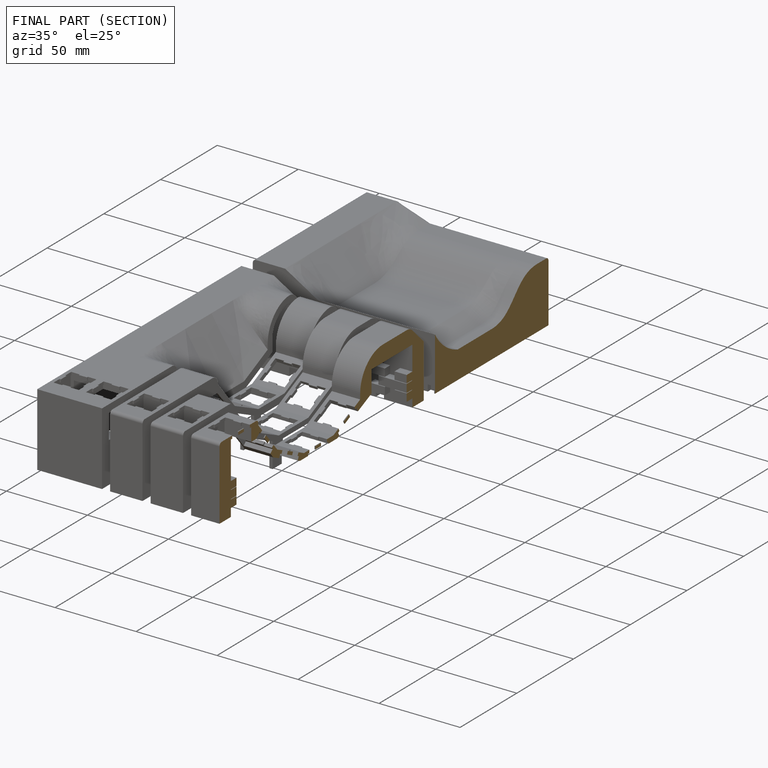
[diagram: finished part — half-section view (interior)]
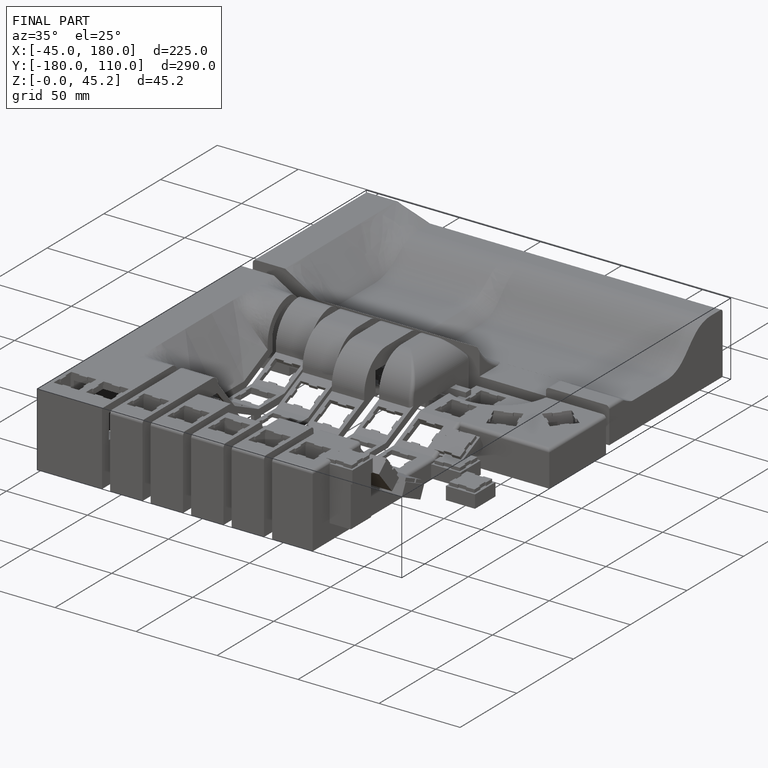
[diagram: finished part — iso view with bounding-box wireframe]
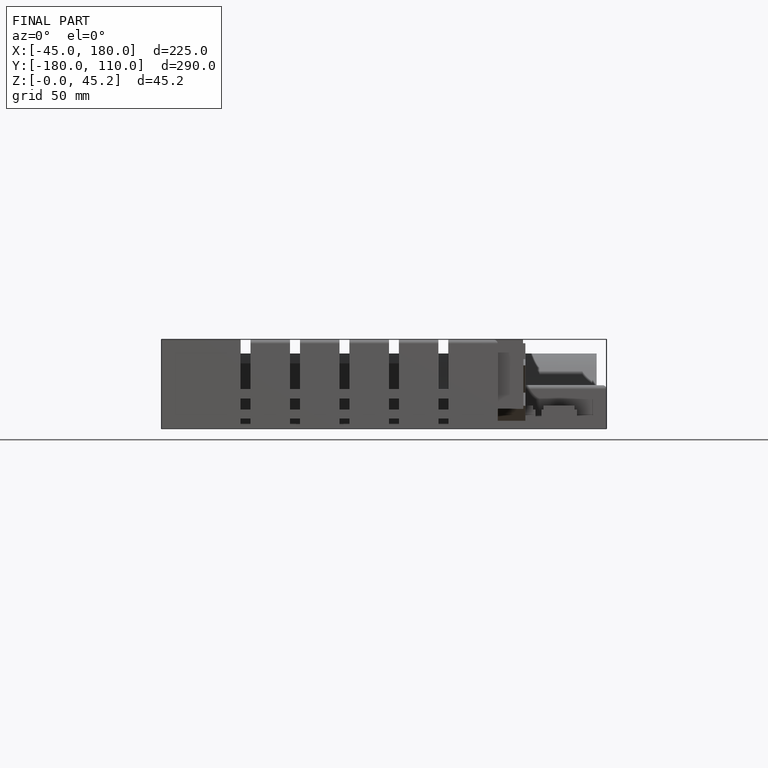
[diagram: finished part — front view with bounding-box wireframe]
